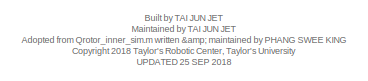
[diagram: root canvas - part 1/4, top center region]
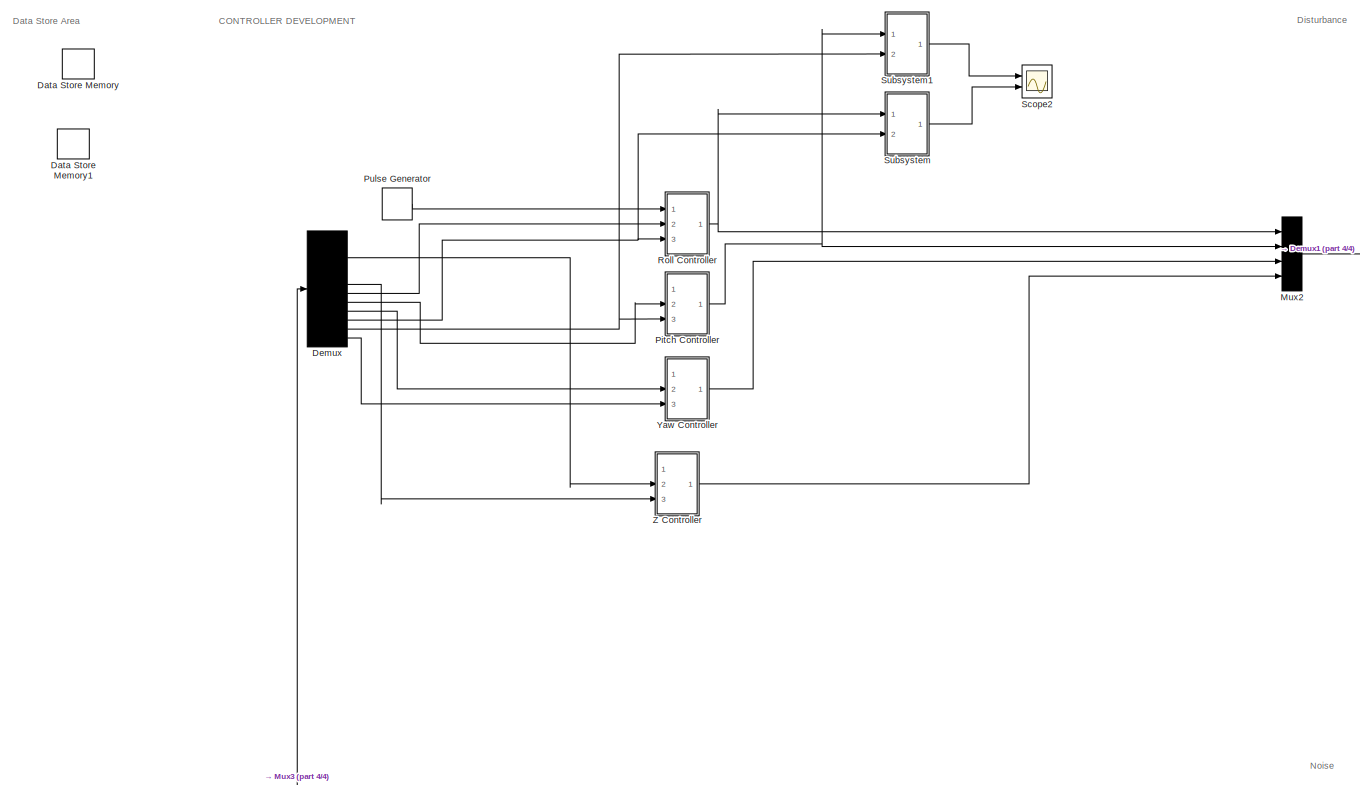
[diagram: root canvas - part 2/4, middle left region]
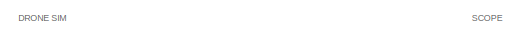
[diagram: root canvas - part 3/4, top right region]
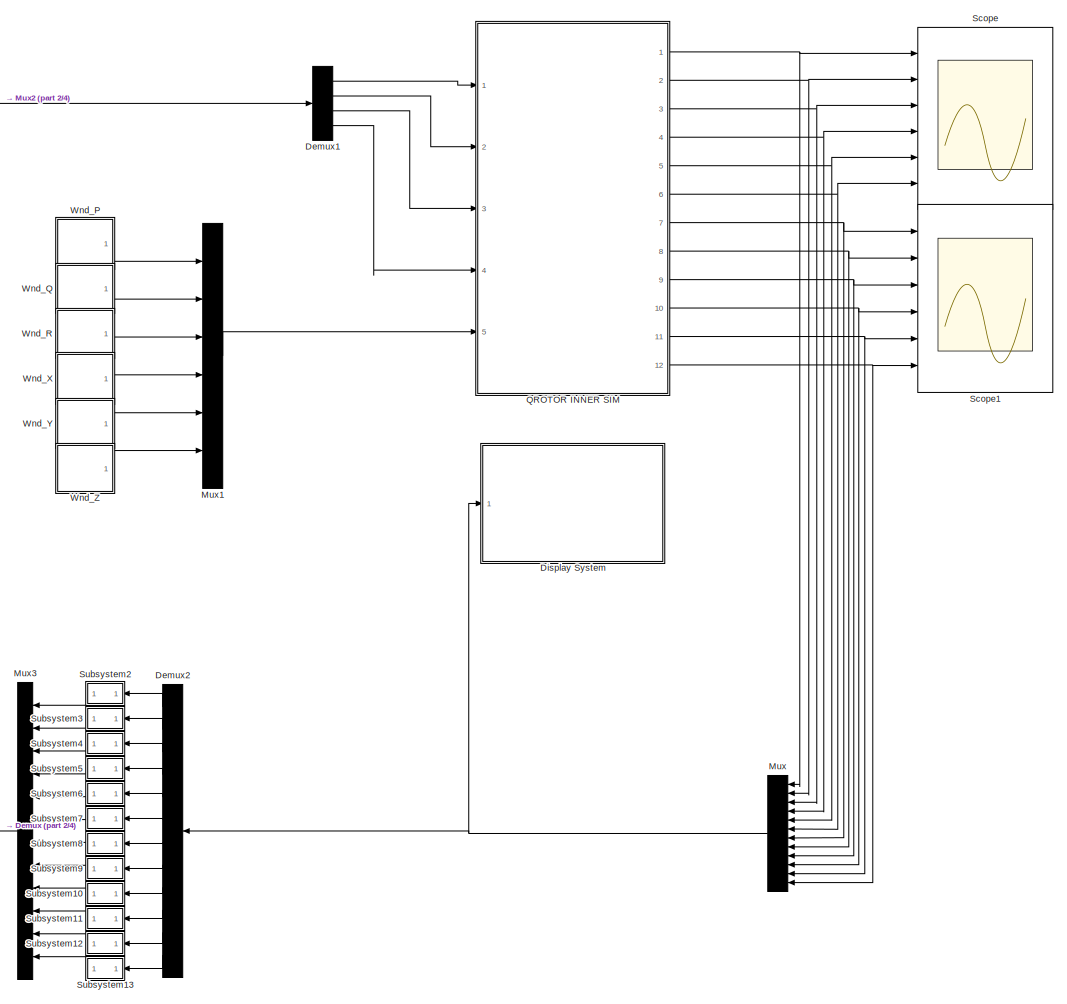
[diagram: root canvas - part 4/4, right side, full height]
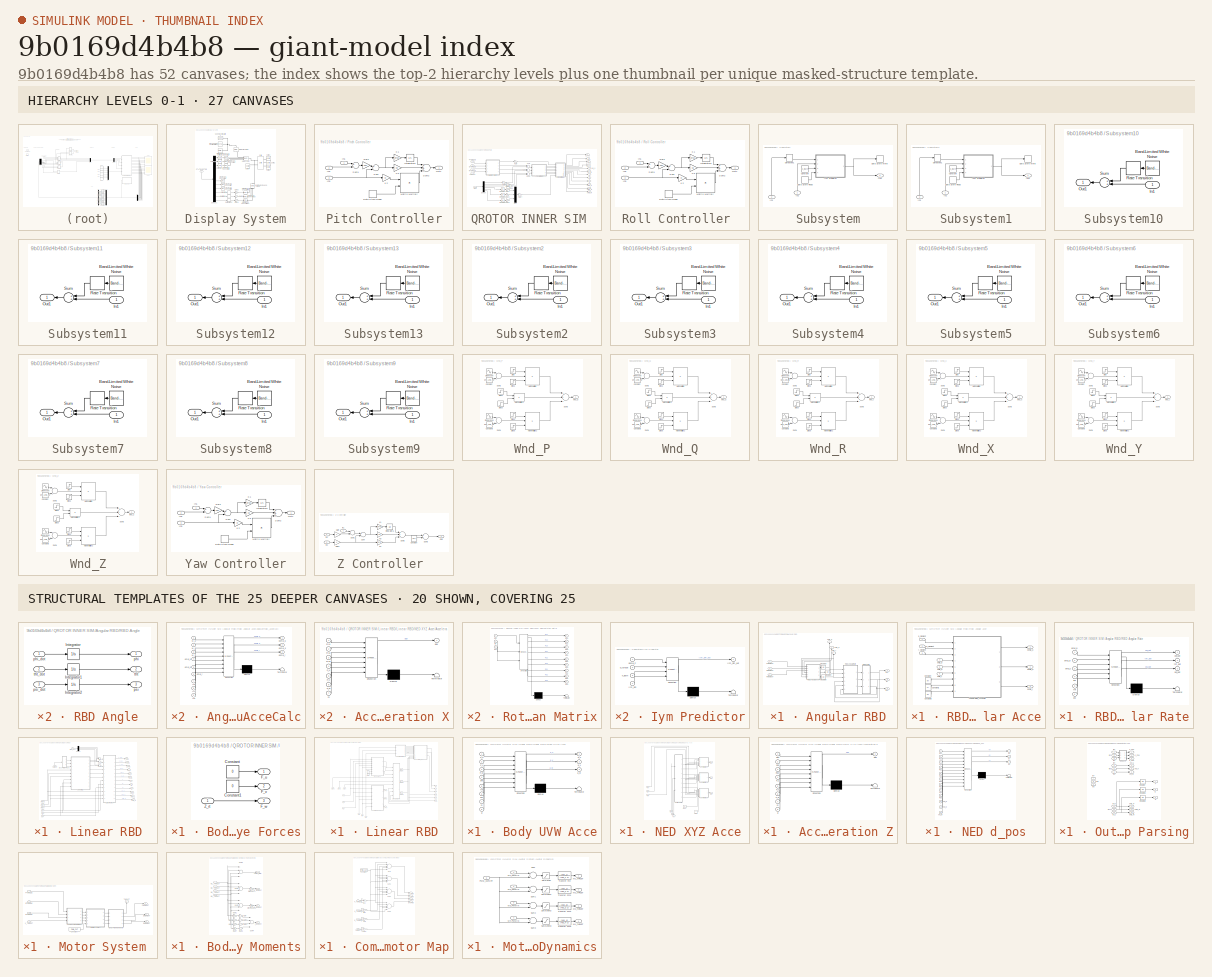
[diagram: thumbnail index - top-2 hierarchy levels (27 canvases) + 20 structural-template representatives of the remaining 25 canvases]
MODEL slx_9b0169d4b4b8
KIND model
CONFIG AbsTol = auto
CONFIG FixedStep = 0.001
CONFIG MaxStep = auto
CONFIG MinStep = auto
CONFIG RelTol = 1e-3
CONFIG SampleTimeConstraint = Unconstrained
CONFIG Solver = ode4
CONFIG SolverMode = Auto
CONFIG SolverName = ode4
CONFIG StartTime = 0.0
CONFIG StopTime = T
BLOCK [DataStoreMemory] Data Store Memory
  DataStoreName = Ixm
  InitialValue = Ixm
  OutDataTypeStr = double
  ReadBeforeWriteMsg = warning
  ShowAdditionalParam = off
  SignalType = real
  WriteAfterReadMsg = warning
  WriteAfterWriteMsg = warning
BLOCK [DataStoreMemory] Data Store Memory1
  DataStoreName = Iym
  InitialValue = Iym
  OutDataTypeStr = double
  ReadBeforeWriteMsg = warning
  ShowAdditionalParam = off
  SignalType = real
  WriteAfterReadMsg = warning
  WriteAfterWriteMsg = warning
BLOCK [Demux] Demux
  Outputs = 12
  Ports = [1, 12]
BLOCK [Demux] Demux1
  DisplayOption = bar
  Ports = [1, 4]
BLOCK [Demux] Demux2
  DisplayOption = bar
  Outputs = 12
  Ports = [1, 12]
BLOCK [SubSystem] Display System
  Ports = [1]
  RequestExecContextInheritance = off
  Variant = off
BLOCK [Reference] Display System/6-DOF Joint  REF=sm_lib/Joints/6-DOF Joint
  Ports = [0, 0, 0, 0, 0, 4, 1]
  SourceBlock = sm_lib/Joints/6-DOF Joint
  SourceType = 6-DOF Joint
BLOCK [Demux] Display System/Demux1
  Outputs = 12
  Ports = [1, 12]
BLOCK [Derivative] Display System/Derivative
BLOCK [Derivative] Display System/Derivative1
BLOCK [Derivative] Display System/Derivative2
BLOCK [Reference] Display System/External Force and Torque  REF=sm_lib/Forces and
Torques/External Force
and Torque
  Ports = [0, 0, 0, 0, 0, 3, 1]
  SourceBlock = sm_lib/Forces and\nTorques/External Force\nand Torque
  SourceType = External Force\nand Torque
BLOCK [Gain] Display System/Gain2
  Gain = Ixx
  OutDataTypeStr = Inherit: Inherit via internal rule
  ParamDataTypeStr = Inherit: Inherit via internal rule
  SaturateOnIntegerOverflow = off
BLOCK [Gain] Display System/Gain3
  Gain = Iyy
  OutDataTypeStr = Inherit: Inherit via internal rule
  ParamDataTypeStr = Inherit: Inherit via internal rule
  SaturateOnIntegerOverflow = off
BLOCK [Gain] Display System/Gain4
  Gain = Izz
  OutDataTypeStr = Inherit: Inherit via internal rule
  ParamDataTypeStr = Inherit: Inherit via internal rule
  SaturateOnIntegerOverflow = off
BLOCK [Reference] Display System/Mechanism Configuration  REF=sm_lib/Utilities/Mechanism
Configuration
  Ports = [0, 0, 0, 0, 0, 0, 1]
  SourceBlock = sm_lib/Utilities/Mechanism\nConfiguration
  SourceType = Mechanism\nConfiguration
BLOCK [Reference] Display System/Rigid Transform1  REF=sm_lib/Frames and
Transforms/Rigid
Transform
  Ports = [0, 0, 0, 0, 0, 1, 1]
  SourceBlock = sm_lib/Frames and\nTransforms/Rigid\nTransform
  SourceType = Rigid\nTransform
BLOCK [Inport] Display System/STATE VECTOR
  IconDisplay = Port number
BLOCK [Reference] Display System/Simulink-PS Converter  REF=nesl_utility/Simulink-PS
Converter
  Commented = on
  Ports = [1, 0, 0, 0, 0, 0, 1]
  SourceBlock = nesl_utility/Simulink-PS\nConverter
  SourceType = Simulink-PS\nConverter
BLOCK [Reference] Display System/Simulink-PS Converter1  REF=nesl_utility/Simulink-PS
Converter
  Commented = on
  Ports = [1, 0, 0, 0, 0, 0, 1]
  SourceBlock = nesl_utility/Simulink-PS\nConverter
  SourceType = Simulink-PS\nConverter
BLOCK [Reference] Display System/Simulink-PS Converter10  REF=nesl_utility/Simulink-PS
Converter
  Ports = [1, 0, 0, 0, 0, 0, 1]
  SourceBlock = nesl_utility/Simulink-PS\nConverter
  SourceType = Simulink-PS\nConverter
BLOCK [Reference] Display System/Simulink-PS Converter11  REF=nesl_utility/Simulink-PS
Converter
  Ports = [1, 0, 0, 0, 0, 0, 1]
  SourceBlock = nesl_utility/Simulink-PS\nConverter
  SourceType = Simulink-PS\nConverter
BLOCK [Reference] Display System/Simulink-PS Converter2  REF=nesl_utility/Simulink-PS
Converter
  Commented = on
  Ports = [1, 0, 0, 0, 0, 0, 1]
  SourceBlock = nesl_utility/Simulink-PS\nConverter
  SourceType = Simulink-PS\nConverter
BLOCK [Reference] Display System/Simulink-PS Converter6  REF=nesl_utility/Simulink-PS
Converter
  Ports = [1, 0, 0, 0, 0, 0, 1]
  SourceBlock = nesl_utility/Simulink-PS\nConverter
  SourceType = Simulink-PS\nConverter
BLOCK [Reference] Display System/Simulink-PS Converter7  REF=nesl_utility/Simulink-PS
Converter
  Ports = [1, 0, 0, 0, 0, 0, 1]
  SourceBlock = nesl_utility/Simulink-PS\nConverter
  SourceType = Simulink-PS\nConverter
BLOCK [Reference] Display System/Simulink-PS Converter8  REF=nesl_utility/Simulink-PS
Converter
  Ports = [1, 0, 0, 0, 0, 0, 1]
  SourceBlock = nesl_utility/Simulink-PS\nConverter
  SourceType = Simulink-PS\nConverter
BLOCK [Reference] Display System/Simulink-PS Converter9  REF=nesl_utility/Simulink-PS
Converter
  Ports = [1, 0, 0, 0, 0, 0, 1]
  SourceBlock = nesl_utility/Simulink-PS\nConverter
  SourceType = Simulink-PS\nConverter
BLOCK [Reference] Display System/Solid  REF=sm_lib/Body Elements/Solid
  Ports = [0, 0, 0, 0, 0, 3, 2]
  SourceBlock = sm_lib/Body Elements/Solid
  SourceType = Solid
BLOCK [Reference] Display System/Solid1  REF=sm_lib/Body Elements/Solid
  Ports = [0, 0, 0, 0, 0, 0, 1]
  SourceBlock = sm_lib/Body Elements/Solid
  SourceType = Solid
BLOCK [Reference] Display System/Solid2  REF=sm_lib/Body Elements/Solid
  Ports = [0, 0, 0, 0, 0, 0, 1]
  SourceBlock = sm_lib/Body Elements/Solid
  SourceType = Solid
BLOCK [Reference] Display System/Solid3  REF=sm_lib/Body Elements/Solid
  Ports = [0, 0, 0, 0, 0, 0, 1]
  SourceBlock = sm_lib/Body Elements/Solid
  SourceType = Solid
BLOCK [Reference] Display System/Solid4  REF=sm_lib/Body Elements/Solid
  Ports = [0, 0, 0, 0, 0, 0, 1]
  SourceBlock = sm_lib/Body Elements/Solid
  SourceType = Solid
BLOCK [Reference] Display System/Solver Configuration  REF=nesl_utility/Solver
Configuration
  Ports = [0, 0, 0, 0, 0, 0, 1]
  SourceBlock = nesl_utility/Solver\nConfiguration
  SourceType = Solver\nConfiguration
BLOCK [UnitDelay] Display System/Unit Delay
  InputProcessing = Elements as channels (sample based)
  SampleTime = -1
BLOCK [UnitDelay] Display System/Unit Delay1
  InputProcessing = Elements as channels (sample based)
  SampleTime = -1
BLOCK [UnitDelay] Display System/Unit Delay2
  InputProcessing = Elements as channels (sample based)
  SampleTime = -1
BLOCK [Reference] Display System/World Frame  REF=sm_lib/Frames and
Transforms/World Frame
  Ports = [0, 0, 0, 0, 0, 0, 1]
  SourceBlock = sm_lib/Frames and\nTransforms/World Frame
  SourceType = World Frame
BLOCK [Mux] Mux
  Inputs = 12
  Ports = [12, 1]
BLOCK [Mux] Mux1
  DisplayOption = bar
  Inputs = 6
  Ports = [6, 1]
BLOCK [Mux] Mux2
  DisplayOption = bar
  Ports = [4, 1]
BLOCK [Mux] Mux3
  DisplayOption = bar
  Inputs = 12
  Ports = [12, 1]
BLOCK [SubSystem] Pitch Controller
  Ports = [3, 1]
  RequestExecContextInheritance = off
  Variant = off
BLOCK [DataStoreRead] Pitch Controller/Data Store Read
  DataStoreName = Ixm
  Ports = [0, 1]
BLOCK [Gain] Pitch Controller/Gain
  Gain = KpP
  OutDataTypeStr = Inherit: Inherit via internal rule
  ParamDataTypeStr = Inherit: Inherit via internal rule
  SaturateOnIntegerOverflow = off
BLOCK [Inport] Pitch Controller/In1
  IconDisplay = Port number
BLOCK [Inport] Pitch Controller/In2
  IconDisplay = Port number
  Port = 2
BLOCK [Inport] Pitch Controller/In3
  IconDisplay = Port number
  Port = 3
BLOCK [Integrator] Pitch Controller/Integrator6
  Ports = [1, 1]
BLOCK [Gain] Pitch Controller/K1
  Gain = Ki*Kp
  OutDataTypeStr = Inherit: Inherit via internal rule
  ParamDataTypeStr = Inherit: Inherit via internal rule
  SaturateOnIntegerOverflow = off
BLOCK [Gain] Pitch Controller/K2
  Gain = Ki
  OutDataTypeStr = Inherit: Inherit via internal rule
  ParamDataTypeStr = Inherit: Inherit via internal rule
  SaturateOnIntegerOverflow = off
BLOCK [Gain] Pitch Controller/Kp
  Gain = Kp
  OutDataTypeStr = Inherit: Inherit via internal rule
  ParamDataTypeStr = Inherit: Inherit via internal rule
  SaturateOnIntegerOverflow = off
BLOCK [Product] Pitch Controller/Matrix Multiply
  InputSameDT = off
  Multiplication = Matrix(*)
  OutDataTypeStr = Inherit: Inherit via internal rule
  Ports = [2, 1]
  RndMeth = Floor
  SaturateOnIntegerOverflow = off
BLOCK [Outport] Pitch Controller/Out1
  IconDisplay = Port number
BLOCK [Sum] Pitch Controller/Sum
  InputSameDT = off
  Inputs = +-
  OutDataTypeStr = Inherit: Inherit via internal rule
  Ports = [2, 1]
  SaturateOnIntegerOverflow = off
BLOCK [Sum] Pitch Controller/Sum1
  InputSameDT = off
  Inputs = +-
  OutDataTypeStr = Inherit: Inherit via internal rule
  Ports = [2, 1]
  SaturateOnIntegerOverflow = off
BLOCK [Sum] Pitch Controller/Sum2
  InputSameDT = off
  Inputs = ++-
  OutDataTypeStr = Inherit: Inherit via internal rule
  Ports = [3, 1]
  SaturateOnIntegerOverflow = off
BLOCK [DiscretePulseGenerator] Pulse Generator
  Period = 11
  Ports = [0, 1]
  PulseType = Time based
  PulseWidth = 50
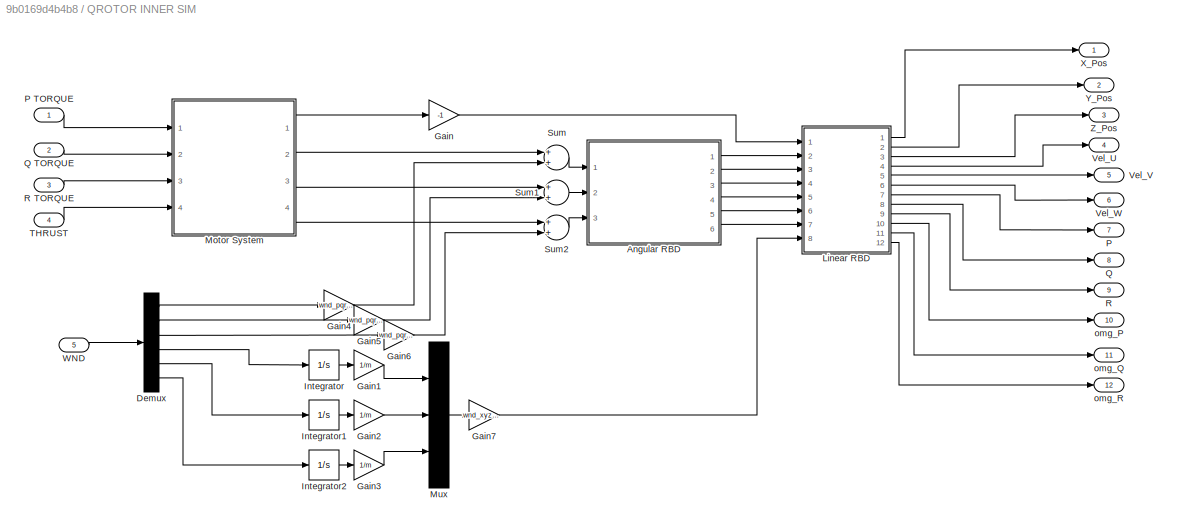
BLOCK [SubSystem] QROTOR INNER SIM 
  Ports = [5, 12]
  RequestExecContextInheritance = off
  Variant = off
BLOCK [SubSystem] QROTOR INNER SIM /Angular RBD
  Ports = [3, 6]
  RequestExecContextInheritance = off
  Variant = off
BLOCK [Integrator] QROTOR INNER SIM /Angular RBD/Integrator3
  Ports = [1, 1]
BLOCK [Integrator] QROTOR INNER SIM /Angular RBD/Integrator4
  Ports = [1, 1]
BLOCK [Integrator] QROTOR INNER SIM /Angular RBD/Integrator5
  Ports = [1, 1]
BLOCK [Inport] QROTOR INNER SIM /Angular RBD/P MOMENT
  IconDisplay = Port number
BLOCK [Inport] QROTOR INNER SIM /Angular RBD/Q MOMENT
  IconDisplay = Port number
  Port = 2
BLOCK [Inport] QROTOR INNER SIM /Angular RBD/R MOMENT
  IconDisplay = Port number
  Port = 3
BLOCK [SubSystem] QROTOR INNER SIM /Angular RBD/RBD Angle
  Ports = [3, 3]
  RequestExecContextInheritance = off
  Variant = off
BLOCK [Integrator] QROTOR INNER SIM /Angular RBD/RBD Angle/Integrator
  Ports = [1, 1]
BLOCK [Integrator] QROTOR INNER SIM /Angular RBD/RBD Angle/Integrator1
  Ports = [1, 1]
BLOCK [Integrator] QROTOR INNER SIM /Angular RBD/RBD Angle/Integrator2
  Ports = [1, 1]
BLOCK [Outport] QROTOR INNER SIM /Angular RBD/RBD Angle/phi
  IconDisplay = Port number
BLOCK [Inport] QROTOR INNER SIM /Angular RBD/RBD Angle/phi_dot
  IconDisplay = Port number
BLOCK [Outport] QROTOR INNER SIM /Angular RBD/RBD Angle/psi
  IconDisplay = Port number
  Port = 3
BLOCK [Inport] QROTOR INNER SIM /Angular RBD/RBD Angle/psi_dot
  IconDisplay = Port number
  Port = 3
BLOCK [Outport] QROTOR INNER SIM /Angular RBD/RBD Angle/tht
  IconDisplay = Port number
  Port = 2
BLOCK [Inport] QROTOR INNER SIM /Angular RBD/RBD Angle/tht_dot
  IconDisplay = Port number
  Port = 2
BLOCK [SubSystem] QROTOR INNER SIM /Angular RBD/RBD Angular Acce
  Ports = [6, 3]
  RequestExecContextInheritance = off
  Variant = off
BLOCK [SubSystem] QROTOR INNER SIM /Angular RBD/RBD Angular Acce/AngularRBD_AcceCalc
  ErrorFcn = Stateflow.Translate.translate
  PermitHierarchicalResolution = ExplicitOnly
  Ports = [9, 3]
  RequestExecContextInheritance = off
  SFBlockType = MATLAB Function
  TreatAsAtomicUnit = on
  Variant = off
BLOCK [Demux] QROTOR INNER SIM /Angular RBD/RBD Angular Acce/AngularRBD_AcceCalc/ Demux 
  Outputs = 1
  Ports = [1, 1]
BLOCK [S-Function] QROTOR INNER SIM /Angular RBD/RBD Angular Acce/AngularRBD_AcceCalc/ SFunction 
  EnableBusSupport = on
  FunctionName = sf_sfun
  PortCounts = [9 4]
  Ports = [9, 4]
  SFunctionDeploymentMode = off
  Tag = Stateflow S-Function Copy_of_Qrotor_sim2 10
BLOCK [Terminator] QROTOR INNER SIM /Angular RBD/RBD Angular Acce/AngularRBD_AcceCalc/ Terminator 
BLOCK [Inport] QROTOR INNER SIM /Angular RBD/RBD Angular Acce/AngularRBD_AcceCalc/Ixx
  IconDisplay = Port number
  Port = 7
BLOCK [Inport] QROTOR INNER SIM /Angular RBD/RBD Angular Acce/AngularRBD_AcceCalc/Iyy
  IconDisplay = Port number
  Port = 8
BLOCK [Inport] QROTOR INNER SIM /Angular RBD/RBD Angular Acce/AngularRBD_AcceCalc/Izz
  IconDisplay = Port number
  Port = 9
BLOCK [Inport] QROTOR INNER SIM /Angular RBD/RBD Angular Acce/AngularRBD_AcceCalc/M_p
  IconDisplay = Port number
BLOCK [Inport] QROTOR INNER SIM /Angular RBD/RBD Angular Acce/AngularRBD_AcceCalc/M_q
  IconDisplay = Port number
  Port = 2
BLOCK [Inport] QROTOR INNER SIM /Angular RBD/RBD Angular Acce/AngularRBD_AcceCalc/M_r
  IconDisplay = Port number
  Port = 3
BLOCK [Outport] QROTOR INNER SIM /Angular RBD/RBD Angular Acce/AngularRBD_AcceCalc/domg_p
  IconDisplay = Port number
BLOCK [Outport] QROTOR INNER SIM /Angular RBD/RBD Angular Acce/AngularRBD_AcceCalc/domg_q
  IconDisplay = Port number
  Port = 2
BLOCK [Outport] QROTOR INNER SIM /Angular RBD/RBD Angular Acce/AngularRBD_AcceCalc/domg_r
  IconDisplay = Port number
  Port = 3
BLOCK [Inport] QROTOR INNER SIM /Angular RBD/RBD Angular Acce/AngularRBD_AcceCalc/omg_p
  IconDisplay = Port number
  Port = 4
BLOCK [Inport] QROTOR INNER SIM /Angular RBD/RBD Angular Acce/AngularRBD_AcceCalc/omg_q
  IconDisplay = Port number
  Port = 5
BLOCK [Inport] QROTOR INNER SIM /Angular RBD/RBD Angular Acce/AngularRBD_AcceCalc/omg_r
  IconDisplay = Port number
  Port = 6
BLOCK [Constant] QROTOR INNER SIM /Angular RBD/RBD Angular Acce/Constant
  Value = Ixx
BLOCK [Constant] QROTOR INNER SIM /Angular RBD/RBD Angular Acce/Constant1
  Value = Iyy
BLOCK [Constant] QROTOR INNER SIM /Angular RBD/RBD Angular Acce/Constant2
  Value = Izz
BLOCK [Outport] QROTOR INNER SIM /Angular RBD/RBD Angular Acce/domg_p
  IconDisplay = Port number
BLOCK [Outport] QROTOR INNER SIM /Angular RBD/RBD Angular Acce/domg_q
  IconDisplay = Port number
  Port = 2
BLOCK [Outport] QROTOR INNER SIM /Angular RBD/RBD Angular Acce/domg_r
  IconDisplay = Port number
  Port = 3
BLOCK [Inport] QROTOR INNER SIM /Angular RBD/RBD Angular Acce/omg_p
  IconDisplay = Port number
  Port = 4
BLOCK [Inport] QROTOR INNER SIM /Angular RBD/RBD Angular Acce/omg_q
  IconDisplay = Port number
  Port = 5
BLOCK [Inport] QROTOR INNER SIM /Angular RBD/RBD Angular Acce/omg_r
  IconDisplay = Port number
  Port = 6
BLOCK [Inport] QROTOR INNER SIM /Angular RBD/RBD Angular Acce/p_moment
  IconDisplay = Port number
BLOCK [Inport] QROTOR INNER SIM /Angular RBD/RBD Angular Acce/q_moment
  IconDisplay = Port number
  Port = 2
BLOCK [Inport] QROTOR INNER SIM /Angular RBD/RBD Angular Acce/r_moment
  IconDisplay = Port number
  Port = 3
BLOCK [SubSystem] QROTOR INNER SIM /Angular RBD/RBD Angular Rate
  ErrorFcn = Stateflow.Translate.translate
  PermitHierarchicalResolution = ExplicitOnly
  Ports = [6, 3]
  RequestExecContextInheritance = off
  SFBlockType = MATLAB Function
  TreatAsAtomicUnit = on
  Variant = off
BLOCK [Demux] QROTOR INNER SIM /Angular RBD/RBD Angular Rate/ Demux 
  Outputs = 1
  Ports = [1, 1]
BLOCK [S-Function] QROTOR INNER SIM /Angular RBD/RBD Angular Rate/ SFunction 
  EnableBusSupport = on
  FunctionName = sf_sfun
  PortCounts = [6 4]
  Ports = [6, 4]
  SFunctionDeploymentMode = off
  Tag = Stateflow S-Function Copy_of_Qrotor_sim2 2
BLOCK [Terminator] QROTOR INNER SIM /Angular RBD/RBD Angular Rate/ Terminator 
BLOCK [Inport] QROTOR INNER SIM /Angular RBD/RBD Angular Rate/omg_p
  IconDisplay = Port number
BLOCK [Inport] QROTOR INNER SIM /Angular RBD/RBD Angular Rate/omg_q
  IconDisplay = Port number
  Port = 2
BLOCK [Inport] QROTOR INNER SIM /Angular RBD/RBD Angular Rate/omg_r
  IconDisplay = Port number
  Port = 3
BLOCK [Inport] QROTOR INNER SIM /Angular RBD/RBD Angular Rate/phi
  IconDisplay = Port number
  Port = 4
BLOCK [Outport] QROTOR INNER SIM /Angular RBD/RBD Angular Rate/phi_dot
  IconDisplay = Port number
BLOCK [Inport] QROTOR INNER SIM /Angular RBD/RBD Angular Rate/psi
  IconDisplay = Port number
  Port = 6
BLOCK [Outport] QROTOR INNER SIM /Angular RBD/RBD Angular Rate/psi_dot
  IconDisplay = Port number
  Port = 3
BLOCK [Inport] QROTOR INNER SIM /Angular RBD/RBD Angular Rate/tht
  IconDisplay = Port number
  Port = 5
BLOCK [Outport] QROTOR INNER SIM /Angular RBD/RBD Angular Rate/tht_dot
  IconDisplay = Port number
  Port = 2
BLOCK [Outport] QROTOR INNER SIM /Angular RBD/omg_p
  IconDisplay = Port number
BLOCK [Outport] QROTOR INNER SIM /Angular RBD/omg_q
  IconDisplay = Port number
  Port = 2
BLOCK [Outport] QROTOR INNER SIM /Angular RBD/omg_r
  IconDisplay = Port number
  Port = 3
BLOCK [Outport] QROTOR INNER SIM /Angular RBD/phi
  IconDisplay = Port number
  Port = 4
BLOCK [Outport] QROTOR INNER SIM /Angular RBD/psi
  IconDisplay = Port number
  Port = 6
BLOCK [Outport] QROTOR INNER SIM /Angular RBD/tht
  IconDisplay = Port number
  Port = 5
BLOCK [Demux] QROTOR INNER SIM /Demux
  DisplayOption = bar
  Outputs = 6
  Ports = [1, 6]
BLOCK [Gain] QROTOR INNER SIM /Gain
  Gain = -1
  OutDataTypeStr = Inherit: Inherit via internal rule
  ParamDataTypeStr = Inherit: Inherit via internal rule
  SaturateOnIntegerOverflow = off
BLOCK [Gain] QROTOR INNER SIM /Gain1
  Gain = 1/m
  OutDataTypeStr = Inherit: Inherit via internal rule
  ParamDataTypeStr = Inherit: Inherit via internal rule
  SaturateOnIntegerOverflow = off
BLOCK [Gain] QROTOR INNER SIM /Gain2
  Gain = 1/m
  OutDataTypeStr = Inherit: Inherit via internal rule
  ParamDataTypeStr = Inherit: Inherit via internal rule
  SaturateOnIntegerOverflow = off
BLOCK [Gain] QROTOR INNER SIM /Gain3
  Gain = 1/m
  OutDataTypeStr = Inherit: Inherit via internal rule
  ParamDataTypeStr = Inherit: Inherit via internal rule
  SaturateOnIntegerOverflow = off
BLOCK [Gain] QROTOR INNER SIM /Gain4
  Gain = wnd_pqr_enable
  OutDataTypeStr = Inherit: Inherit via internal rule
  ParamDataTypeStr = Inherit: Inherit via internal rule
  SaturateOnIntegerOverflow = off
BLOCK [Gain] QROTOR INNER SIM /Gain5
  Gain = wnd_pqr_enable
  OutDataTypeStr = Inherit: Inherit via internal rule
  ParamDataTypeStr = Inherit: Inherit via internal rule
  SaturateOnIntegerOverflow = off
BLOCK [Gain] QROTOR INNER SIM /Gain6
  Gain = wnd_pqr_enable
  OutDataTypeStr = Inherit: Inherit via internal rule
  ParamDataTypeStr = Inherit: Inherit via internal rule
  SaturateOnIntegerOverflow = off
BLOCK [Gain] QROTOR INNER SIM /Gain7
  Gain = wnd_xyz_enable
  OutDataTypeStr = Inherit: Inherit via internal rule
  ParamDataTypeStr = Inherit: Inherit via internal rule
  SaturateOnIntegerOverflow = off
BLOCK [Integrator] QROTOR INNER SIM /Integrator
  Ports = [1, 1]
BLOCK [Integrator] QROTOR INNER SIM /Integrator1
  Ports = [1, 1]
BLOCK [Integrator] QROTOR INNER SIM /Integrator2
  Ports = [1, 1]
BLOCK [SubSystem] QROTOR INNER SIM /Linear RBD
  Ports = [8, 12]
  RequestExecContextInheritance = off
  Variant = off
BLOCK [SubSystem] QROTOR INNER SIM /Linear RBD/Body Frame Forces
  Ports = [1, 3]
  RequestExecContextInheritance = off
  Variant = off
BLOCK [Constant] QROTOR INNER SIM /Linear RBD/Body Frame Forces/Constant
  Value = 0
BLOCK [Constant] QROTOR INNER SIM /Linear RBD/Body Frame Forces/Constant1
  Value = 0
BLOCK [Outport] QROTOR INNER SIM /Linear RBD/Body Frame Forces/F_u
  IconDisplay = Port number
BLOCK [Outport] QROTOR INNER SIM /Linear RBD/Body Frame Forces/F_v
  IconDisplay = Port number
  Port = 2
BLOCK [Outport] QROTOR INNER SIM /Linear RBD/Body Frame Forces/F_w
  IconDisplay = Port number
  Port = 3
BLOCK [Inport] QROTOR INNER SIM /Linear RBD/Body Frame Forces/Z_rt 
  IconDisplay = Port number
BLOCK [Demux] QROTOR INNER SIM /Linear RBD/Demux
  DisplayOption = bar
  Outputs = 3
  Ports = [1, 3]
BLOCK [SubSystem] QROTOR INNER SIM /Linear RBD/Linear RBD
  Ports = [9, 9]
  RequestExecContextInheritance = off
  Variant = off
BLOCK [SubSystem] QROTOR INNER SIM /Linear RBD/Linear RBD/Body UVW Acce
  ErrorFcn = Stateflow.Translate.translate
  PermitHierarchicalResolution = ExplicitOnly
  Ports = [8, 3]
  RequestExecContextInheritance = off
  SFBlockType = MATLAB Function
  TreatAsAtomicUnit = on
  Variant = off
BLOCK [Demux] QROTOR INNER SIM /Linear RBD/Linear RBD/Body UVW Acce/ Demux 
  Outputs = 1
  Ports = [1, 1]
BLOCK [S-Function] QROTOR INNER SIM /Linear RBD/Linear RBD/Body UVW Acce/ SFunction 
  EnableBusSupport = on
  FunctionName = sf_sfun
  PortCounts = [8 4]
  Ports = [8, 4]
  SFunctionDeploymentMode = off
  Tag = Stateflow S-Function Copy_of_Qrotor_sim2 6
BLOCK [Terminator] QROTOR INNER SIM /Linear RBD/Linear RBD/Body UVW Acce/ Terminator 
BLOCK [Inport] QROTOR INNER SIM /Linear RBD/Linear RBD/Body UVW Acce/F_u
  IconDisplay = Port number
BLOCK [Inport] QROTOR INNER SIM /Linear RBD/Linear RBD/Body UVW Acce/F_v
  IconDisplay = Port number
  Port = 2
BLOCK [Inport] QROTOR INNER SIM /Linear RBD/Linear RBD/Body UVW Acce/F_w
  IconDisplay = Port number
  Port = 3
BLOCK [Outport] QROTOR INNER SIM /Linear RBD/Linear RBD/Body UVW Acce/a_u
  IconDisplay = Port number
BLOCK [Outport] QROTOR INNER SIM /Linear RBD/Linear RBD/Body UVW Acce/a_v
  IconDisplay = Port number
  Port = 2
BLOCK [Outport] QROTOR INNER SIM /Linear RBD/Linear RBD/Body UVW Acce/a_w
  IconDisplay = Port number
  Port = 3
BLOCK [Inport] QROTOR INNER SIM /Linear RBD/Linear RBD/Body UVW Acce/g
  IconDisplay = Port number
  Port = 8
BLOCK [Inport] QROTOR INNER SIM /Linear RBD/Linear RBD/Body UVW Acce/m
  IconDisplay = Port number
  Port = 7
BLOCK [Inport] QROTOR INNER SIM /Linear RBD/Linear RBD/Body UVW Acce/phi
  IconDisplay = Port number
  Port = 4
BLOCK [Inport] QROTOR INNER SIM /Linear RBD/Linear RBD/Body UVW Acce/psi
  IconDisplay = Port number
  Port = 6
BLOCK [Inport] QROTOR INNER SIM /Linear RBD/Linear RBD/Body UVW Acce/tht
  IconDisplay = Port number
  Port = 5
BLOCK [SubSystem] QROTOR INNER SIM /Linear RBD/Linear RBD/Body UVW d_vel
  ErrorFcn = Stateflow.Translate.translate
  PermitHierarchicalResolution = ExplicitOnly
  Ports = [9, 3]
  RequestExecContextInheritance = off
  SFBlockType = MATLAB Function
  TreatAsAtomicUnit = on
  Variant = off
BLOCK [Demux] QROTOR INNER SIM /Linear RBD/Linear RBD/Body UVW d_vel/ Demux 
  Outputs = 1
  Ports = [1, 1]
BLOCK [S-Function] QROTOR INNER SIM /Linear RBD/Linear RBD/Body UVW d_vel/ SFunction 
  EnableBusSupport = on
  FunctionName = sf_sfun
  PortCounts = [9 4]
  Ports = [9, 4]
  SFunctionDeploymentMode = off
  Tag = Stateflow S-Function Copy_of_Qrotor_sim2 7
BLOCK [Terminator] QROTOR INNER SIM /Linear RBD/Linear RBD/Body UVW d_vel/ Terminator 
BLOCK [Inport] QROTOR INNER SIM /Linear RBD/Linear RBD/Body UVW d_vel/a_u
  IconDisplay = Port number
BLOCK [Inport] QROTOR INNER SIM /Linear RBD/Linear RBD/Body UVW d_vel/a_v
  IconDisplay = Port number
  Port = 2
BLOCK [Inport] QROTOR INNER SIM /Linear RBD/Linear RBD/Body UVW d_vel/a_w
  IconDisplay = Port number
  Port = 3
BLOCK [Outport] QROTOR INNER SIM /Linear RBD/Linear RBD/Body UVW d_vel/dvel_u
  IconDisplay = Port number
BLOCK [Outport] QROTOR INNER SIM /Linear RBD/Linear RBD/Body UVW d_vel/dvel_v
  IconDisplay = Port number
  Port = 2
BLOCK [Outport] QROTOR INNER SIM /Linear RBD/Linear RBD/Body UVW d_vel/dvel_w
  IconDisplay = Port number
  Port = 3
BLOCK [Inport] QROTOR INNER SIM /Linear RBD/Linear RBD/Body UVW d_vel/omg_p
  IconDisplay = Port number
  Port = 4
BLOCK [Inport] QROTOR INNER SIM /Linear RBD/Linear RBD/Body UVW d_vel/omg_q
  IconDisplay = Port number
  Port = 5
BLOCK [Inport] QROTOR INNER SIM /Linear RBD/Linear RBD/Body UVW d_vel/omg_r
  IconDisplay = Port number
  Port = 6
BLOCK [Inport] QROTOR INNER SIM /Linear RBD/Linear RBD/Body UVW d_vel/vel_u
  IconDisplay = Port number
  Port = 7
BLOCK [Inport] QROTOR INNER SIM /Linear RBD/Linear RBD/Body UVW d_vel/vel_v
  IconDisplay = Port number
  Port = 8
BLOCK [Inport] QROTOR INNER SIM /Linear RBD/Linear RBD/Body UVW d_vel/vel_w
  IconDisplay = Port number
  Port = 9
BLOCK [Inport] QROTOR INNER SIM /Linear RBD/Linear RBD/F_u
  IconDisplay = Port number
BLOCK [Inport] QROTOR INNER SIM /Linear RBD/Linear RBD/F_v
  IconDisplay = Port number
  Port = 2
BLOCK [Inport] QROTOR INNER SIM /Linear RBD/Linear RBD/F_w
  IconDisplay = Port number
  Port = 3
BLOCK [Constant] QROTOR INNER SIM /Linear RBD/Linear RBD/Gravity
  Value = g
BLOCK [Integrator] QROTOR INNER SIM /Linear RBD/Linear RBD/Integrator
  Ports = [1, 1]
BLOCK [Integrator] QROTOR INNER SIM /Linear RBD/Linear RBD/Integrator1
  Ports = [1, 1]
BLOCK [Integrator] QROTOR INNER SIM /Linear RBD/Linear RBD/Integrator2
  Ports = [1, 1]
BLOCK [Constant] QROTOR INNER SIM /Linear RBD/Linear RBD/Mass
  Value = m
BLOCK [SubSystem] QROTOR INNER SIM /Linear RBD/Linear RBD/NED XYZ Acce
  Commented = on
  Ports = [6, 3]
  RequestExecContextInheritance = off
  Variant = off
BLOCK [SubSystem] QROTOR INNER SIM /Linear RBD/Linear RBD/NED XYZ Acce/Acceleration X
  ErrorFcn = Stateflow.Translate.translate
  PermitHierarchicalResolution = ExplicitOnly
  Ports = [7, 1]
  RequestExecContextInheritance = off
  SFBlockType = MATLAB Function
  TreatAsAtomicUnit = on
  Variant = off
BLOCK [Demux] QROTOR INNER SIM /Linear RBD/Linear RBD/NED XYZ Acce/Acceleration X/ Demux 
  Outputs = 1
  Ports = [1, 1]
BLOCK [S-Function] QROTOR INNER SIM /Linear RBD/Linear RBD/NED XYZ Acce/Acceleration X/ SFunction 
  EnableBusSupport = on
  FunctionName = sf_sfun
  PortCounts = [7 2]
  Ports = [7, 2]
  SFunctionDeploymentMode = off
  Tag = Stateflow S-Function Copy_of_Qrotor_sim2 3
BLOCK [Terminator] QROTOR INNER SIM /Linear RBD/Linear RBD/NED XYZ Acce/Acceleration X/ Terminator 
BLOCK [Inport] QROTOR INNER SIM /Linear RBD/Linear RBD/NED XYZ Acce/Acceleration X/F_u
  IconDisplay = Port number
  Port = 4
BLOCK [Inport] QROTOR INNER SIM /Linear RBD/Linear RBD/NED XYZ Acce/Acceleration X/F_v
  IconDisplay = Port number
  Port = 5
BLOCK [Inport] QROTOR INNER SIM /Linear RBD/Linear RBD/NED XYZ Acce/Acceleration X/F_w
  IconDisplay = Port number
  Port = 6
BLOCK [Inport] QROTOR INNER SIM /Linear RBD/Linear RBD/NED XYZ Acce/Acceleration X/R11
  IconDisplay = Port number
BLOCK [Inport] QROTOR INNER SIM /Linear RBD/Linear RBD/NED XYZ Acce/Acceleration X/R12
  IconDisplay = Port number
  Port = 2
BLOCK [Inport] QROTOR INNER SIM /Linear RBD/Linear RBD/NED XYZ Acce/Acceleration X/R13
  IconDisplay = Port number
  Port = 3
BLOCK [Outport] QROTOR INNER SIM /Linear RBD/Linear RBD/NED XYZ Acce/Acceleration X/agx
  IconDisplay = Port number
BLOCK [Inport] QROTOR INNER SIM /Linear RBD/Linear RBD/NED XYZ Acce/Acceleration X/m
  IconDisplay = Port number
  Port = 7
BLOCK [SubSystem] QROTOR INNER SIM /Linear RBD/Linear RBD/NED XYZ Acce/Acceleration Y
  ErrorFcn = Stateflow.Translate.translate
  PermitHierarchicalResolution = ExplicitOnly
  Ports = [7, 1]
  RequestExecContextInheritance = off
  SFBlockType = MATLAB Function
  TreatAsAtomicUnit = on
  Variant = off
BLOCK [Demux] QROTOR INNER SIM /Linear RBD/Linear RBD/NED XYZ Acce/Acceleration Y/ Demux 
  Outputs = 1
  Ports = [1, 1]
BLOCK [S-Function] QROTOR INNER SIM /Linear RBD/Linear RBD/NED XYZ Acce/Acceleration Y/ SFunction 
  EnableBusSupport = on
  FunctionName = sf_sfun
  PortCounts = [7 2]
  Ports = [7, 2]
  SFunctionDeploymentMode = off
  Tag = Stateflow S-Function Copy_of_Qrotor_sim2 4
BLOCK [Terminator] QROTOR INNER SIM /Linear RBD/Linear RBD/NED XYZ Acce/Acceleration Y/ Terminator 
BLOCK [Inport] QROTOR INNER SIM /Linear RBD/Linear RBD/NED XYZ Acce/Acceleration Y/F_u
  IconDisplay = Port number
  Port = 4
BLOCK [Inport] QROTOR INNER SIM /Linear RBD/Linear RBD/NED XYZ Acce/Acceleration Y/F_v
  IconDisplay = Port number
  Port = 5
BLOCK [Inport] QROTOR INNER SIM /Linear RBD/Linear RBD/NED XYZ Acce/Acceleration Y/F_w
  IconDisplay = Port number
  Port = 6
BLOCK [Inport] QROTOR INNER SIM /Linear RBD/Linear RBD/NED XYZ Acce/Acceleration Y/R21
  IconDisplay = Port number
BLOCK [Inport] QROTOR INNER SIM /Linear RBD/Linear RBD/NED XYZ Acce/Acceleration Y/R22
  IconDisplay = Port number
  Port = 2
BLOCK [Inport] QROTOR INNER SIM /Linear RBD/Linear RBD/NED XYZ Acce/Acceleration Y/R23
  IconDisplay = Port number
  Port = 3
BLOCK [Outport] QROTOR INNER SIM /Linear RBD/Linear RBD/NED XYZ Acce/Acceleration Y/agy
  IconDisplay = Port number
BLOCK [Inport] QROTOR INNER SIM /Linear RBD/Linear RBD/NED XYZ Acce/Acceleration Y/m
  IconDisplay = Port number
  Port = 7
BLOCK [SubSystem] QROTOR INNER SIM /Linear RBD/Linear RBD/NED XYZ Acce/Acceleration Z
  ErrorFcn = Stateflow.Translate.translate
  PermitHierarchicalResolution = ExplicitOnly
  Ports = [8, 1]
  RequestExecContextInheritance = off
  SFBlockType = MATLAB Function
  TreatAsAtomicUnit = on
  Variant = off
BLOCK [Demux] QROTOR INNER SIM /Linear RBD/Linear RBD/NED XYZ Acce/Acceleration Z/ Demux 
  Outputs = 1
  Ports = [1, 1]
BLOCK [S-Function] QROTOR INNER SIM /Linear RBD/Linear RBD/NED XYZ Acce/Acceleration Z/ SFunction 
  EnableBusSupport = on
  FunctionName = sf_sfun
  PortCounts = [8 2]
  Ports = [8, 2]
  SFunctionDeploymentMode = off
  Tag = Stateflow S-Function Copy_of_Qrotor_sim2 5
BLOCK [Terminator] QROTOR INNER SIM /Linear RBD/Linear RBD/NED XYZ Acce/Acceleration Z/ Terminator 
BLOCK [Inport] QROTOR INNER SIM /Linear RBD/Linear RBD/NED XYZ Acce/Acceleration Z/F_u
  IconDisplay = Port number
  Port = 4
BLOCK [Inport] QROTOR INNER SIM /Linear RBD/Linear RBD/NED XYZ Acce/Acceleration Z/F_v
  IconDisplay = Port number
  Port = 5
BLOCK [Inport] QROTOR INNER SIM /Linear RBD/Linear RBD/NED XYZ Acce/Acceleration Z/F_w
  IconDisplay = Port number
  Port = 6
BLOCK [Inport] QROTOR INNER SIM /Linear RBD/Linear RBD/NED XYZ Acce/Acceleration Z/R31
  IconDisplay = Port number
BLOCK [Inport] QROTOR INNER SIM /Linear RBD/Linear RBD/NED XYZ Acce/Acceleration Z/R32
  IconDisplay = Port number
  Port = 2
BLOCK [Inport] QROTOR INNER SIM /Linear RBD/Linear RBD/NED XYZ Acce/Acceleration Z/R33
  IconDisplay = Port number
  Port = 3
BLOCK [Outport] QROTOR INNER SIM /Linear RBD/Linear RBD/NED XYZ Acce/Acceleration Z/agz
  IconDisplay = Port number
BLOCK [Inport] QROTOR INNER SIM /Linear RBD/Linear RBD/NED XYZ Acce/Acceleration Z/g
  IconDisplay = Port number
  Port = 8
BLOCK [Inport] QROTOR INNER SIM /Linear RBD/Linear RBD/NED XYZ Acce/Acceleration Z/m
  IconDisplay = Port number
  Port = 7
BLOCK [Inport] QROTOR INNER SIM /Linear RBD/Linear RBD/NED XYZ Acce/Fu
  IconDisplay = Port number
BLOCK [Inport] QROTOR INNER SIM /Linear RBD/Linear RBD/NED XYZ Acce/Fv
  IconDisplay = Port number
  Port = 2
BLOCK [Inport] QROTOR INNER SIM /Linear RBD/Linear RBD/NED XYZ Acce/Fw
  IconDisplay = Port number
  Port = 3
BLOCK [Constant] QROTOR INNER SIM /Linear RBD/Linear RBD/NED XYZ Acce/Gravity
  Value = g
BLOCK [Constant] QROTOR INNER SIM /Linear RBD/Linear RBD/NED XYZ Acce/Mass
  Value = m
BLOCK [Inport] QROTOR INNER SIM /Linear RBD/Linear RBD/NED XYZ Acce/Phi
  IconDisplay = Port number
  Port = 4
BLOCK [Inport] QROTOR INNER SIM /Linear RBD/Linear RBD/NED XYZ Acce/Psi
  IconDisplay = Port number
  Port = 6
BLOCK [SubSystem] QROTOR INNER SIM /Linear RBD/Linear RBD/NED XYZ Acce/Rotation Matrix
  ErrorFcn = Stateflow.Translate.translate
  PermitHierarchicalResolution = ExplicitOnly
  Ports = [3, 9]
  RequestExecContextInheritance = off
  SFBlockType = MATLAB Function
  TreatAsAtomicUnit = on
  Variant = off
BLOCK [Demux] QROTOR INNER SIM /Linear RBD/Linear RBD/NED XYZ Acce/Rotation Matrix/ Demux 
  Outputs = 1
  Ports = [1, 1]
BLOCK [S-Function] QROTOR INNER SIM /Linear RBD/Linear RBD/NED XYZ Acce/Rotation Matrix/ SFunction 
  EnableBusSupport = on
  FunctionName = sf_sfun
  PortCounts = [3 10]
  Ports = [3, 10]
  SFunctionDeploymentMode = off
  Tag = Stateflow S-Function Copy_of_Qrotor_sim2 1
BLOCK [Terminator] QROTOR INNER SIM /Linear RBD/Linear RBD/NED XYZ Acce/Rotation Matrix/ Terminator 
BLOCK [Outport] QROTOR INNER SIM /Linear RBD/Linear RBD/NED XYZ Acce/Rotation Matrix/R11
  IconDisplay = Port number
BLOCK [Outport] QROTOR INNER SIM /Linear RBD/Linear RBD/NED XYZ Acce/Rotation Matrix/R12
  IconDisplay = Port number
  Port = 2
BLOCK [Outport] QROTOR INNER SIM /Linear RBD/Linear RBD/NED XYZ Acce/Rotation Matrix/R13
  IconDisplay = Port number
  Port = 3
BLOCK [Outport] QROTOR INNER SIM /Linear RBD/Linear RBD/NED XYZ Acce/Rotation Matrix/R21
  IconDisplay = Port number
  Port = 4
BLOCK [Outport] QROTOR INNER SIM /Linear RBD/Linear RBD/NED XYZ Acce/Rotation Matrix/R22
  IconDisplay = Port number
  Port = 5
BLOCK [Outport] QROTOR INNER SIM /Linear RBD/Linear RBD/NED XYZ Acce/Rotation Matrix/R23
  IconDisplay = Port number
  Port = 6
BLOCK [Outport] QROTOR INNER SIM /Linear RBD/Linear RBD/NED XYZ Acce/Rotation Matrix/R31
  IconDisplay = Port number
  Port = 7
BLOCK [Outport] QROTOR INNER SIM /Linear RBD/Linear RBD/NED XYZ Acce/Rotation Matrix/R32
  IconDisplay = Port number
  Port = 8
BLOCK [Outport] QROTOR INNER SIM /Linear RBD/Linear RBD/NED XYZ Acce/Rotation Matrix/R33
  IconDisplay = Port number
  Port = 9
BLOCK [Inport] QROTOR INNER SIM /Linear RBD/Linear RBD/NED XYZ Acce/Rotation Matrix/phi
  IconDisplay = Port number
BLOCK [Inport] QROTOR INNER SIM /Linear RBD/Linear RBD/NED XYZ Acce/Rotation Matrix/psi
  IconDisplay = Port number
  Port = 3
BLOCK [Inport] QROTOR INNER SIM /Linear RBD/Linear RBD/NED XYZ Acce/Rotation Matrix/tht
  IconDisplay = Port number
  Port = 2
BLOCK [Inport] QROTOR INNER SIM /Linear RBD/Linear RBD/NED XYZ Acce/Tht
  IconDisplay = Port number
  Port = 5
BLOCK [Outport] QROTOR INNER SIM /Linear RBD/Linear RBD/NED XYZ Acce/agx
  IconDisplay = Port number
BLOCK [Outport] QROTOR INNER SIM /Linear RBD/Linear RBD/NED XYZ Acce/agy
  IconDisplay = Port number
  Port = 2
BLOCK [Outport] QROTOR INNER SIM /Linear RBD/Linear RBD/NED XYZ Acce/agz
  IconDisplay = Port number
  Port = 3
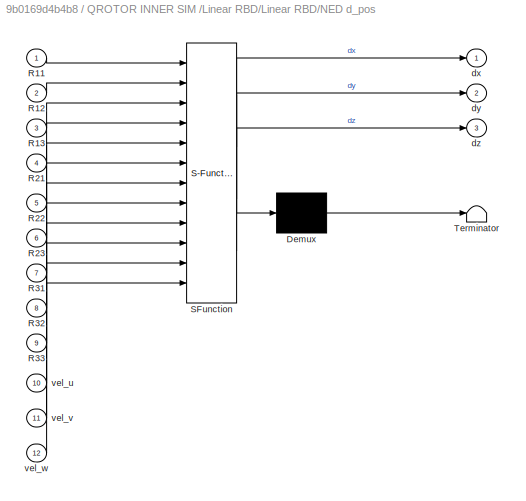
BLOCK [SubSystem] QROTOR INNER SIM /Linear RBD/Linear RBD/NED d_pos
  ErrorFcn = Stateflow.Translate.translate
  PermitHierarchicalResolution = ExplicitOnly
  Ports = [12, 3]
  RequestExecContextInheritance = off
  SFBlockType = MATLAB Function
  TreatAsAtomicUnit = on
  Variant = off
BLOCK [Demux] QROTOR INNER SIM /Linear RBD/Linear RBD/NED d_pos/ Demux 
  Outputs = 1
  Ports = [1, 1]
BLOCK [S-Function] QROTOR INNER SIM /Linear RBD/Linear RBD/NED d_pos/ SFunction 
  EnableBusSupport = on
  FunctionName = sf_sfun
  PortCounts = [12 4]
  Ports = [12, 4]
  SFunctionDeploymentMode = off
  Tag = Stateflow S-Function Copy_of_Qrotor_sim2 9
BLOCK [Terminator] QROTOR INNER SIM /Linear RBD/Linear RBD/NED d_pos/ Terminator 
BLOCK [Inport] QROTOR INNER SIM /Linear RBD/Linear RBD/NED d_pos/R11
  IconDisplay = Port number
BLOCK [Inport] QROTOR INNER SIM /Linear RBD/Linear RBD/NED d_pos/R12
  IconDisplay = Port number
  Port = 2
BLOCK [Inport] QROTOR INNER SIM /Linear RBD/Linear RBD/NED d_pos/R13
  IconDisplay = Port number
  Port = 3
BLOCK [Inport] QROTOR INNER SIM /Linear RBD/Linear RBD/NED d_pos/R21
  IconDisplay = Port number
  Port = 4
BLOCK [Inport] QROTOR INNER SIM /Linear RBD/Linear RBD/NED d_pos/R22
  IconDisplay = Port number
  Port = 5
BLOCK [Inport] QROTOR INNER SIM /Linear RBD/Linear RBD/NED d_pos/R23
  IconDisplay = Port number
  Port = 6
BLOCK [Inport] QROTOR INNER SIM /Linear RBD/Linear RBD/NED d_pos/R31
  IconDisplay = Port number
  Port = 7
BLOCK [Inport] QROTOR INNER SIM /Linear RBD/Linear RBD/NED d_pos/R32
  IconDisplay = Port number
  Port = 8
BLOCK [Inport] QROTOR INNER SIM /Linear RBD/Linear RBD/NED d_pos/R33
  IconDisplay = Port number
  Port = 9
BLOCK [Outport] QROTOR INNER SIM /Linear RBD/Linear RBD/NED d_pos/dx
  IconDisplay = Port number
BLOCK [Outport] QROTOR INNER SIM /Linear RBD/Linear RBD/NED d_pos/dy
  IconDisplay = Port number
  Port = 2
BLOCK [Outport] QROTOR INNER SIM /Linear RBD/Linear RBD/NED d_pos/dz
  IconDisplay = Port number
  Port = 3
BLOCK [Inport] QROTOR INNER SIM /Linear RBD/Linear RBD/NED d_pos/vel_u
  IconDisplay = Port number
  Port = 10
BLOCK [Inport] QROTOR INNER SIM /Linear RBD/Linear RBD/NED d_pos/vel_v
  IconDisplay = Port number
  Port = 11
BLOCK [Inport] QROTOR INNER SIM /Linear RBD/Linear RBD/NED d_pos/vel_w
  IconDisplay = Port number
  Port = 12
BLOCK [SubSystem] QROTOR INNER SIM /Linear RBD/Linear RBD/Rotation Matrix
  ErrorFcn = Stateflow.Translate.translate
  PermitHierarchicalResolution = ExplicitOnly
  Ports = [3, 9]
  RequestExecContextInheritance = off
  SFBlockType = MATLAB Function
  TreatAsAtomicUnit = on
  Variant = off
BLOCK [Demux] QROTOR INNER SIM /Linear RBD/Linear RBD/Rotation Matrix/ Demux 
  Outputs = 1
  Ports = [1, 1]
BLOCK [S-Function] QROTOR INNER SIM /Linear RBD/Linear RBD/Rotation Matrix/ SFunction 
  EnableBusSupport = on
  FunctionName = sf_sfun
  PortCounts = [3 10]
  Ports = [3, 10]
  SFunctionDeploymentMode = off
  Tag = Stateflow S-Function Copy_of_Qrotor_sim2 8
BLOCK [Terminator] QROTOR INNER SIM /Linear RBD/Linear RBD/Rotation Matrix/ Terminator 
BLOCK [Outport] QROTOR INNER SIM /Linear RBD/Linear RBD/Rotation Matrix/R11
  IconDisplay = Port number
BLOCK [Outport] QROTOR INNER SIM /Linear RBD/Linear RBD/Rotation Matrix/R12
  IconDisplay = Port number
  Port = 2
BLOCK [Outport] QROTOR INNER SIM /Linear RBD/Linear RBD/Rotation Matrix/R13
  IconDisplay = Port number
  Port = 3
BLOCK [Outport] QROTOR INNER SIM /Linear RBD/Linear RBD/Rotation Matrix/R21
  IconDisplay = Port number
  Port = 4
BLOCK [Outport] QROTOR INNER SIM /Linear RBD/Linear RBD/Rotation Matrix/R22
  IconDisplay = Port number
  Port = 5
BLOCK [Outport] QROTOR INNER SIM /Linear RBD/Linear RBD/Rotation Matrix/R23
  IconDisplay = Port number
  Port = 6
BLOCK [Outport] QROTOR INNER SIM /Linear RBD/Linear RBD/Rotation Matrix/R31
  IconDisplay = Port number
  Port = 7
BLOCK [Outport] QROTOR INNER SIM /Linear RBD/Linear RBD/Rotation Matrix/R32
  IconDisplay = Port number
  Port = 8
BLOCK [Outport] QROTOR INNER SIM /Linear RBD/Linear RBD/Rotation Matrix/R33
  IconDisplay = Port number
  Port = 9
BLOCK [Inport] QROTOR INNER SIM /Linear RBD/Linear RBD/Rotation Matrix/phi
  IconDisplay = Port number
BLOCK [Inport] QROTOR INNER SIM /Linear RBD/Linear RBD/Rotation Matrix/psi
  IconDisplay = Port number
  Port = 3
BLOCK [Inport] QROTOR INNER SIM /Linear RBD/Linear RBD/Rotation Matrix/tht
  IconDisplay = Port number
  Port = 2
BLOCK [Outport] QROTOR INNER SIM /Linear RBD/Linear RBD/d_vel_x
  IconDisplay = Port number
  Port = 7
BLOCK [Outport] QROTOR INNER SIM /Linear RBD/Linear RBD/d_vel_y
  IconDisplay = Port number
  Port = 8
BLOCK [Outport] QROTOR INNER SIM /Linear RBD/Linear RBD/d_vel_z 
  IconDisplay = Port number
  Port = 9
BLOCK [Outport] QROTOR INNER SIM /Linear RBD/Linear RBD/dx
  IconDisplay = Port number
BLOCK [Outport] QROTOR INNER SIM /Linear RBD/Linear RBD/dy
  IconDisplay = Port number
  Port = 2
BLOCK [Outport] QROTOR INNER SIM /Linear RBD/Linear RBD/dz
  IconDisplay = Port number
  Port = 3
BLOCK [Inport] QROTOR INNER SIM /Linear RBD/Linear RBD/omg_p
  IconDisplay = Port number
  Port = 4
BLOCK [Inport] QROTOR INNER SIM /Linear RBD/Linear RBD/omg_q
  IconDisplay = Port number
  Port = 5
BLOCK [Inport] QROTOR INNER SIM /Linear RBD/Linear RBD/omg_r
  IconDisplay = Port number
  Port = 6
BLOCK [Inport] QROTOR INNER SIM /Linear RBD/Linear RBD/phi
  IconDisplay = Port number
  Port = 7
BLOCK [Inport] QROTOR INNER SIM /Linear RBD/Linear RBD/psi
  IconDisplay = Port number
  Port = 9
BLOCK [Inport] QROTOR INNER SIM /Linear RBD/Linear RBD/tht
  IconDisplay = Port number
  Port = 8
BLOCK [Outport] QROTOR INNER SIM /Linear RBD/Linear RBD/vel_u
  IconDisplay = Port number
  Port = 4
BLOCK [Outport] QROTOR INNER SIM /Linear RBD/Linear RBD/vel_v
  IconDisplay = Port number
  Port = 5
BLOCK [Outport] QROTOR INNER SIM /Linear RBD/Linear RBD/vel_w
  IconDisplay = Port number
  Port = 6
BLOCK [SubSystem] QROTOR INNER SIM /Linear RBD/Output Parsing
  Ports = [12, 12]
  RequestExecContextInheritance = off
  Variant = off
BLOCK [Inport] QROTOR INNER SIM /Linear RBD/Output Parsing/In1
  IconDisplay = Port number
BLOCK [Inport] QROTOR INNER SIM /Linear RBD/Output Parsing/In10
  IconDisplay = Port number
  Port = 10
BLOCK [Inport] QROTOR INNER SIM /Linear RBD/Output Parsing/In11
  IconDisplay = Port number
  Port = 11
BLOCK [Inport] QROTOR INNER SIM /Linear RBD/Output Parsing/In12
  IconDisplay = Port number
  Port = 12
BLOCK [Inport] QROTOR INNER SIM /Linear RBD/Output Parsing/In2
  IconDisplay = Port number
  Port = 2
BLOCK [Inport] QROTOR INNER SIM /Linear RBD/Output Parsing/In3
  IconDisplay = Port number
  Port = 3
BLOCK [Inport] QROTOR INNER SIM /Linear RBD/Output Parsing/In4
  IconDisplay = Port number
  Port = 4
BLOCK [Inport] QROTOR INNER SIM /Linear RBD/Output Parsing/In5
  IconDisplay = Port number
  Port = 5
BLOCK [Inport] QROTOR INNER SIM /Linear RBD/Output Parsing/In6
  IconDisplay = Port number
  Port = 6
BLOCK [Inport] QROTOR INNER SIM /Linear RBD/Output Parsing/In7
  IconDisplay = Port number
  Port = 7
BLOCK [Inport] QROTOR INNER SIM /Linear RBD/Output Parsing/In8
  IconDisplay = Port number
  Port = 8
BLOCK [Inport] QROTOR INNER SIM /Linear RBD/Output Parsing/In9
  IconDisplay = Port number
  Port = 9
BLOCK [Integrator] QROTOR INNER SIM /Linear RBD/Output Parsing/Integrator
  Ports = [1, 1]
BLOCK [Integrator] QROTOR INNER SIM /Linear RBD/Output Parsing/Integrator1
  Ports = [1, 1]
BLOCK [Integrator] QROTOR INNER SIM /Linear RBD/Output Parsing/Integrator2
  Ports = [1, 1]
BLOCK [Outport] QROTOR INNER SIM /Linear RBD/Output Parsing/P
  IconDisplay = Port number
  Port = 7
BLOCK [Outport] QROTOR INNER SIM /Linear RBD/Output Parsing/Q
  IconDisplay = Port number
  Port = 8
BLOCK [Outport] QROTOR INNER SIM /Linear RBD/Output Parsing/R
  IconDisplay = Port number
  Port = 9
BLOCK [Outport] QROTOR INNER SIM /Linear RBD/Output Parsing/Vel_U
  IconDisplay = Port number
  Port = 4
BLOCK [Outport] QROTOR INNER SIM /Linear RBD/Output Parsing/Vel_V
  IconDisplay = Port number
  Port = 5
BLOCK [Outport] QROTOR INNER SIM /Linear RBD/Output Parsing/Vel_W
  IconDisplay = Port number
  Port = 6
BLOCK [Outport] QROTOR INNER SIM /Linear RBD/Output Parsing/X_Pos
  IconDisplay = Port number
BLOCK [Outport] QROTOR INNER SIM /Linear RBD/Output Parsing/Y_Pos
  IconDisplay = Port number
  Port = 2
BLOCK [Outport] QROTOR INNER SIM /Linear RBD/Output Parsing/Z_Pos
  IconDisplay = Port number
  Port = 3
BLOCK [Outport] QROTOR INNER SIM /Linear RBD/Output Parsing/omg_P
  IconDisplay = Port number
  Port = 10
BLOCK [Outport] QROTOR INNER SIM /Linear RBD/Output Parsing/omg_Q
  IconDisplay = Port number
  Port = 11
BLOCK [Outport] QROTOR INNER SIM /Linear RBD/Output Parsing/omg_R
  IconDisplay = Port number
  Port = 12
BLOCK [SubSystem] QROTOR INNER SIM /Linear RBD/Output Parsing/pos xyz
  Ports = [3, 3]
  RequestExecContextInheritance = off
  Variant = off
BLOCK [Inport] QROTOR INNER SIM /Linear RBD/Output Parsing/pos xyz/In1
  IconDisplay = Port number
BLOCK [Inport] QROTOR INNER SIM /Linear RBD/Output Parsing/pos xyz/In2
  IconDisplay = Port number
  Port = 2
BLOCK [Inport] QROTOR INNER SIM /Linear RBD/Output Parsing/pos xyz/In3
  IconDisplay = Port number
  Port = 3
BLOCK [Integrator] QROTOR INNER SIM /Linear RBD/Output Parsing/pos xyz/Integrator6
  Ports = [1, 1]
BLOCK [Integrator] QROTOR INNER SIM /Linear RBD/Output Parsing/pos xyz/Integrator7
  Ports = [1, 1]
BLOCK [Integrator] QROTOR INNER SIM /Linear RBD/Output Parsing/pos xyz/Integrator8
  Ports = [1, 1]
BLOCK [Outport] QROTOR INNER SIM /Linear RBD/Output Parsing/pos xyz/Out1
  IconDisplay = Port number
BLOCK [Outport] QROTOR INNER SIM /Linear RBD/Output Parsing/pos xyz/Out2
  IconDisplay = Port number
  Port = 2
BLOCK [Outport] QROTOR INNER SIM /Linear RBD/Output Parsing/pos xyz/Out3
  IconDisplay = Port number
  Port = 3
BLOCK [Outport] QROTOR INNER SIM /Linear RBD/P
  IconDisplay = Port number
  Port = 7
BLOCK [Outport] QROTOR INNER SIM /Linear RBD/Q
  IconDisplay = Port number
  Port = 8
BLOCK [Outport] QROTOR INNER SIM /Linear RBD/R
  IconDisplay = Port number
  Port = 9
BLOCK [Sum] QROTOR INNER SIM /Linear RBD/Sum
  InputSameDT = off
  OutDataTypeStr = Inherit: Inherit via internal rule
  Ports = [2, 1]
  SaturateOnIntegerOverflow = off
BLOCK [Sum] QROTOR INNER SIM /Linear RBD/Sum1
  InputSameDT = off
  OutDataTypeStr = Inherit: Inherit via internal rule
  Ports = [2, 1]
  SaturateOnIntegerOverflow = off
BLOCK [Sum] QROTOR INNER SIM /Linear RBD/Sum2
  InputSameDT = off
  OutDataTypeStr = Inherit: Inherit via internal rule
  Ports = [2, 1]
  SaturateOnIntegerOverflow = off
BLOCK [Inport] QROTOR INNER SIM /Linear RBD/THRUST
  IconDisplay = Port number
BLOCK [Outport] QROTOR INNER SIM /Linear RBD/Vel_U
  IconDisplay = Port number
  Port = 4
BLOCK [Outport] QROTOR INNER SIM /Linear RBD/Vel_V
  IconDisplay = Port number
  Port = 5
BLOCK [Outport] QROTOR INNER SIM /Linear RBD/Vel_W
  IconDisplay = Port number
  Port = 6
BLOCK [Inport] QROTOR INNER SIM /Linear RBD/WND_XYZ
  IconDisplay = Port number
  Port = 8
BLOCK [Outport] QROTOR INNER SIM /Linear RBD/X_Pos
  IconDisplay = Port number
BLOCK [Outport] QROTOR INNER SIM /Linear RBD/Y_Pos
  IconDisplay = Port number
  Port = 2
BLOCK [Outport] QROTOR INNER SIM /Linear RBD/Z_Pos
  IconDisplay = Port number
  Port = 3
BLOCK [Outport] QROTOR INNER SIM /Linear RBD/omg_P
  IconDisplay = Port number
  Port = 10
BLOCK [Outport] QROTOR INNER SIM /Linear RBD/omg_Q
  IconDisplay = Port number
  Port = 11
BLOCK [Outport] QROTOR INNER SIM /Linear RBD/omg_R
  IconDisplay = Port number
  Port = 12
BLOCK [Inport] QROTOR INNER SIM /Linear RBD/omg_p
  IconDisplay = Port number
  Port = 2
BLOCK [Inport] QROTOR INNER SIM /Linear RBD/omg_q
  IconDisplay = Port number
  Port = 3
BLOCK [Inport] QROTOR INNER SIM /Linear RBD/omg_r
  IconDisplay = Port number
  Port = 4
BLOCK [Inport] QROTOR INNER SIM /Linear RBD/phi
  IconDisplay = Port number
  Port = 5
BLOCK [Inport] QROTOR INNER SIM /Linear RBD/psi
  IconDisplay = Port number
  Port = 7
BLOCK [Inport] QROTOR INNER SIM /Linear RBD/tht
  IconDisplay = Port number
  Port = 6
BLOCK [SubSystem] QROTOR INNER SIM /Motor System 
  Ports = [4, 4]
  RequestExecContextInheritance = off
  Variant = off
BLOCK [SubSystem] QROTOR INNER SIM /Motor System /Body Frame Moments
  Ports = [4, 4]
  RequestExecContextInheritance = off
  Variant = off
BLOCK [Gain] QROTOR INNER SIM /Motor System /Body Frame Moments/Gain
  Gain = KM_T_1
  OutDataTypeStr = Inherit: Inherit via internal rule
  ParamDataTypeStr = Inherit: Inherit via internal rule
  SaturateOnIntegerOverflow = off
BLOCK [Gain] QROTOR INNER SIM /Motor System /Body Frame Moments/Gain1
  Gain = 1/KM_1
  OutDataTypeStr = Inherit: Inherit via internal rule
  ParamDataTypeStr = Inherit: Inherit via internal rule
  SaturateOnIntegerOverflow = off
BLOCK [Gain] QROTOR INNER SIM /Motor System /Body Frame Moments/Gain2
  Gain = KM_T_2
  OutDataTypeStr = Inherit: Inherit via internal rule
  ParamDataTypeStr = Inherit: Inherit via internal rule
  SaturateOnIntegerOverflow = off
BLOCK [Gain] QROTOR INNER SIM /Motor System /Body Frame Moments/Gain3
  Gain = 1/KM_2
  OutDataTypeStr = Inherit: Inherit via internal rule
  ParamDataTypeStr = Inherit: Inherit via internal rule
  SaturateOnIntegerOverflow = off
BLOCK [Gain] QROTOR INNER SIM /Motor System /Body Frame Moments/Gain4
  Gain = KM_T_3
  OutDataTypeStr = Inherit: Inherit via internal rule
  ParamDataTypeStr = Inherit: Inherit via internal rule
  SaturateOnIntegerOverflow = off
BLOCK [Gain] QROTOR INNER SIM /Motor System /Body Frame Moments/Gain5
  Gain = 1/KM_3
  OutDataTypeStr = Inherit: Inherit via internal rule
  ParamDataTypeStr = Inherit: Inherit via internal rule
  SaturateOnIntegerOverflow = off
BLOCK [Gain] QROTOR INNER SIM /Motor System /Body Frame Moments/Gain6
  Gain = KM_T_4
  OutDataTypeStr = Inherit: Inherit via internal rule
  ParamDataTypeStr = Inherit: Inherit via internal rule
  SaturateOnIntegerOverflow = off
BLOCK [Gain] QROTOR INNER SIM /Motor System /Body Frame Moments/Gain7
  Gain = 1/KM_4
  OutDataTypeStr = Inherit: Inherit via internal rule
  ParamDataTypeStr = Inherit: Inherit via internal rule
  SaturateOnIntegerOverflow = off
BLOCK [Inport] QROTOR INNER SIM /Motor System /Body Frame Moments/M1_THRUST
  IconDisplay = Port number
BLOCK [Inport] QROTOR INNER SIM /Motor System /Body Frame Moments/M2_THRUST
  IconDisplay = Port number
  Port = 2
BLOCK [Inport] QROTOR INNER SIM /Motor System /Body Frame Moments/M3_THRUST
  IconDisplay = Port number
  Port = 3
BLOCK [Inport] QROTOR INNER SIM /Motor System /Body Frame Moments/M4_THRUST
  IconDisplay = Port number
  Port = 4
BLOCK [Sum] QROTOR INNER SIM /Motor System /Body Frame Moments/Sum1
  InputSameDT = off
  Inputs = -++-
  OutDataTypeStr = Inherit: Inherit via internal rule
  Ports = [4, 1]
  SaturateOnIntegerOverflow = off
BLOCK [Sum] QROTOR INNER SIM /Motor System /Body Frame Moments/Sum2
  InputSameDT = off
  Inputs = ++++
  OutDataTypeStr = Inherit: Inherit via internal rule
  Ports = [4, 1]
  SaturateOnIntegerOverflow = off
BLOCK [Sum] QROTOR INNER SIM /Motor System /Body Frame Moments/Sum3
  InputSameDT = off
  Inputs = +-+-
  OutDataTypeStr = Inherit: Inherit via internal rule
  Ports = [4, 1]
  SaturateOnIntegerOverflow = off
BLOCK [Sum] QROTOR INNER SIM /Motor System /Body Frame Moments/Sum4
  InputSameDT = off
  Inputs = ++--
  OutDataTypeStr = Inherit: Inherit via internal rule
  Ports = [4, 1]
  SaturateOnIntegerOverflow = off
BLOCK [Outport] QROTOR INNER SIM /Motor System /Body Frame Moments/Thrust_total
  IconDisplay = Port number
BLOCK [Outport] QROTOR INNER SIM /Motor System /Body Frame Moments/p_moment
  IconDisplay = Port number
  Port = 2
BLOCK [Gain] QROTOR INNER SIM /Motor System /Body Frame Moments/pitch moment
  Gain = Y_length
  OutDataTypeStr = Inherit: Inherit via internal rule
  ParamDataTypeStr = Inherit: Inherit via internal rule
  SaturateOnIntegerOverflow = off
BLOCK [Outport] QROTOR INNER SIM /Motor System /Body Frame Moments/q_moment
  IconDisplay = Port number
  Port = 3
BLOCK [Outport] QROTOR INNER SIM /Motor System /Body Frame Moments/r_moment 
  IconDisplay = Port number
  Port = 4
BLOCK [Gain] QROTOR INNER SIM /Motor System /Body Frame Moments/roll moment
  Gain = X_length
  OutDataTypeStr = Inherit: Inherit via internal rule
  ParamDataTypeStr = Inherit: Inherit via internal rule
  SaturateOnIntegerOverflow = off
BLOCK [SubSystem] QROTOR INNER SIM /Motor System /Command to Motor Map
  Ports = [4, 4]
  RequestExecContextInheritance = off
  Variant = off
BLOCK [Constant] QROTOR INNER SIM /Motor System /Command to Motor Map/Constant
  Value = PWM_CUT
BLOCK [Outport] QROTOR INNER SIM /Motor System /Command to Motor Map/M1_PWM
  IconDisplay = Port number
BLOCK [Outport] QROTOR INNER SIM /Motor System /Command to Motor Map/M2_PWM
  IconDisplay = Port number
  Port = 2
BLOCK [Outport] QROTOR INNER SIM /Motor System /Command to Motor Map/M3_PWM
  IconDisplay = Port number
  Port = 3
BLOCK [Outport] QROTOR INNER SIM /Motor System /Command to Motor Map/M4_PWM
  IconDisplay = Port number
  Port = 4
BLOCK [Inport] QROTOR INNER SIM /Motor System /Command to Motor Map/P_TORQUE
  IconDisplay = Port number
BLOCK [Gain] QROTOR INNER SIM /Motor System /Command to Motor Map/Pitch
  Gain = 1/(4 * KM_GENERAL * Y_length)
  OutDataTypeStr = Inherit: Inherit via internal rule
  ParamDataTypeStr = Inherit: Inherit via internal rule
  SaturateOnIntegerOverflow = off
BLOCK [Inport] QROTOR INNER SIM /Motor System /Command to Motor Map/Q_TORQUE
  IconDisplay = Port number
  Port = 2
BLOCK [Inport] QROTOR INNER SIM /Motor System /Command to Motor Map/R_TORQUE
  IconDisplay = Port number
  Port = 3
BLOCK [Gain] QROTOR INNER SIM /Motor System /Command to Motor Map/Roll
  Gain = 1/(4 * KM_GENERAL * X_length)
  OutDataTypeStr = Inherit: Inherit via internal rule
  ParamDataTypeStr = Inherit: Inherit via internal rule
  SaturateOnIntegerOverflow = off
BLOCK [Sum] QROTOR INNER SIM /Motor System /Command to Motor Map/Sum
  InputSameDT = off
  Inputs = -++++
  OutDataTypeStr = Inherit: Inherit via internal rule
  Ports = [5, 1]
  SaturateOnIntegerOverflow = off
BLOCK [Sum] QROTOR INNER SIM /Motor System /Command to Motor Map/Sum1
  InputSameDT = off
  Inputs = +-+++
  OutDataTypeStr = Inherit: Inherit via internal rule
  Ports = [5, 1]
  SaturateOnIntegerOverflow = off
BLOCK [Sum] QROTOR INNER SIM /Motor System /Command to Motor Map/Sum2
  InputSameDT = off
  Inputs = ++-++
  OutDataTypeStr = Inherit: Inherit via internal rule
  Ports = [5, 1]
  SaturateOnIntegerOverflow = off
BLOCK [Sum] QROTOR INNER SIM /Motor System /Command to Motor Map/Sum3
  InputSameDT = off
  Inputs = ---++
  OutDataTypeStr = Inherit: Inherit via internal rule
  Ports = [5, 1]
  SaturateOnIntegerOverflow = off
BLOCK [Inport] QROTOR INNER SIM /Motor System /Command to Motor Map/THRUST
  IconDisplay = Port number
  Port = 4
BLOCK [Gain] QROTOR INNER SIM /Motor System /Command to Motor Map/Thrust
  Gain = 1/(4 * KM_GENERAL)
  OutDataTypeStr = Inherit: Inherit via internal rule
  ParamDataTypeStr = Inherit: Inherit via internal rule
  SaturateOnIntegerOverflow = off
BLOCK [Gain] QROTOR INNER SIM /Motor System /Command to Motor Map/Yaw
  Gain = 1/(4 * KM_T_GENERAL)
  OutDataTypeStr = Inherit: Inherit via internal rule
  ParamDataTypeStr = Inherit: Inherit via internal rule
  SaturateOnIntegerOverflow = off
BLOCK [Constant] QROTOR INNER SIM /Motor System /Constant
  Value = PWM_CUT
BLOCK [SubSystem] QROTOR INNER SIM /Motor System /Motor Dynamics
  Ports = [5, 4]
  RequestExecContextInheritance = off
  Variant = off
BLOCK [Inport] QROTOR INNER SIM /Motor System /Motor Dynamics/M1_PWMIN
  IconDisplay = Port number
BLOCK [Outport] QROTOR INNER SIM /Motor System /Motor Dynamics/M1_THRUST
  IconDisplay = Port number
BLOCK [Inport] QROTOR INNER SIM /Motor System /Motor Dynamics/M2_PWMIN
  IconDisplay = Port number
  Port = 2
BLOCK [Outport] QROTOR INNER SIM /Motor System /Motor Dynamics/M2_THRUST
  IconDisplay = Port number
  Port = 2
BLOCK [Inport] QROTOR INNER SIM /Motor System /Motor Dynamics/M3_PWMIN
  IconDisplay = Port number
  Port = 3
BLOCK [Outport] QROTOR INNER SIM /Motor System /Motor Dynamics/M3_THRUST
  IconDisplay = Port number
  Port = 3
BLOCK [Inport] QROTOR INNER SIM /Motor System /Motor Dynamics/M4_PWMIN
  IconDisplay = Port number
  Port = 4
BLOCK [Outport] QROTOR INNER SIM /Motor System /Motor Dynamics/M4_THRUST
  IconDisplay = Port number
  Port = 4
BLOCK [Inport] QROTOR INNER SIM /Motor System /Motor Dynamics/PWM_CUTOFF 
  IconDisplay = Port number
  Port = 5
BLOCK [Saturate] QROTOR INNER SIM /Motor System /Motor Dynamics/Saturation
  InputPortMap = u0
  LowerLimit = 0
  Ports = [1, 1]
  UpperLimit = 1000
BLOCK [Saturate] QROTOR INNER SIM /Motor System /Motor Dynamics/Saturation1
  InputPortMap = u0
  LowerLimit = 0
  Ports = [1, 1]
  UpperLimit = 1000
BLOCK [Saturate] QROTOR INNER SIM /Motor System /Motor Dynamics/Saturation2
  InputPortMap = u0
  LowerLimit = 0
  Ports = [1, 1]
  UpperLimit = 1000
BLOCK [Saturate] QROTOR INNER SIM /Motor System /Motor Dynamics/Saturation3
  InputPortMap = u0
  LowerLimit = 0
  Ports = [1, 1]
  UpperLimit = 1000
BLOCK [Sum] QROTOR INNER SIM /Motor System /Motor Dynamics/Sum
  InputSameDT = off
  Inputs = +-
  OutDataTypeStr = Inherit: Inherit via internal rule
  Ports = [2, 1]
  SaturateOnIntegerOverflow = off
BLOCK [Sum] QROTOR INNER SIM /Motor System /Motor Dynamics/Sum1
  InputSameDT = off
  Inputs = +-
  OutDataTypeStr = Inherit: Inherit via internal rule
  Ports = [2, 1]
  SaturateOnIntegerOverflow = off
BLOCK [Sum] QROTOR INNER SIM /Motor System /Motor Dynamics/Sum2
  InputSameDT = off
  Inputs = +-
  OutDataTypeStr = Inherit: Inherit via internal rule
  Ports = [2, 1]
  SaturateOnIntegerOverflow = off
BLOCK [Sum] QROTOR INNER SIM /Motor System /Motor Dynamics/Sum3
  InputSameDT = off
  Inputs = +-
  OutDataTypeStr = Inherit: Inherit via internal rule
  Ports = [2, 1]
  SaturateOnIntegerOverflow = off
BLOCK [TransferFcn] QROTOR INNER SIM /Motor System /Motor Dynamics/Transfer Fcn
  Denominator = [Tau_1 1]
  Numerator = [KM_1]
BLOCK [TransferFcn] QROTOR INNER SIM /Motor System /Motor Dynamics/Transfer Fcn1
  Denominator = [Tau_2 1]
  Numerator = [KM_2]
BLOCK [TransferFcn] QROTOR INNER SIM /Motor System /Motor Dynamics/Transfer Fcn2
  Denominator = [Tau_3 1]
  Numerator = [KM_3]
BLOCK [TransferFcn] QROTOR INNER SIM /Motor System /Motor Dynamics/Transfer Fcn3
  Denominator = [Tau_4 1]
  Numerator = [KM_4]
BLOCK [Outport] QROTOR INNER SIM /Motor System /P MOMENT
  IconDisplay = Port number
  Port = 2
BLOCK [Inport] QROTOR INNER SIM /Motor System /P TORQUE
  IconDisplay = Port number
BLOCK [Outport] QROTOR INNER SIM /Motor System /Q MOMENT
  IconDisplay = Port number
  Port = 3
BLOCK [Inport] QROTOR INNER SIM /Motor System /Q TORQUE
  IconDisplay = Port number
  Port = 2
BLOCK [Outport] QROTOR INNER SIM /Motor System /R MOMENT
  IconDisplay = Port number
  Port = 4
BLOCK [Inport] QROTOR INNER SIM /Motor System /R TORQUE
  IconDisplay = Port number
  Port = 3
BLOCK [Outport] QROTOR INNER SIM /Motor System /THRUST
  IconDisplay = Port number
BLOCK [Inport] QROTOR INNER SIM /Motor System /V_THRUST
  IconDisplay = Port number
  Port = 4
BLOCK [Mux] QROTOR INNER SIM /Mux
  DisplayOption = bar
  Inputs = 3
  Ports = [3, 1]
BLOCK [Outport] QROTOR INNER SIM /P
  IconDisplay = Port number
  Port = 7
BLOCK [Inport] QROTOR INNER SIM /P TORQUE
  IconDisplay = Port number
BLOCK [Outport] QROTOR INNER SIM /Q
  IconDisplay = Port number
  Port = 8
BLOCK [Inport] QROTOR INNER SIM /Q TORQUE
  IconDisplay = Port number
  Port = 2
BLOCK [Outport] QROTOR INNER SIM /R
  IconDisplay = Port number
  Port = 9
BLOCK [Inport] QROTOR INNER SIM /R TORQUE
  IconDisplay = Port number
  Port = 3
BLOCK [Sum] QROTOR INNER SIM /Sum
  InputSameDT = off
  OutDataTypeStr = Inherit: Inherit via internal rule
  Ports = [2, 1]
  SaturateOnIntegerOverflow = off
BLOCK [Sum] QROTOR INNER SIM /Sum1
  InputSameDT = off
  OutDataTypeStr = Inherit: Inherit via internal rule
  Ports = [2, 1]
  SaturateOnIntegerOverflow = off
BLOCK [Sum] QROTOR INNER SIM /Sum2
  InputSameDT = off
  OutDataTypeStr = Inherit: Inherit via internal rule
  Ports = [2, 1]
  SaturateOnIntegerOverflow = off
BLOCK [Inport] QROTOR INNER SIM /THRUST
  IconDisplay = Port number
  Port = 4
BLOCK [Outport] QROTOR INNER SIM /Vel_U
  IconDisplay = Port number
  Port = 4
BLOCK [Outport] QROTOR INNER SIM /Vel_V
  IconDisplay = Port number
  Port = 5
BLOCK [Outport] QROTOR INNER SIM /Vel_W
  IconDisplay = Port number
  Port = 6
BLOCK [Inport] QROTOR INNER SIM /WND
  IconDisplay = Port number
  Port = 5
BLOCK [Outport] QROTOR INNER SIM /X_Pos
  IconDisplay = Port number
BLOCK [Outport] QROTOR INNER SIM /Y_Pos
  IconDisplay = Port number
  Port = 2
BLOCK [Outport] QROTOR INNER SIM /Z_Pos
  IconDisplay = Port number
  Port = 3
BLOCK [Outport] QROTOR INNER SIM /omg_P
  IconDisplay = Port number
  Port = 10
BLOCK [Outport] QROTOR INNER SIM /omg_Q
  IconDisplay = Port number
  Port = 11
BLOCK [Outport] QROTOR INNER SIM /omg_R
  IconDisplay = Port number
  Port = 12
BLOCK [SubSystem] Roll Controller 
  Ports = [3, 1]
  RequestExecContextInheritance = off
  Variant = off
BLOCK [DataStoreRead] Roll Controller /Data Store Read
  DataStoreName = Ixm
  Ports = [0, 1]
BLOCK [Gain] Roll Controller /Gain
  Gain = KpP
  OutDataTypeStr = Inherit: Inherit via internal rule
  ParamDataTypeStr = Inherit: Inherit via internal rule
  SaturateOnIntegerOverflow = off
BLOCK [Inport] Roll Controller /In1
  IconDisplay = Port number
BLOCK [Inport] Roll Controller /In2
  IconDisplay = Port number
  Port = 2
BLOCK [Inport] Roll Controller /In3
  IconDisplay = Port number
  Port = 3
BLOCK [Integrator] Roll Controller /Integrator6
  Ports = [1, 1]
BLOCK [Gain] Roll Controller /K1
  Gain = Ki*Kp
  OutDataTypeStr = Inherit: Inherit via internal rule
  ParamDataTypeStr = Inherit: Inherit via internal rule
  SaturateOnIntegerOverflow = off
BLOCK [Gain] Roll Controller /K2
  Gain = Ki
  OutDataTypeStr = Inherit: Inherit via internal rule
  ParamDataTypeStr = Inherit: Inherit via internal rule
  SaturateOnIntegerOverflow = off
BLOCK [Gain] Roll Controller /Kp
  Gain = Kp
  OutDataTypeStr = Inherit: Inherit via internal rule
  ParamDataTypeStr = Inherit: Inherit via internal rule
  SaturateOnIntegerOverflow = off
BLOCK [Product] Roll Controller /Matrix Multiply
  InputSameDT = off
  Multiplication = Matrix(*)
  OutDataTypeStr = Inherit: Inherit via internal rule
  Ports = [2, 1]
  RndMeth = Floor
  SaturateOnIntegerOverflow = off
BLOCK [Outport] Roll Controller /Out1
  IconDisplay = Port number
BLOCK [Sum] Roll Controller /Sum
  InputSameDT = off
  Inputs = +-
  OutDataTypeStr = Inherit: Inherit via internal rule
  Ports = [2, 1]
  SaturateOnIntegerOverflow = off
BLOCK [Sum] Roll Controller /Sum1
  InputSameDT = off
  Inputs = +-
  OutDataTypeStr = Inherit: Inherit via internal rule
  Ports = [2, 1]
  SaturateOnIntegerOverflow = off
BLOCK [Sum] Roll Controller /Sum2
  InputSameDT = off
  Inputs = ++-
  OutDataTypeStr = Inherit: Inherit via internal rule
  Ports = [3, 1]
  SaturateOnIntegerOverflow = off
BLOCK [Scope] Scope
  NumInputPorts = 6
  Ports = [6]
  ScopeSpecificationString = Simulink.scopes.TimeScopeBlockCfg('CurrentConfiguration', extmgr.ConfigurationSet(extmgr.Configuration('Core','General UI',true),extmgr.Configuration('Core','Source UI',true),extmgr.Configuration('Sources','WiredSimulink',true),extmgr.Configuration('Visuals','Time Domain',true,'SerializedDisplays',{struct('MinYLimReal','-411.81242','MaxYLimReal','81.11916','YLabelReal','','MinYLimMag',' 0.00000','...<+1559ch>
BLOCK [Scope] Scope1
  NumInputPorts = 6
  Ports = [6]
  ScopeSpecificationString = Simulink.scopes.TimeScopeBlockCfg('CurrentConfiguration', extmgr.ConfigurationSet(extmgr.Configuration('Core','General UI',true),extmgr.Configuration('Core','Source UI',true),extmgr.Configuration('Sources','WiredSimulink',true,'DataLoggingVariableName','ScopeData1'),extmgr.Configuration('Visuals','Time Domain',true,'SerializedDisplays',{struct('MinYLimReal','-26786200316936520000000000000000000000...<+3229ch>
BLOCK [Scope] Scope2
  Commented = on
  NumInputPorts = 2
  Ports = [2]
  ScopeSpecificationString = Simulink.scopes.TimeScopeBlockCfg('CurrentConfiguration', extmgr.ConfigurationSet(extmgr.Configuration('Core','General UI',true),extmgr.Configuration('Core','Source UI',true),extmgr.Configuration('Sources','WiredSimulink',true,'DataLoggingVariableName','ScopeData1'),extmgr.Configuration('Visuals','Time Domain',true,'SerializedDisplays',{struct('MinYLimReal','-12.61614','MaxYLimReal','114.54526','Y...<+1447ch>
BLOCK [SubSystem] Subsystem
  Commented = on
  Ports = [2, 1]
  RequestExecContextInheritance = off
  Variant = off
BLOCK [Constant] Subsystem/Constant
  Value = k_learn
BLOCK [DataStoreRead] Subsystem/Data Store Read
  DataStoreName = Iym
  Ports = [0, 1]
BLOCK [DataStoreWrite] Subsystem/Data Store Write
  DataStoreName = Iym
  Ports = [1]
BLOCK [Derivative] Subsystem/Derivative1
BLOCK [Inport] Subsystem/In2
  IconDisplay = Port number
BLOCK [Inport] Subsystem/In3
  IconDisplay = Port number
  Port = 2
BLOCK [Outport] Subsystem/Iym
  IconDisplay = Port number
BLOCK [SubSystem] Subsystem/Iym Predictor
  ErrorFcn = Stateflow.Translate.translate
  PermitHierarchicalResolution = ExplicitOnly
  Ports = [4, 1]
  RequestExecContextInheritance = off
  SFBlockType = MATLAB Function
  TreatAsAtomicUnit = on
  Variant = off
BLOCK [Demux] Subsystem/Iym Predictor/ Demux 
  Outputs = 1
  Ports = [1, 1]
BLOCK [S-Function] Subsystem/Iym Predictor/ SFunction 
  EnableBusSupport = on
  FunctionName = sf_sfun
  PortCounts = [4 2]
  Ports = [4, 2]
  SFunctionDeploymentMode = off
  Tag = Stateflow S-Function Copy_of_Qrotor_sim2 11
BLOCK [Terminator] Subsystem/Iym Predictor/ Terminator 
BLOCK [Inport] Subsystem/Iym Predictor/Iym_sim
  IconDisplay = Port number
  Port = 4
BLOCK [Outport] Subsystem/Iym Predictor/Iym_sim_out
  IconDisplay = Port number
BLOCK [Inport] Subsystem/Iym Predictor/domg_P
  IconDisplay = Port number
BLOCK [Inport] Subsystem/Iym Predictor/k_learn
  IconDisplay = Port number
  Port = 3
BLOCK [Inport] Subsystem/Iym Predictor/p_torque
  IconDisplay = Port number
  Port = 2
BLOCK [SubSystem] Subsystem1
  Commented = on
  Ports = [2, 1]
  RequestExecContextInheritance = off
  Variant = off
BLOCK [Constant] Subsystem1/Constant
  Value = k_learn
BLOCK [DataStoreRead] Subsystem1/Data Store Read
  DataStoreName = Ixm
  Ports = [0, 1]
BLOCK [DataStoreWrite] Subsystem1/Data Store Write
  DataStoreName = Ixm
  Ports = [1]
BLOCK [Derivative] Subsystem1/Derivative1
BLOCK [Inport] Subsystem1/In2
  IconDisplay = Port number
BLOCK [Inport] Subsystem1/In3
  IconDisplay = Port number
  Port = 2
BLOCK [Outport] Subsystem1/Ixm
  IconDisplay = Port number
BLOCK [SubSystem] Subsystem1/Ixm Predictor
  ErrorFcn = Stateflow.Translate.translate
  PermitHierarchicalResolution = ExplicitOnly
  Ports = [4, 1]
  RequestExecContextInheritance = off
  SFBlockType = MATLAB Function
  TreatAsAtomicUnit = on
  Variant = off
BLOCK [Demux] Subsystem1/Ixm Predictor/ Demux 
  Outputs = 1
  Ports = [1, 1]
BLOCK [S-Function] Subsystem1/Ixm Predictor/ SFunction 
  EnableBusSupport = on
  FunctionName = sf_sfun
  PortCounts = [4 2]
  Ports = [4, 2]
  SFunctionDeploymentMode = off
  Tag = Stateflow S-Function Copy_of_Qrotor_sim2 12
BLOCK [Terminator] Subsystem1/Ixm Predictor/ Terminator 
BLOCK [Inport] Subsystem1/Ixm Predictor/Ixm_sim
  IconDisplay = Port number
  Port = 4
BLOCK [Outport] Subsystem1/Ixm Predictor/Ixm_sim_out
  IconDisplay = Port number
BLOCK [Inport] Subsystem1/Ixm Predictor/domg_P
  IconDisplay = Port number
BLOCK [Inport] Subsystem1/Ixm Predictor/k_learn
  IconDisplay = Port number
  Port = 3
BLOCK [Inport] Subsystem1/Ixm Predictor/p_torque
  IconDisplay = Port number
  Port = 2
BLOCK [SubSystem] Subsystem10
  Ports = [1, 1]
  RequestExecContextInheritance = off
  Variant = off
BLOCK [Reference] Subsystem10/Band-Limited White Noise  REF=simulink/Sources/Band-Limited
White Noise
  Ports = [0, 1]
  SourceBlock = simulink/Sources/Band-Limited\nWhite Noise
  SourceType = Band-Limited White Noise.
BLOCK [Inport] Subsystem10/In1
  IconDisplay = Port number
BLOCK [Outport] Subsystem10/Out1
  IconDisplay = Port number
BLOCK [RateTransition] Subsystem10/Rate Transition
BLOCK [Sum] Subsystem10/Sum
  InputSameDT = off
  OutDataTypeStr = Inherit: Inherit via internal rule
  Ports = [2, 1]
  SaturateOnIntegerOverflow = off
BLOCK [SubSystem] Subsystem11
  Ports = [1, 1]
  RequestExecContextInheritance = off
  Variant = off
BLOCK [Reference] Subsystem11/Band-Limited White Noise  REF=simulink/Sources/Band-Limited
White Noise
  Ports = [0, 1]
  SourceBlock = simulink/Sources/Band-Limited\nWhite Noise
  SourceType = Band-Limited White Noise.
BLOCK [Inport] Subsystem11/In1
  IconDisplay = Port number
BLOCK [Outport] Subsystem11/Out1
  IconDisplay = Port number
BLOCK [RateTransition] Subsystem11/Rate Transition
BLOCK [Sum] Subsystem11/Sum
  InputSameDT = off
  OutDataTypeStr = Inherit: Inherit via internal rule
  Ports = [2, 1]
  SaturateOnIntegerOverflow = off
BLOCK [SubSystem] Subsystem12
  Ports = [1, 1]
  RequestExecContextInheritance = off
  Variant = off
BLOCK [Reference] Subsystem12/Band-Limited White Noise  REF=simulink/Sources/Band-Limited
White Noise
  Ports = [0, 1]
  SourceBlock = simulink/Sources/Band-Limited\nWhite Noise
  SourceType = Band-Limited White Noise.
BLOCK [Inport] Subsystem12/In1
  IconDisplay = Port number
BLOCK [Outport] Subsystem12/Out1
  IconDisplay = Port number
BLOCK [RateTransition] Subsystem12/Rate Transition
BLOCK [Sum] Subsystem12/Sum
  InputSameDT = off
  OutDataTypeStr = Inherit: Inherit via internal rule
  Ports = [2, 1]
  SaturateOnIntegerOverflow = off
BLOCK [SubSystem] Subsystem13
  Ports = [1, 1]
  RequestExecContextInheritance = off
  Variant = off
BLOCK [Reference] Subsystem13/Band-Limited White Noise  REF=simulink/Sources/Band-Limited
White Noise
  Ports = [0, 1]
  SourceBlock = simulink/Sources/Band-Limited\nWhite Noise
  SourceType = Band-Limited White Noise.
BLOCK [Inport] Subsystem13/In1
  IconDisplay = Port number
BLOCK [Outport] Subsystem13/Out1
  IconDisplay = Port number
BLOCK [RateTransition] Subsystem13/Rate Transition
BLOCK [Sum] Subsystem13/Sum
  InputSameDT = off
  OutDataTypeStr = Inherit: Inherit via internal rule
  Ports = [2, 1]
  SaturateOnIntegerOverflow = off
BLOCK [SubSystem] Subsystem2
  Ports = [1, 1]
  RequestExecContextInheritance = off
  Variant = off
BLOCK [Reference] Subsystem2/Band-Limited White Noise  REF=simulink/Sources/Band-Limited
White Noise
  Ports = [0, 1]
  SourceBlock = simulink/Sources/Band-Limited\nWhite Noise
  SourceType = Band-Limited White Noise.
BLOCK [Inport] Subsystem2/In1
  IconDisplay = Port number
BLOCK [Outport] Subsystem2/Out1
  IconDisplay = Port number
BLOCK [RateTransition] Subsystem2/Rate Transition
BLOCK [Sum] Subsystem2/Sum
  InputSameDT = off
  OutDataTypeStr = Inherit: Inherit via internal rule
  Ports = [2, 1]
  SaturateOnIntegerOverflow = off
BLOCK [SubSystem] Subsystem3
  Ports = [1, 1]
  RequestExecContextInheritance = off
  Variant = off
BLOCK [Reference] Subsystem3/Band-Limited White Noise  REF=simulink/Sources/Band-Limited
White Noise
  Ports = [0, 1]
  SourceBlock = simulink/Sources/Band-Limited\nWhite Noise
  SourceType = Band-Limited White Noise.
BLOCK [Inport] Subsystem3/In1
  IconDisplay = Port number
BLOCK [Outport] Subsystem3/Out1
  IconDisplay = Port number
BLOCK [RateTransition] Subsystem3/Rate Transition
BLOCK [Sum] Subsystem3/Sum
  InputSameDT = off
  OutDataTypeStr = Inherit: Inherit via internal rule
  Ports = [2, 1]
  SaturateOnIntegerOverflow = off
BLOCK [SubSystem] Subsystem4
  Ports = [1, 1]
  RequestExecContextInheritance = off
  Variant = off
BLOCK [Reference] Subsystem4/Band-Limited White Noise  REF=simulink/Sources/Band-Limited
White Noise
  Ports = [0, 1]
  SourceBlock = simulink/Sources/Band-Limited\nWhite Noise
  SourceType = Band-Limited White Noise.
BLOCK [Inport] Subsystem4/In1
  IconDisplay = Port number
BLOCK [Outport] Subsystem4/Out1
  IconDisplay = Port number
BLOCK [RateTransition] Subsystem4/Rate Transition
BLOCK [Sum] Subsystem4/Sum
  InputSameDT = off
  OutDataTypeStr = Inherit: Inherit via internal rule
  Ports = [2, 1]
  SaturateOnIntegerOverflow = off
BLOCK [SubSystem] Subsystem5
  Ports = [1, 1]
  RequestExecContextInheritance = off
  Variant = off
BLOCK [Reference] Subsystem5/Band-Limited White Noise  REF=simulink/Sources/Band-Limited
White Noise
  Ports = [0, 1]
  SourceBlock = simulink/Sources/Band-Limited\nWhite Noise
  SourceType = Band-Limited White Noise.
BLOCK [Inport] Subsystem5/In1
  IconDisplay = Port number
BLOCK [Outport] Subsystem5/Out1
  IconDisplay = Port number
BLOCK [RateTransition] Subsystem5/Rate Transition
BLOCK [Sum] Subsystem5/Sum
  InputSameDT = off
  OutDataTypeStr = Inherit: Inherit via internal rule
  Ports = [2, 1]
  SaturateOnIntegerOverflow = off
BLOCK [SubSystem] Subsystem6
  Ports = [1, 1]
  RequestExecContextInheritance = off
  Variant = off
BLOCK [Reference] Subsystem6/Band-Limited White Noise  REF=simulink/Sources/Band-Limited
White Noise
  Ports = [0, 1]
  SourceBlock = simulink/Sources/Band-Limited\nWhite Noise
  SourceType = Band-Limited White Noise.
BLOCK [Inport] Subsystem6/In1
  IconDisplay = Port number
BLOCK [Outport] Subsystem6/Out1
  IconDisplay = Port number
BLOCK [RateTransition] Subsystem6/Rate Transition
BLOCK [Sum] Subsystem6/Sum
  InputSameDT = off
  OutDataTypeStr = Inherit: Inherit via internal rule
  Ports = [2, 1]
  SaturateOnIntegerOverflow = off
BLOCK [SubSystem] Subsystem7
  Ports = [1, 1]
  RequestExecContextInheritance = off
  Variant = off
BLOCK [Reference] Subsystem7/Band-Limited White Noise  REF=simulink/Sources/Band-Limited
White Noise
  Ports = [0, 1]
  SourceBlock = simulink/Sources/Band-Limited\nWhite Noise
  SourceType = Band-Limited White Noise.
BLOCK [Inport] Subsystem7/In1
  IconDisplay = Port number
BLOCK [Outport] Subsystem7/Out1
  IconDisplay = Port number
BLOCK [RateTransition] Subsystem7/Rate Transition
BLOCK [Sum] Subsystem7/Sum
  InputSameDT = off
  OutDataTypeStr = Inherit: Inherit via internal rule
  Ports = [2, 1]
  SaturateOnIntegerOverflow = off
BLOCK [SubSystem] Subsystem8
  Ports = [1, 1]
  RequestExecContextInheritance = off
  Variant = off
BLOCK [Reference] Subsystem8/Band-Limited White Noise  REF=simulink/Sources/Band-Limited
White Noise
  Ports = [0, 1]
  SourceBlock = simulink/Sources/Band-Limited\nWhite Noise
  SourceType = Band-Limited White Noise.
BLOCK [Inport] Subsystem8/In1
  IconDisplay = Port number
BLOCK [Outport] Subsystem8/Out1
  IconDisplay = Port number
BLOCK [RateTransition] Subsystem8/Rate Transition
BLOCK [Sum] Subsystem8/Sum
  InputSameDT = off
  OutDataTypeStr = Inherit: Inherit via internal rule
  Ports = [2, 1]
  SaturateOnIntegerOverflow = off
BLOCK [SubSystem] Subsystem9
  Ports = [1, 1]
  RequestExecContextInheritance = off
  Variant = off
BLOCK [Reference] Subsystem9/Band-Limited White Noise  REF=simulink/Sources/Band-Limited
White Noise
  Ports = [0, 1]
  SourceBlock = simulink/Sources/Band-Limited\nWhite Noise
  SourceType = Band-Limited White Noise.
BLOCK [Inport] Subsystem9/In1
  IconDisplay = Port number
BLOCK [Outport] Subsystem9/Out1
  IconDisplay = Port number
BLOCK [RateTransition] Subsystem9/Rate Transition
BLOCK [Sum] Subsystem9/Sum
  InputSameDT = off
  OutDataTypeStr = Inherit: Inherit via internal rule
  Ports = [2, 1]
  SaturateOnIntegerOverflow = off
BLOCK [SubSystem] Wnd_P
  Ports = [0, 1]
  RequestExecContextInheritance = off
  Variant = off
BLOCK [Constant] Wnd_P/Constant
  Value = wnd_amp_p/2
BLOCK [Constant] Wnd_P/Constant3
  Value = wnd_amp_p/2
BLOCK [Product] Wnd_P/Matrix Multiply
  InputSameDT = off
  Inputs = 3
  Multiplication = Matrix(*)
  OutDataTypeStr = Inherit: Inherit via internal rule
  Ports = [3, 1]
  RndMeth = Floor
  SaturateOnIntegerOverflow = off
BLOCK [Product] Wnd_P/Matrix Multiply1
  InputSameDT = off
  Multiplication = Matrix(*)
  OutDataTypeStr = Inherit: Inherit via internal rule
  Ports = [2, 1]
  RndMeth = Floor
  SaturateOnIntegerOverflow = off
BLOCK [Product] Wnd_P/Matrix Multiply2
  InputSameDT = off
  Inputs = 3
  Multiplication = Matrix(*)
  OutDataTypeStr = Inherit: Inherit via internal rule
  Ports = [3, 1]
  RndMeth = Floor
  SaturateOnIntegerOverflow = off
BLOCK [Sin] Wnd_P/Sine Wave
  Amplitude = -wnd_amp_p/2
  Frequency = wnd_ramp_p
  Phase = (pi/2) - (wnd_start_p*wnd_ramp_p)
  Ports = [0, 1]
  SampleTime = 0
BLOCK [Sin] Wnd_P/Sine Wave1
  Amplitude = wnd_amp_p/2
  Frequency = wnd_ramp_p
  Phase = -(wnd_end_p*wnd_ramp_p) - pi/2
  Ports = [0, 1]
  SampleTime = 0
BLOCK [Step] Wnd_P/Step
  SampleTime = 0
  Time = wnd_start_p
BLOCK [Step] Wnd_P/Step1
  After = 0
  Before = 1
  SampleTime = 0
  Time = wnd_start_p + pi/wnd_ramp_p
BLOCK [Step] Wnd_P/Step2
  After = wnd_amp_p
  SampleTime = 0
  Time = wnd_start_p + pi/wnd_ramp_p
BLOCK [Step] Wnd_P/Step3
  After = 0
  Before = 1
  SampleTime = 0
  Time = (wnd_end_p) - (pi/wnd_ramp_p)
BLOCK [Step] Wnd_P/Step4
  SampleTime = 0
  Time = wnd_end_p - pi/wnd_ramp_p
BLOCK [Step] Wnd_P/Step5
  After = 0
  Before = 1
  SampleTime = 0
  Time = wnd_end_p
BLOCK [Sum] Wnd_P/Sum2
  InputSameDT = off
  OutDataTypeStr = Inherit: Inherit via internal rule
  Ports = [2, 1]
  SaturateOnIntegerOverflow = off
BLOCK [Sum] Wnd_P/Sum3
  InputSameDT = off
  Inputs = +++
  OutDataTypeStr = Inherit: Inherit via internal rule
  Ports = [3, 1]
  SaturateOnIntegerOverflow = off
BLOCK [Sum] Wnd_P/Sum4
  InputSameDT = off
  OutDataTypeStr = Inherit: Inherit via internal rule
  Ports = [2, 1]
  SaturateOnIntegerOverflow = off
BLOCK [Outport] Wnd_P/wnd_p
  IconDisplay = Port number
BLOCK [SubSystem] Wnd_Q
  Ports = [0, 1]
  RequestExecContextInheritance = off
  Variant = off
BLOCK [Constant] Wnd_Q/Constant
  Value = wnd_amp_q/2
BLOCK [Constant] Wnd_Q/Constant3
  Value = wnd_amp_q/2
BLOCK [Product] Wnd_Q/Matrix Multiply
  InputSameDT = off
  Inputs = 3
  Multiplication = Matrix(*)
  OutDataTypeStr = Inherit: Inherit via internal rule
  Ports = [3, 1]
  RndMeth = Floor
  SaturateOnIntegerOverflow = off
BLOCK [Product] Wnd_Q/Matrix Multiply1
  InputSameDT = off
  Multiplication = Matrix(*)
  OutDataTypeStr = Inherit: Inherit via internal rule
  Ports = [2, 1]
  RndMeth = Floor
  SaturateOnIntegerOverflow = off
BLOCK [Product] Wnd_Q/Matrix Multiply2
  InputSameDT = off
  Inputs = 3
  Multiplication = Matrix(*)
  OutDataTypeStr = Inherit: Inherit via internal rule
  Ports = [3, 1]
  RndMeth = Floor
  SaturateOnIntegerOverflow = off
BLOCK [Sin] Wnd_Q/Sine Wave
  Amplitude = -wnd_amp_q/2
  Frequency = wnd_ramp_q
  Phase = (pi/2) - (wnd_start_q*wnd_ramp_q)
  Ports = [0, 1]
  SampleTime = 0
BLOCK [Sin] Wnd_Q/Sine Wave1
  Amplitude = wnd_amp_q/2
  Frequency = wnd_ramp_q
  Phase = -(wnd_end_q*wnd_ramp_q) - (pi/2)
  Ports = [0, 1]
  SampleTime = 0
BLOCK [Step] Wnd_Q/Step
  SampleTime = 0
  Time = wnd_start_q
BLOCK [Step] Wnd_Q/Step1
  After = 0
  Before = 1
  SampleTime = 0
  Time = wnd_start_q + pi/wnd_ramp_q
BLOCK [Step] Wnd_Q/Step2
  After = wnd_amp_q
  SampleTime = 0
  Time = wnd_start_q + pi/wnd_ramp_q
BLOCK [Step] Wnd_Q/Step3
  After = 0
  Before = 1
  SampleTime = 0
  Time = (wnd_end_q) - (pi/wnd_ramp_q)
BLOCK [Step] Wnd_Q/Step4
  SampleTime = 0
  Time = wnd_end_q - pi/wnd_ramp_q
BLOCK [Step] Wnd_Q/Step5
  After = 0
  Before = 1
  SampleTime = 0
  Time = wnd_end_q
BLOCK [Sum] Wnd_Q/Sum2
  InputSameDT = off
  OutDataTypeStr = Inherit: Inherit via internal rule
  Ports = [2, 1]
  SaturateOnIntegerOverflow = off
BLOCK [Sum] Wnd_Q/Sum3
  InputSameDT = off
  Inputs = +++
  OutDataTypeStr = Inherit: Inherit via internal rule
  Ports = [3, 1]
  SaturateOnIntegerOverflow = off
BLOCK [Sum] Wnd_Q/Sum4
  InputSameDT = off
  OutDataTypeStr = Inherit: Inherit via internal rule
  Ports = [2, 1]
  SaturateOnIntegerOverflow = off
BLOCK [Outport] Wnd_Q/wnd_q
  IconDisplay = Port number
BLOCK [SubSystem] Wnd_R
  Ports = [0, 1]
  RequestExecContextInheritance = off
  Variant = off
BLOCK [Constant] Wnd_R/Constant
  Value = wnd_amp_r/2
BLOCK [Constant] Wnd_R/Constant3
  Value = wnd_amp_r/2
BLOCK [Product] Wnd_R/Matrix Multiply
  InputSameDT = off
  Inputs = 3
  Multiplication = Matrix(*)
  OutDataTypeStr = Inherit: Inherit via internal rule
  Ports = [3, 1]
  RndMeth = Floor
  SaturateOnIntegerOverflow = off
BLOCK [Product] Wnd_R/Matrix Multiply1
  InputSameDT = off
  Multiplication = Matrix(*)
  OutDataTypeStr = Inherit: Inherit via internal rule
  Ports = [2, 1]
  RndMeth = Floor
  SaturateOnIntegerOverflow = off
BLOCK [Product] Wnd_R/Matrix Multiply2
  InputSameDT = off
  Inputs = 3
  Multiplication = Matrix(*)
  OutDataTypeStr = Inherit: Inherit via internal rule
  Ports = [3, 1]
  RndMeth = Floor
  SaturateOnIntegerOverflow = off
BLOCK [Sin] Wnd_R/Sine Wave
  Amplitude = -wnd_amp_r/2
  Frequency = wnd_ramp_r
  Phase = (pi/2) - (wnd_start_r*wnd_ramp_r)
  Ports = [0, 1]
  SampleTime = 0
BLOCK [Sin] Wnd_R/Sine Wave1
  Amplitude = wnd_amp_r/2
  Frequency = wnd_ramp_r
  Phase = -(wnd_end_r*wnd_ramp_r) - (pi/2)
  Ports = [0, 1]
  SampleTime = 0
BLOCK [Step] Wnd_R/Step
  SampleTime = 0
  Time = wnd_start_r
BLOCK [Step] Wnd_R/Step1
  After = 0
  Before = 1
  SampleTime = 0
  Time = wnd_start_r + pi/wnd_ramp_r
BLOCK [Step] Wnd_R/Step2
  After = wnd_amp_r
  SampleTime = 0
  Time = wnd_start_r + pi/wnd_ramp_r
BLOCK [Step] Wnd_R/Step3
  After = 0
  Before = 1
  SampleTime = 0
  Time = (wnd_end_r) - (pi/wnd_ramp_r)
BLOCK [Step] Wnd_R/Step4
  SampleTime = 0
  Time = wnd_end_r - pi/wnd_ramp_r
BLOCK [Step] Wnd_R/Step5
  After = 0
  Before = 1
  SampleTime = 0
  Time = wnd_end_r
BLOCK [Sum] Wnd_R/Sum2
  InputSameDT = off
  OutDataTypeStr = Inherit: Inherit via internal rule
  Ports = [2, 1]
  SaturateOnIntegerOverflow = off
BLOCK [Sum] Wnd_R/Sum3
  InputSameDT = off
  Inputs = +++
  OutDataTypeStr = Inherit: Inherit via internal rule
  Ports = [3, 1]
  SaturateOnIntegerOverflow = off
BLOCK [Sum] Wnd_R/Sum4
  InputSameDT = off
  OutDataTypeStr = Inherit: Inherit via internal rule
  Ports = [2, 1]
  SaturateOnIntegerOverflow = off
BLOCK [Outport] Wnd_R/wnd_r 
  IconDisplay = Port number
BLOCK [SubSystem] Wnd_X
  Ports = [0, 1]
  RequestExecContextInheritance = off
  Variant = off
BLOCK [Constant] Wnd_X/Constant
  Value = wnd_amp_x/2
BLOCK [Constant] Wnd_X/Constant3
  Value = wnd_amp_x/2
BLOCK [Product] Wnd_X/Matrix Multiply
  InputSameDT = off
  Inputs = 3
  Multiplication = Matrix(*)
  OutDataTypeStr = Inherit: Inherit via internal rule
  Ports = [3, 1]
  RndMeth = Floor
  SaturateOnIntegerOverflow = off
BLOCK [Product] Wnd_X/Matrix Multiply1
  InputSameDT = off
  Multiplication = Matrix(*)
  OutDataTypeStr = Inherit: Inherit via internal rule
  Ports = [2, 1]
  RndMeth = Floor
  SaturateOnIntegerOverflow = off
BLOCK [Product] Wnd_X/Matrix Multiply2
  InputSameDT = off
  Inputs = 3
  Multiplication = Matrix(*)
  OutDataTypeStr = Inherit: Inherit via internal rule
  Ports = [3, 1]
  RndMeth = Floor
  SaturateOnIntegerOverflow = off
BLOCK [Sin] Wnd_X/Sine Wave
  Amplitude = -wnd_amp_x/2
  Frequency = wnd_ramp_x
  Phase = (pi/2) - (wnd_start_x*wnd_ramp_x)
  Ports = [0, 1]
  SampleTime = 0
BLOCK [Sin] Wnd_X/Sine Wave1
  Amplitude = wnd_amp_x/2
  Frequency = wnd_ramp_x
  Phase = -(wnd_end_x*wnd_ramp_x) - pi/2
  Ports = [0, 1]
  SampleTime = 0
BLOCK [Step] Wnd_X/Step
  SampleTime = 0
  Time = wnd_start_x
BLOCK [Step] Wnd_X/Step1
  After = 0
  Before = 1
  SampleTime = 0
  Time = wnd_start_x + pi/wnd_ramp_x
BLOCK [Step] Wnd_X/Step2
  After = wnd_amp_x
  SampleTime = 0
  Time = wnd_start_x + pi/wnd_ramp_x
BLOCK [Step] Wnd_X/Step3
  After = 0
  Before = 1
  SampleTime = 0
  Time = (wnd_end_x) - (pi/wnd_ramp_x)
BLOCK [Step] Wnd_X/Step4
  SampleTime = 0
  Time = wnd_end_x - pi/wnd_ramp_x
BLOCK [Step] Wnd_X/Step5
  After = 0
  Before = 1
  SampleTime = 0
  Time = wnd_end_x
BLOCK [Sum] Wnd_X/Sum2
  InputSameDT = off
  OutDataTypeStr = Inherit: Inherit via internal rule
  Ports = [2, 1]
  SaturateOnIntegerOverflow = off
BLOCK [Sum] Wnd_X/Sum3
  InputSameDT = off
  Inputs = +++
  OutDataTypeStr = Inherit: Inherit via internal rule
  Ports = [3, 1]
  SaturateOnIntegerOverflow = off
BLOCK [Sum] Wnd_X/Sum4
  InputSameDT = off
  OutDataTypeStr = Inherit: Inherit via internal rule
  Ports = [2, 1]
  SaturateOnIntegerOverflow = off
BLOCK [Outport] Wnd_X/wnd_x
  IconDisplay = Port number
BLOCK [SubSystem] Wnd_Y
  Ports = [0, 1]
  RequestExecContextInheritance = off
  Variant = off
BLOCK [Constant] Wnd_Y/Constant
  Value = wnd_amp_y/2
BLOCK [Constant] Wnd_Y/Constant3
  Value = wnd_amp_y/2
BLOCK [Product] Wnd_Y/Matrix Multiply
  InputSameDT = off
  Inputs = 3
  Multiplication = Matrix(*)
  OutDataTypeStr = Inherit: Inherit via internal rule
  Ports = [3, 1]
  RndMeth = Floor
  SaturateOnIntegerOverflow = off
BLOCK [Product] Wnd_Y/Matrix Multiply1
  InputSameDT = off
  Multiplication = Matrix(*)
  OutDataTypeStr = Inherit: Inherit via internal rule
  Ports = [2, 1]
  RndMeth = Floor
  SaturateOnIntegerOverflow = off
BLOCK [Product] Wnd_Y/Matrix Multiply2
  InputSameDT = off
  Inputs = 3
  Multiplication = Matrix(*)
  OutDataTypeStr = Inherit: Inherit via internal rule
  Ports = [3, 1]
  RndMeth = Floor
  SaturateOnIntegerOverflow = off
BLOCK [Sin] Wnd_Y/Sine Wave
  Amplitude = -wnd_amp_y/2
  Frequency = wnd_ramp_y
  Phase = (pi/2) - (wnd_start_y*wnd_ramp_y)
  Ports = [0, 1]
  SampleTime = 0
BLOCK [Sin] Wnd_Y/Sine Wave1
  Amplitude = wnd_amp_y/2
  Frequency = wnd_ramp_y
  Phase = -(wnd_end_y*wnd_ramp_y) - (pi/2)
  Ports = [0, 1]
  SampleTime = 0
BLOCK [Step] Wnd_Y/Step
  SampleTime = 0
  Time = wnd_start_y
BLOCK [Step] Wnd_Y/Step1
  After = 0
  Before = 1
  SampleTime = 0
  Time = wnd_start_y + pi/wnd_ramp_y
BLOCK [Step] Wnd_Y/Step2
  After = wnd_amp_y
  SampleTime = 0
  Time = wnd_start_y + pi/wnd_ramp_y
BLOCK [Step] Wnd_Y/Step3
  After = 0
  Before = 1
  SampleTime = 0
  Time = (wnd_end_y) - (pi/wnd_ramp_y)
BLOCK [Step] Wnd_Y/Step4
  SampleTime = 0
  Time = wnd_end_y - pi/wnd_ramp_y
BLOCK [Step] Wnd_Y/Step5
  After = 0
  Before = 1
  SampleTime = 0
  Time = wnd_end_y
BLOCK [Sum] Wnd_Y/Sum2
  InputSameDT = off
  OutDataTypeStr = Inherit: Inherit via internal rule
  Ports = [2, 1]
  SaturateOnIntegerOverflow = off
BLOCK [Sum] Wnd_Y/Sum3
  InputSameDT = off
  Inputs = +++
  OutDataTypeStr = Inherit: Inherit via internal rule
  Ports = [3, 1]
  SaturateOnIntegerOverflow = off
BLOCK [Sum] Wnd_Y/Sum4
  InputSameDT = off
  OutDataTypeStr = Inherit: Inherit via internal rule
  Ports = [2, 1]
  SaturateOnIntegerOverflow = off
BLOCK [Outport] Wnd_Y/wnd_y
  IconDisplay = Port number
BLOCK [SubSystem] Wnd_Z
  Ports = [0, 1]
  RequestExecContextInheritance = off
  Variant = off
BLOCK [Constant] Wnd_Z/Constant
  Value = wnd_amp_z/2
BLOCK [Constant] Wnd_Z/Constant3
  Value = wnd_amp_z/2
BLOCK [Product] Wnd_Z/Matrix Multiply
  InputSameDT = off
  Inputs = 3
  Multiplication = Matrix(*)
  OutDataTypeStr = Inherit: Inherit via internal rule
  Ports = [3, 1]
  RndMeth = Floor
  SaturateOnIntegerOverflow = off
BLOCK [Product] Wnd_Z/Matrix Multiply1
  InputSameDT = off
  Multiplication = Matrix(*)
  OutDataTypeStr = Inherit: Inherit via internal rule
  Ports = [2, 1]
  RndMeth = Floor
  SaturateOnIntegerOverflow = off
BLOCK [Product] Wnd_Z/Matrix Multiply2
  InputSameDT = off
  Inputs = 3
  Multiplication = Matrix(*)
  OutDataTypeStr = Inherit: Inherit via internal rule
  Ports = [3, 1]
  RndMeth = Floor
  SaturateOnIntegerOverflow = off
BLOCK [Sin] Wnd_Z/Sine Wave
  Amplitude = -wnd_amp_z/2
  Frequency = wnd_ramp_z
  Phase = (pi/2) - (wnd_start_z*wnd_ramp_z)
  Ports = [0, 1]
  SampleTime = 0
BLOCK [Sin] Wnd_Z/Sine Wave1
  Amplitude = wnd_amp_z/2
  Frequency = wnd_ramp_z
  Phase = -(wnd_end_z*wnd_ramp_z) - (pi/2)
  Ports = [0, 1]
  SampleTime = 0
BLOCK [Step] Wnd_Z/Step
  SampleTime = 0
  Time = wnd_start_z
BLOCK [Step] Wnd_Z/Step1
  After = 0
  Before = 1
  SampleTime = 0
  Time = wnd_start_z + pi/wnd_ramp_z
BLOCK [Step] Wnd_Z/Step2
  After = wnd_amp_z
  SampleTime = 0
  Time = wnd_start_z + pi/wnd_ramp_z
BLOCK [Step] Wnd_Z/Step3
  After = 0
  Before = 1
  SampleTime = 0
  Time = (wnd_end_z) - (pi/wnd_ramp_z)
BLOCK [Step] Wnd_Z/Step4
  SampleTime = 0
  Time = wnd_end_z - pi/wnd_ramp_z
BLOCK [Step] Wnd_Z/Step5
  After = 0
  Before = 1
  SampleTime = 0
  Time = wnd_end_z
BLOCK [Sum] Wnd_Z/Sum2
  InputSameDT = off
  OutDataTypeStr = Inherit: Inherit via internal rule
  Ports = [2, 1]
  SaturateOnIntegerOverflow = off
BLOCK [Sum] Wnd_Z/Sum3
  InputSameDT = off
  Inputs = +++
  OutDataTypeStr = Inherit: Inherit via internal rule
  Ports = [3, 1]
  SaturateOnIntegerOverflow = off
BLOCK [Sum] Wnd_Z/Sum4
  InputSameDT = off
  OutDataTypeStr = Inherit: Inherit via internal rule
  Ports = [2, 1]
  SaturateOnIntegerOverflow = off
BLOCK [Outport] Wnd_Z/wnd_z
  IconDisplay = Port number
BLOCK [SubSystem] Yaw Controller
  Ports = [3, 1]
  RequestExecContextInheritance = off
  Variant = off
BLOCK [DataStoreRead] Yaw Controller/Data Store Read
  DataStoreName = Ixm
  Ports = [0, 1]
BLOCK [Gain] Yaw Controller/Gain
  Gain = KpP
  OutDataTypeStr = Inherit: Inherit via internal rule
  ParamDataTypeStr = Inherit: Inherit via internal rule
  SaturateOnIntegerOverflow = off
BLOCK [Inport] Yaw Controller/In1
  IconDisplay = Port number
BLOCK [Inport] Yaw Controller/In2
  IconDisplay = Port number
  Port = 2
BLOCK [Inport] Yaw Controller/In3
  IconDisplay = Port number
  Port = 3
BLOCK [Integrator] Yaw Controller/Integrator6
  Ports = [1, 1]
BLOCK [Gain] Yaw Controller/K1
  Gain = Ki*Kp
  OutDataTypeStr = Inherit: Inherit via internal rule
  ParamDataTypeStr = Inherit: Inherit via internal rule
  SaturateOnIntegerOverflow = off
BLOCK [Gain] Yaw Controller/K2
  Gain = Ki
  OutDataTypeStr = Inherit: Inherit via internal rule
  ParamDataTypeStr = Inherit: Inherit via internal rule
  SaturateOnIntegerOverflow = off
BLOCK [Gain] Yaw Controller/Kp
  Gain = Kp
  OutDataTypeStr = Inherit: Inherit via internal rule
  ParamDataTypeStr = Inherit: Inherit via internal rule
  SaturateOnIntegerOverflow = off
BLOCK [Product] Yaw Controller/Matrix Multiply
  InputSameDT = off
  Multiplication = Matrix(*)
  OutDataTypeStr = Inherit: Inherit via internal rule
  Ports = [2, 1]
  RndMeth = Floor
  SaturateOnIntegerOverflow = off
BLOCK [Outport] Yaw Controller/Out1
  IconDisplay = Port number
BLOCK [Sum] Yaw Controller/Sum
  InputSameDT = off
  Inputs = +-
  OutDataTypeStr = Inherit: Inherit via internal rule
  Ports = [2, 1]
  SaturateOnIntegerOverflow = off
BLOCK [Sum] Yaw Controller/Sum1
  InputSameDT = off
  Inputs = +-
  OutDataTypeStr = Inherit: Inherit via internal rule
  Ports = [2, 1]
  SaturateOnIntegerOverflow = off
BLOCK [Sum] Yaw Controller/Sum2
  InputSameDT = off
  Inputs = ++-
  OutDataTypeStr = Inherit: Inherit via internal rule
  Ports = [3, 1]
  SaturateOnIntegerOverflow = off
BLOCK [SubSystem] Z Controller 
  Ports = [3, 1]
  RequestExecContextInheritance = off
  Variant = off
BLOCK [Constant] Z Controller /Constant
  Value = m*g
BLOCK [Gain] Z Controller /Gain
  Gain = -1
  OutDataTypeStr = Inherit: Inherit via internal rule
  ParamDataTypeStr = Inherit: Inherit via internal rule
  SaturateOnIntegerOverflow = off
BLOCK [Gain] Z Controller /Gain1
  Gain = -1
  OutDataTypeStr = Inherit: Inherit via internal rule
  ParamDataTypeStr = Inherit: Inherit via internal rule
  SaturateOnIntegerOverflow = off
BLOCK [Inport] Z Controller /In1
  IconDisplay = Port number
BLOCK [Inport] Z Controller /In2
  IconDisplay = Port number
  Port = 2
BLOCK [Inport] Z Controller /In3
  IconDisplay = Port number
  Port = 3
BLOCK [Integrator] Z Controller /Integrator6
  Ports = [1, 1]
BLOCK [Gain] Z Controller /K1
  Gain = Ki*Kp
  OutDataTypeStr = Inherit: Inherit via internal rule
  ParamDataTypeStr = Inherit: Inherit via internal rule
  SaturateOnIntegerOverflow = off
BLOCK [Gain] Z Controller /K2
  Gain = Ki*m
  OutDataTypeStr = Inherit: Inherit via internal rule
  ParamDataTypeStr = Inherit: Inherit via internal rule
  SaturateOnIntegerOverflow = off
BLOCK [Gain] Z Controller /Kp
  Gain = Kp
  OutDataTypeStr = Inherit: Inherit via internal rule
  ParamDataTypeStr = Inherit: Inherit via internal rule
  SaturateOnIntegerOverflow = off
BLOCK [Outport] Z Controller /Out1
  IconDisplay = Port number
BLOCK [Sum] Z Controller /Sum
  InputSameDT = off
  Inputs = +-
  OutDataTypeStr = Inherit: Inherit via internal rule
  Ports = [2, 1]
  SaturateOnIntegerOverflow = off
BLOCK [Sum] Z Controller /Sum1
  InputSameDT = off
  Inputs = +-
  OutDataTypeStr = Inherit: Inherit via internal rule
  Ports = [2, 1]
  SaturateOnIntegerOverflow = off
BLOCK [Sum] Z Controller /Sum2
  InputSameDT = off
  Inputs = ++-
  OutDataTypeStr = Inherit: Inherit via internal rule
  Ports = [3, 1]
  SaturateOnIntegerOverflow = off
BLOCK [Sum] Z Controller /Sum3
  InputSameDT = off
  OutDataTypeStr = Inherit: Inherit via internal rule
  Ports = [2, 1]
  SaturateOnIntegerOverflow = off
ANNOTATION (root): Built by TAI JUN JET Maintained by TAI JUN JET Adopted from Qrotor_inner_sim.m written & maintained by PHANG SWEE KING <copyright redacted>
ANNOTATION (root): CONTROLLER DEVELOPMENT
ANNOTATION (root): DRONE SIM
ANNOTATION (root): Data Store Area
ANNOTATION (root): Disturbance
ANNOTATION (root): Noise
ANNOTATION (root): SCOPE
LINE Demux1:1 -> QROTOR INNER SIM :1
LINE Demux1:2 -> QROTOR INNER SIM :2
LINE Demux1:3 -> QROTOR INNER SIM :3
LINE Demux1:4 -> QROTOR INNER SIM :4
LINE Demux2:1 -> Subsystem2:1
LINE Demux2:10 -> Subsystem11:1
LINE Demux2:11 -> Subsystem12:1
LINE Demux2:12 -> Subsystem13:1
LINE Demux2:2 -> Subsystem3:1
LINE Demux2:3 -> Subsystem4:1
LINE Demux2:4 -> Subsystem5:1
LINE Demux2:5 -> Subsystem6:1
LINE Demux2:6 -> Subsystem7:1
LINE Demux2:7 -> Subsystem8:1
LINE Demux2:8 -> Subsystem9:1
LINE Demux2:9 -> Subsystem10:1
NET Demux:10 -> Roll Controller :3, Subsystem:2
NET Demux:11 -> Pitch Controller:3, Subsystem1:2
LINE Demux:12 -> Yaw Controller:3
LINE Demux:3 -> Z Controller :2
LINE Demux:6 -> Z Controller :3
LINE Demux:7 -> Roll Controller :2
LINE Demux:8 -> Pitch Controller:2
LINE Demux:9 -> Yaw Controller:2
LINE Display System/Demux1:1 -> Display System/Unit Delay:1
LINE Display System/Demux1:10 -> Display System/Derivative:1
LINE Display System/Demux1:11 -> Display System/Derivative1:1
LINE Display System/Demux1:12 -> Display System/Derivative2:1
LINE Display System/Demux1:2 -> Display System/Unit Delay1:1
LINE Display System/Demux1:3 -> Display System/Unit Delay2:1
LINE Display System/Demux1:7 -> Display System/Simulink-PS Converter6:1
LINE Display System/Demux1:8 -> Display System/Simulink-PS Converter7:1
LINE Display System/Demux1:9 -> Display System/Simulink-PS Converter8:1
LINE Display System/Derivative1:1 -> Display System/Gain3:1
LINE Display System/Derivative2:1 -> Display System/Gain4:1
LINE Display System/Derivative:1 -> Display System/Gain2:1
LINE Display System/Gain2:1 -> Display System/Simulink-PS Converter9:1
LINE Display System/Gain3:1 -> Display System/Simulink-PS Converter10:1
LINE Display System/Gain4:1 -> Display System/Simulink-PS Converter11:1
LINE Display System/STATE VECTOR:1 -> Display System/Demux1:1
LINE Display System/Unit Delay1:1 -> Display System/Simulink-PS Converter1:1
LINE Display System/Unit Delay2:1 -> Display System/Simulink-PS Converter2:1
LINE Display System/Unit Delay:1 -> Display System/Simulink-PS Converter:1
LINE Mux1:1 -> QROTOR INNER SIM :5
LINE Mux2:1 -> Demux1:1
LINE Mux3:1 -> Demux:1
NET Mux:1 -> Demux2:1, Display System:1
LINE Pitch Controller/Data Store Read:1 -> Pitch Controller/Matrix Multiply:2
LINE Pitch Controller/Gain:1 -> Pitch Controller/Sum:1
LINE Pitch Controller/In1:1 -> Pitch Controller/Sum1:1
LINE Pitch Controller/In2:1 -> Pitch Controller/Sum1:2
NET Pitch Controller/In3:1 -> Pitch Controller/K2:1, Pitch Controller/Sum:2
LINE Pitch Controller/Integrator6:1 -> Pitch Controller/Sum2:1
LINE Pitch Controller/K1:1 -> Pitch Controller/Integrator6:1
LINE Pitch Controller/K2:1 -> Pitch Controller/Matrix Multiply:1
LINE Pitch Controller/Kp:1 -> Pitch Controller/Sum2:2
LINE Pitch Controller/Matrix Multiply:1 -> Pitch Controller/Sum2:3
LINE Pitch Controller/Sum1:1 -> Pitch Controller/Gain:1
LINE Pitch Controller/Sum2:1 -> Pitch Controller/Out1:1
NET Pitch Controller/Sum:1 -> Pitch Controller/K1:1, Pitch Controller/Kp:1
NET Pitch Controller:1 -> Mux2:2, Subsystem1:1
LINE Pulse Generator:1 -> Roll Controller :1
NET QROTOR INNER SIM /Angular RBD/Integrator3:1 -> QROTOR INNER SIM /Angular RBD/RBD Angular Acce:4, QROTOR INNER SIM /Angular RBD/RBD Angular Rate:1, QROTOR INNER SIM /Angular RBD/omg_p:1
NET QROTOR INNER SIM /Angular RBD/Integrator4:1 -> QROTOR INNER SIM /Angular RBD/RBD Angular Acce:5, QROTOR INNER SIM /Angular RBD/RBD Angular Rate:2, QROTOR INNER SIM /Angular RBD/omg_q:1
NET QROTOR INNER SIM /Angular RBD/Integrator5:1 -> QROTOR INNER SIM /Angular RBD/RBD Angular Acce:6, QROTOR INNER SIM /Angular RBD/RBD Angular Rate:3, QROTOR INNER SIM /Angular RBD/omg_r:1
LINE QROTOR INNER SIM /Angular RBD/P MOMENT:1 -> QROTOR INNER SIM /Angular RBD/RBD Angular Acce:1
LINE QROTOR INNER SIM /Angular RBD/Q MOMENT:1 -> QROTOR INNER SIM /Angular RBD/RBD Angular Acce:2
LINE QROTOR INNER SIM /Angular RBD/R MOMENT:1 -> QROTOR INNER SIM /Angular RBD/RBD Angular Acce:3
LINE QROTOR INNER SIM /Angular RBD/RBD Angle/Integrator1:1 -> QROTOR INNER SIM /Angular RBD/RBD Angle/tht:1
LINE QROTOR INNER SIM /Angular RBD/RBD Angle/Integrator2:1 -> QROTOR INNER SIM /Angular RBD/RBD Angle/psi:1
LINE QROTOR INNER SIM /Angular RBD/RBD Angle/Integrator:1 -> QROTOR INNER SIM /Angular RBD/RBD Angle/phi:1
LINE QROTOR INNER SIM /Angular RBD/RBD Angle/phi_dot:1 -> QROTOR INNER SIM /Angular RBD/RBD Angle/Integrator:1
LINE QROTOR INNER SIM /Angular RBD/RBD Angle/psi_dot:1 -> QROTOR INNER SIM /Angular RBD/RBD Angle/Integrator2:1
LINE QROTOR INNER SIM /Angular RBD/RBD Angle/tht_dot:1 -> QROTOR INNER SIM /Angular RBD/RBD Angle/Integrator1:1
NET QROTOR INNER SIM /Angular RBD/RBD Angle:1 -> QROTOR INNER SIM /Angular RBD/RBD Angular Rate:4, QROTOR INNER SIM /Angular RBD/phi:1
NET QROTOR INNER SIM /Angular RBD/RBD Angle:2 -> QROTOR INNER SIM /Angular RBD/RBD Angular Rate:5, QROTOR INNER SIM /Angular RBD/tht:1
NET QROTOR INNER SIM /Angular RBD/RBD Angle:3 -> QROTOR INNER SIM /Angular RBD/RBD Angular Rate:6, QROTOR INNER SIM /Angular RBD/psi:1
LINE QROTOR INNER SIM /Angular RBD/RBD Angular Acce/AngularRBD_AcceCalc:1 -> QROTOR INNER SIM /Angular RBD/RBD Angular Acce/domg_p:1
LINE QROTOR INNER SIM /Angular RBD/RBD Angular Acce/AngularRBD_AcceCalc:2 -> QROTOR INNER SIM /Angular RBD/RBD Angular Acce/domg_q:1
LINE QROTOR INNER SIM /Angular RBD/RBD Angular Acce/AngularRBD_AcceCalc:3 -> QROTOR INNER SIM /Angular RBD/RBD Angular Acce/domg_r:1
LINE QROTOR INNER SIM /Angular RBD/RBD Angular Acce/Constant1:1 -> QROTOR INNER SIM /Angular RBD/RBD Angular Acce/AngularRBD_AcceCalc:8
LINE QROTOR INNER SIM /Angular RBD/RBD Angular Acce/Constant2:1 -> QROTOR INNER SIM /Angular RBD/RBD Angular Acce/AngularRBD_AcceCalc:9
LINE QROTOR INNER SIM /Angular RBD/RBD Angular Acce/Constant:1 -> QROTOR INNER SIM /Angular RBD/RBD Angular Acce/AngularRBD_AcceCalc:7
LINE QROTOR INNER SIM /Angular RBD/RBD Angular Acce/omg_p:1 -> QROTOR INNER SIM /Angular RBD/RBD Angular Acce/AngularRBD_AcceCalc:4
LINE QROTOR INNER SIM /Angular RBD/RBD Angular Acce/omg_q:1 -> QROTOR INNER SIM /Angular RBD/RBD Angular Acce/AngularRBD_AcceCalc:5
LINE QROTOR INNER SIM /Angular RBD/RBD Angular Acce/omg_r:1 -> QROTOR INNER SIM /Angular RBD/RBD Angular Acce/AngularRBD_AcceCalc:6
LINE QROTOR INNER SIM /Angular RBD/RBD Angular Acce/p_moment:1 -> QROTOR INNER SIM /Angular RBD/RBD Angular Acce/AngularRBD_AcceCalc:1
LINE QROTOR INNER SIM /Angular RBD/RBD Angular Acce/q_moment:1 -> QROTOR INNER SIM /Angular RBD/RBD Angular Acce/AngularRBD_AcceCalc:2
LINE QROTOR INNER SIM /Angular RBD/RBD Angular Acce/r_moment:1 -> QROTOR INNER SIM /Angular RBD/RBD Angular Acce/AngularRBD_AcceCalc:3
LINE QROTOR INNER SIM /Angular RBD/RBD Angular Acce:1 -> QROTOR INNER SIM /Angular RBD/Integrator3:1
LINE QROTOR INNER SIM /Angular RBD/RBD Angular Acce:2 -> QROTOR INNER SIM /Angular RBD/Integrator4:1
LINE QROTOR INNER SIM /Angular RBD/RBD Angular Acce:3 -> QROTOR INNER SIM /Angular RBD/Integrator5:1
LINE QROTOR INNER SIM /Angular RBD/RBD Angular Rate:1 -> QROTOR INNER SIM /Angular RBD/RBD Angle:1
LINE QROTOR INNER SIM /Angular RBD/RBD Angular Rate:2 -> QROTOR INNER SIM /Angular RBD/RBD Angle:2
LINE QROTOR INNER SIM /Angular RBD/RBD Angular Rate:3 -> QROTOR INNER SIM /Angular RBD/RBD Angle:3
LINE QROTOR INNER SIM /Angular RBD:1 -> QROTOR INNER SIM /Linear RBD:2
LINE QROTOR INNER SIM /Angular RBD:2 -> QROTOR INNER SIM /Linear RBD:3
LINE QROTOR INNER SIM /Angular RBD:3 -> QROTOR INNER SIM /Linear RBD:4
LINE QROTOR INNER SIM /Angular RBD:4 -> QROTOR INNER SIM /Linear RBD:5
LINE QROTOR INNER SIM /Angular RBD:5 -> QROTOR INNER SIM /Linear RBD:6
LINE QROTOR INNER SIM /Angular RBD:6 -> QROTOR INNER SIM /Linear RBD:7
LINE QROTOR INNER SIM /Demux:1 -> QROTOR INNER SIM /Gain4:1
LINE QROTOR INNER SIM /Demux:2 -> QROTOR INNER SIM /Gain5:1
LINE QROTOR INNER SIM /Demux:3 -> QROTOR INNER SIM /Gain6:1
LINE QROTOR INNER SIM /Demux:4 -> QROTOR INNER SIM /Integrator:1
LINE QROTOR INNER SIM /Demux:5 -> QROTOR INNER SIM /Integrator1:1
LINE QROTOR INNER SIM /Demux:6 -> QROTOR INNER SIM /Integrator2:1
LINE QROTOR INNER SIM /Gain1:1 -> QROTOR INNER SIM /Mux:1
LINE QROTOR INNER SIM /Gain2:1 -> QROTOR INNER SIM /Mux:2
LINE QROTOR INNER SIM /Gain3:1 -> QROTOR INNER SIM /Mux:3
LINE QROTOR INNER SIM /Gain4:1 -> QROTOR INNER SIM /Sum:2
LINE QROTOR INNER SIM /Gain5:1 -> QROTOR INNER SIM /Sum1:2
LINE QROTOR INNER SIM /Gain6:1 -> QROTOR INNER SIM /Sum2:2
LINE QROTOR INNER SIM /Gain7:1 -> QROTOR INNER SIM /Linear RBD:8
LINE QROTOR INNER SIM /Gain:1 -> QROTOR INNER SIM /Linear RBD:1
LINE QROTOR INNER SIM /Integrator1:1 -> QROTOR INNER SIM /Gain2:1
LINE QROTOR INNER SIM /Integrator2:1 -> QROTOR INNER SIM /Gain3:1
LINE QROTOR INNER SIM /Integrator:1 -> QROTOR INNER SIM /Gain1:1
LINE QROTOR INNER SIM /Linear RBD/Body Frame Forces/Constant1:1 -> QROTOR INNER SIM /Linear RBD/Body Frame Forces/F_v:1
LINE QROTOR INNER SIM /Linear RBD/Body Frame Forces/Constant:1 -> QROTOR INNER SIM /Linear RBD/Body Frame Forces/F_u:1
LINE QROTOR INNER SIM /Linear RBD/Body Frame Forces/Z_rt :1 -> QROTOR INNER SIM /Linear RBD/Body Frame Forces/F_w:1
LINE QROTOR INNER SIM /Linear RBD/Body Frame Forces:1 -> QROTOR INNER SIM /Linear RBD/Linear RBD:1
LINE QROTOR INNER SIM /Linear RBD/Body Frame Forces:2 -> QROTOR INNER SIM /Linear RBD/Linear RBD:2
LINE QROTOR INNER SIM /Linear RBD/Body Frame Forces:3 -> QROTOR INNER SIM /Linear RBD/Linear RBD:3
LINE QROTOR INNER SIM /Linear RBD/Demux:1 -> QROTOR INNER SIM /Linear RBD/Sum:1
LINE QROTOR INNER SIM /Linear RBD/Demux:2 -> QROTOR INNER SIM /Linear RBD/Sum1:1
LINE QROTOR INNER SIM /Linear RBD/Demux:3 -> QROTOR INNER SIM /Linear RBD/Sum2:1
LINE QROTOR INNER SIM /Linear RBD/Linear RBD/Body UVW Acce:1 -> QROTOR INNER SIM /Linear RBD/Linear RBD/Body UVW d_vel:1
LINE QROTOR INNER SIM /Linear RBD/Linear RBD/Body UVW Acce:2 -> QROTOR INNER SIM /Linear RBD/Linear RBD/Body UVW d_vel:2
LINE QROTOR INNER SIM /Linear RBD/Linear RBD/Body UVW Acce:3 -> QROTOR INNER SIM /Linear RBD/Linear RBD/Body UVW d_vel:3
LINE QROTOR INNER SIM /Linear RBD/Linear RBD/Body UVW d_vel:1 -> QROTOR INNER SIM /Linear RBD/Linear RBD/Integrator:1
LINE QROTOR INNER SIM /Linear RBD/Linear RBD/Body UVW d_vel:2 -> QROTOR INNER SIM /Linear RBD/Linear RBD/Integrator1:1
LINE QROTOR INNER SIM /Linear RBD/Linear RBD/Body UVW d_vel:3 -> QROTOR INNER SIM /Linear RBD/Linear RBD/Integrator2:1
NET QROTOR INNER SIM /Linear RBD/Linear RBD/F_u:1 -> QROTOR INNER SIM /Linear RBD/Linear RBD/Body UVW Acce:1, QROTOR INNER SIM /Linear RBD/Linear RBD/NED XYZ Acce:1
NET QROTOR INNER SIM /Linear RBD/Linear RBD/F_v:1 -> QROTOR INNER SIM /Linear RBD/Linear RBD/Body UVW Acce:2, QROTOR INNER SIM /Linear RBD/Linear RBD/NED XYZ Acce:2
NET QROTOR INNER SIM /Linear RBD/Linear RBD/F_w:1 -> QROTOR INNER SIM /Linear RBD/Linear RBD/Body UVW Acce:3, QROTOR INNER SIM /Linear RBD/Linear RBD/NED XYZ Acce:3
LINE QROTOR INNER SIM /Linear RBD/Linear RBD/Gravity:1 -> QROTOR INNER SIM /Linear RBD/Linear RBD/Body UVW Acce:8
NET QROTOR INNER SIM /Linear RBD/Linear RBD/Integrator1:1 -> QROTOR INNER SIM /Linear RBD/Linear RBD/Body UVW d_vel:8, QROTOR INNER SIM /Linear RBD/Linear RBD/NED d_pos:11, QROTOR INNER SIM /Linear RBD/Linear RBD/vel_v:1
NET QROTOR INNER SIM /Linear RBD/Linear RBD/Integrator2:1 -> QROTOR INNER SIM /Linear RBD/Linear RBD/Body UVW d_vel:9, QROTOR INNER SIM /Linear RBD/Linear RBD/NED d_pos:12, QROTOR INNER SIM /Linear RBD/Linear RBD/vel_w:1
NET QROTOR INNER SIM /Linear RBD/Linear RBD/Integrator:1 -> QROTOR INNER SIM /Linear RBD/Linear RBD/Body UVW d_vel:7, QROTOR INNER SIM /Linear RBD/Linear RBD/NED d_pos:10, QROTOR INNER SIM /Linear RBD/Linear RBD/vel_u:1
LINE QROTOR INNER SIM /Linear RBD/Linear RBD/Mass:1 -> QROTOR INNER SIM /Linear RBD/Linear RBD/Body UVW Acce:7
LINE QROTOR INNER SIM /Linear RBD/Linear RBD/NED XYZ Acce/Acceleration X:1 -> QROTOR INNER SIM /Linear RBD/Linear RBD/NED XYZ Acce/agx:1
LINE QROTOR INNER SIM /Linear RBD/Linear RBD/NED XYZ Acce/Acceleration Y:1 -> QROTOR INNER SIM /Linear RBD/Linear RBD/NED XYZ Acce/agy:1
LINE QROTOR INNER SIM /Linear RBD/Linear RBD/NED XYZ Acce/Acceleration Z:1 -> QROTOR INNER SIM /Linear RBD/Linear RBD/NED XYZ Acce/agz:1
NET QROTOR INNER SIM /Linear RBD/Linear RBD/NED XYZ Acce/Fu:1 -> QROTOR INNER SIM /Linear RBD/Linear RBD/NED XYZ Acce/Acceleration X:4, QROTOR INNER SIM /Linear RBD/Linear RBD/NED XYZ Acce/Acceleration Y:4, QROTOR INNER SIM /Linear RBD/Linear RBD/NED XYZ Acce/Acceleration Z:4
NET QROTOR INNER SIM /Linear RBD/Linear RBD/NED XYZ Acce/Fv:1 -> QROTOR INNER SIM /Linear RBD/Linear RBD/NED XYZ Acce/Acceleration X:5, QROTOR INNER SIM /Linear RBD/Linear RBD/NED XYZ Acce/Acceleration Y:5, QROTOR INNER SIM /Linear RBD/Linear RBD/NED XYZ Acce/Acceleration Z:5
NET QROTOR INNER SIM /Linear RBD/Linear RBD/NED XYZ Acce/Fw:1 -> QROTOR INNER SIM /Linear RBD/Linear RBD/NED XYZ Acce/Acceleration X:6, QROTOR INNER SIM /Linear RBD/Linear RBD/NED XYZ Acce/Acceleration Y:6, QROTOR INNER SIM /Linear RBD/Linear RBD/NED XYZ Acce/Acceleration Z:6
LINE QROTOR INNER SIM /Linear RBD/Linear RBD/NED XYZ Acce/Gravity:1 -> QROTOR INNER SIM /Linear RBD/Linear RBD/NED XYZ Acce/Acceleration Z:8
NET QROTOR INNER SIM /Linear RBD/Linear RBD/NED XYZ Acce/Mass:1 -> QROTOR INNER SIM /Linear RBD/Linear RBD/NED XYZ Acce/Acceleration X:7, QROTOR INNER SIM /Linear RBD/Linear RBD/NED XYZ Acce/Acceleration Y:7, QROTOR INNER SIM /Linear RBD/Linear RBD/NED XYZ Acce/Acceleration Z:7
LINE QROTOR INNER SIM /Linear RBD/Linear RBD/NED XYZ Acce/Phi:1 -> QROTOR INNER SIM /Linear RBD/Linear RBD/NED XYZ Acce/Rotation Matrix:1
LINE QROTOR INNER SIM /Linear RBD/Linear RBD/NED XYZ Acce/Psi:1 -> QROTOR INNER SIM /Linear RBD/Linear RBD/NED XYZ Acce/Rotation Matrix:3
LINE QROTOR INNER SIM /Linear RBD/Linear RBD/NED XYZ Acce/Rotation Matrix:1 -> QROTOR INNER SIM /Linear RBD/Linear RBD/NED XYZ Acce/Acceleration X:1
LINE QROTOR INNER SIM /Linear RBD/Linear RBD/NED XYZ Acce/Rotation Matrix:2 -> QROTOR INNER SIM /Linear RBD/Linear RBD/NED XYZ Acce/Acceleration X:2
LINE QROTOR INNER SIM /Linear RBD/Linear RBD/NED XYZ Acce/Rotation Matrix:3 -> QROTOR INNER SIM /Linear RBD/Linear RBD/NED XYZ Acce/Acceleration X:3
LINE QROTOR INNER SIM /Linear RBD/Linear RBD/NED XYZ Acce/Rotation Matrix:4 -> QROTOR INNER SIM /Linear RBD/Linear RBD/NED XYZ Acce/Acceleration Y:1
LINE QROTOR INNER SIM /Linear RBD/Linear RBD/NED XYZ Acce/Rotation Matrix:5 -> QROTOR INNER SIM /Linear RBD/Linear RBD/NED XYZ Acce/Acceleration Y:2
LINE QROTOR INNER SIM /Linear RBD/Linear RBD/NED XYZ Acce/Rotation Matrix:6 -> QROTOR INNER SIM /Linear RBD/Linear RBD/NED XYZ Acce/Acceleration Y:3
LINE QROTOR INNER SIM /Linear RBD/Linear RBD/NED XYZ Acce/Rotation Matrix:7 -> QROTOR INNER SIM /Linear RBD/Linear RBD/NED XYZ Acce/Acceleration Z:1
LINE QROTOR INNER SIM /Linear RBD/Linear RBD/NED XYZ Acce/Rotation Matrix:8 -> QROTOR INNER SIM /Linear RBD/Linear RBD/NED XYZ Acce/Acceleration Z:2
LINE QROTOR INNER SIM /Linear RBD/Linear RBD/NED XYZ Acce/Rotation Matrix:9 -> QROTOR INNER SIM /Linear RBD/Linear RBD/NED XYZ Acce/Acceleration Z:3
LINE QROTOR INNER SIM /Linear RBD/Linear RBD/NED XYZ Acce/Tht:1 -> QROTOR INNER SIM /Linear RBD/Linear RBD/NED XYZ Acce/Rotation Matrix:2
LINE QROTOR INNER SIM /Linear RBD/Linear RBD/NED XYZ Acce:1 -> QROTOR INNER SIM /Linear RBD/Linear RBD/d_vel_x:1
LINE QROTOR INNER SIM /Linear RBD/Linear RBD/NED XYZ Acce:2 -> QROTOR INNER SIM /Linear RBD/Linear RBD/d_vel_y:1
LINE QROTOR INNER SIM /Linear RBD/Linear RBD/NED XYZ Acce:3 -> QROTOR INNER SIM /Linear RBD/Linear RBD/d_vel_z :1
LINE QROTOR INNER SIM /Linear RBD/Linear RBD/NED d_pos:1 -> QROTOR INNER SIM /Linear RBD/Linear RBD/dx:1
LINE QROTOR INNER SIM /Linear RBD/Linear RBD/NED d_pos:2 -> QROTOR INNER SIM /Linear RBD/Linear RBD/dy:1
LINE QROTOR INNER SIM /Linear RBD/Linear RBD/NED d_pos:3 -> QROTOR INNER SIM /Linear RBD/Linear RBD/dz:1
LINE QROTOR INNER SIM /Linear RBD/Linear RBD/Rotation Matrix:1 -> QROTOR INNER SIM /Linear RBD/Linear RBD/NED d_pos:1
LINE QROTOR INNER SIM /Linear RBD/Linear RBD/Rotation Matrix:2 -> QROTOR INNER SIM /Linear RBD/Linear RBD/NED d_pos:2
LINE QROTOR INNER SIM /Linear RBD/Linear RBD/Rotation Matrix:3 -> QROTOR INNER SIM /Linear RBD/Linear RBD/NED d_pos:3
LINE QROTOR INNER SIM /Linear RBD/Linear RBD/Rotation Matrix:4 -> QROTOR INNER SIM /Linear RBD/Linear RBD/NED d_pos:4
LINE QROTOR INNER SIM /Linear RBD/Linear RBD/Rotation Matrix:5 -> QROTOR INNER SIM /Linear RBD/Linear RBD/NED d_pos:5
LINE QROTOR INNER SIM /Linear RBD/Linear RBD/Rotation Matrix:6 -> QROTOR INNER SIM /Linear RBD/Linear RBD/NED d_pos:6
LINE QROTOR INNER SIM /Linear RBD/Linear RBD/Rotation Matrix:7 -> QROTOR INNER SIM /Linear RBD/Linear RBD/NED d_pos:7
LINE QROTOR INNER SIM /Linear RBD/Linear RBD/Rotation Matrix:8 -> QROTOR INNER SIM /Linear RBD/Linear RBD/NED d_pos:8
LINE QROTOR INNER SIM /Linear RBD/Linear RBD/Rotation Matrix:9 -> QROTOR INNER SIM /Linear RBD/Linear RBD/NED d_pos:9
LINE QROTOR INNER SIM /Linear RBD/Linear RBD/omg_p:1 -> QROTOR INNER SIM /Linear RBD/Linear RBD/Body UVW d_vel:4
LINE QROTOR INNER SIM /Linear RBD/Linear RBD/omg_q:1 -> QROTOR INNER SIM /Linear RBD/Linear RBD/Body UVW d_vel:5
LINE QROTOR INNER SIM /Linear RBD/Linear RBD/omg_r:1 -> QROTOR INNER SIM /Linear RBD/Linear RBD/Body UVW d_vel:6
NET QROTOR INNER SIM /Linear RBD/Linear RBD/phi:1 -> QROTOR INNER SIM /Linear RBD/Linear RBD/Body UVW Acce:4, QROTOR INNER SIM /Linear RBD/Linear RBD/NED XYZ Acce:4, QROTOR INNER SIM /Linear RBD/Linear RBD/Rotation Matrix:1
NET QROTOR INNER SIM /Linear RBD/Linear RBD/psi:1 -> QROTOR INNER SIM /Linear RBD/Linear RBD/Body UVW Acce:6, QROTOR INNER SIM /Linear RBD/Linear RBD/NED XYZ Acce:6, QROTOR INNER SIM /Linear RBD/Linear RBD/Rotation Matrix:3
NET QROTOR INNER SIM /Linear RBD/Linear RBD/tht:1 -> QROTOR INNER SIM /Linear RBD/Linear RBD/Body UVW Acce:5, QROTOR INNER SIM /Linear RBD/Linear RBD/NED XYZ Acce:5, QROTOR INNER SIM /Linear RBD/Linear RBD/Rotation Matrix:2
LINE QROTOR INNER SIM /Linear RBD/Linear RBD:1 -> QROTOR INNER SIM /Linear RBD/Sum:2
LINE QROTOR INNER SIM /Linear RBD/Linear RBD:2 -> QROTOR INNER SIM /Linear RBD/Sum1:2
LINE QROTOR INNER SIM /Linear RBD/Linear RBD:3 -> QROTOR INNER SIM /Linear RBD/Sum2:2
LINE QROTOR INNER SIM /Linear RBD/Linear RBD:4 -> QROTOR INNER SIM /Linear RBD/Output Parsing:4
LINE QROTOR INNER SIM /Linear RBD/Linear RBD:5 -> QROTOR INNER SIM /Linear RBD/Output Parsing:5
LINE QROTOR INNER SIM /Linear RBD/Linear RBD:6 -> QROTOR INNER SIM /Linear RBD/Output Parsing:6
NET QROTOR INNER SIM /Linear RBD/Output Parsing/In10:1 -> QROTOR INNER SIM /Linear RBD/Output Parsing/Integrator:1, QROTOR INNER SIM /Linear RBD/Output Parsing/omg_P:1
NET QROTOR INNER SIM /Linear RBD/Output Parsing/In11:1 -> QROTOR INNER SIM /Linear RBD/Output Parsing/Integrator1:1, QROTOR INNER SIM /Linear RBD/Output Parsing/omg_Q:1
NET QROTOR INNER SIM /Linear RBD/Output Parsing/In12:1 -> QROTOR INNER SIM /Linear RBD/Output Parsing/Integrator2:1, QROTOR INNER SIM /Linear RBD/Output Parsing/omg_R:1
LINE QROTOR INNER SIM /Linear RBD/Output Parsing/In1:1 -> QROTOR INNER SIM /Linear RBD/Output Parsing/pos xyz:1
LINE QROTOR INNER SIM /Linear RBD/Output Parsing/In2:1 -> QROTOR INNER SIM /Linear RBD/Output Parsing/pos xyz:2
LINE QROTOR INNER SIM /Linear RBD/Output Parsing/In3:1 -> QROTOR INNER SIM /Linear RBD/Output Parsing/pos xyz:3
LINE QROTOR INNER SIM /Linear RBD/Output Parsing/In4:1 -> QROTOR INNER SIM /Linear RBD/Output Parsing/Vel_U:1
LINE QROTOR INNER SIM /Linear RBD/Output Parsing/In5:1 -> QROTOR INNER SIM /Linear RBD/Output Parsing/Vel_V:1
LINE QROTOR INNER SIM /Linear RBD/Output Parsing/In6:1 -> QROTOR INNER SIM /Linear RBD/Output Parsing/Vel_W:1
LINE QROTOR INNER SIM /Linear RBD/Output Parsing/Integrator1:1 -> QROTOR INNER SIM /Linear RBD/Output Parsing/Q:1
LINE QROTOR INNER SIM /Linear RBD/Output Parsing/Integrator2:1 -> QROTOR INNER SIM /Linear RBD/Output Parsing/R:1
LINE QROTOR INNER SIM /Linear RBD/Output Parsing/Integrator:1 -> QROTOR INNER SIM /Linear RBD/Output Parsing/P:1
LINE QROTOR INNER SIM /Linear RBD/Output Parsing/pos xyz/In1:1 -> QROTOR INNER SIM /Linear RBD/Output Parsing/pos xyz/Integrator6:1
LINE QROTOR INNER SIM /Linear RBD/Output Parsing/pos xyz/In2:1 -> QROTOR INNER SIM /Linear RBD/Output Parsing/pos xyz/Integrator7:1
LINE QROTOR INNER SIM /Linear RBD/Output Parsing/pos xyz/In3:1 -> QROTOR INNER SIM /Linear RBD/Output Parsing/pos xyz/Integrator8:1
LINE QROTOR INNER SIM /Linear RBD/Output Parsing/pos xyz/Integrator6:1 -> QROTOR INNER SIM /Linear RBD/Output Parsing/pos xyz/Out1:1
LINE QROTOR INNER SIM /Linear RBD/Output Parsing/pos xyz/Integrator7:1 -> QROTOR INNER SIM /Linear RBD/Output Parsing/pos xyz/Out2:1
LINE QROTOR INNER SIM /Linear RBD/Output Parsing/pos xyz/Integrator8:1 -> QROTOR INNER SIM /Linear RBD/Output Parsing/pos xyz/Out3:1
LINE QROTOR INNER SIM /Linear RBD/Output Parsing/pos xyz:1 -> QROTOR INNER SIM /Linear RBD/Output Parsing/X_Pos:1
LINE QROTOR INNER SIM /Linear RBD/Output Parsing/pos xyz:2 -> QROTOR INNER SIM /Linear RBD/Output Parsing/Y_Pos:1
LINE QROTOR INNER SIM /Linear RBD/Output Parsing/pos xyz:3 -> QROTOR INNER SIM /Linear RBD/Output Parsing/Z_Pos:1
LINE QROTOR INNER SIM /Linear RBD/Output Parsing:1 -> QROTOR INNER SIM /Linear RBD/X_Pos:1
LINE QROTOR INNER SIM /Linear RBD/Output Parsing:10 -> QROTOR INNER SIM /Linear RBD/omg_P:1
LINE QROTOR INNER SIM /Linear RBD/Output Parsing:11 -> QROTOR INNER SIM /Linear RBD/omg_Q:1
LINE QROTOR INNER SIM /Linear RBD/Output Parsing:12 -> QROTOR INNER SIM /Linear RBD/omg_R:1
LINE QROTOR INNER SIM /Linear RBD/Output Parsing:2 -> QROTOR INNER SIM /Linear RBD/Y_Pos:1
LINE QROTOR INNER SIM /Linear RBD/Output Parsing:3 -> QROTOR INNER SIM /Linear RBD/Z_Pos:1
LINE QROTOR INNER SIM /Linear RBD/Output Parsing:4 -> QROTOR INNER SIM /Linear RBD/Vel_U:1
LINE QROTOR INNER SIM /Linear RBD/Output Parsing:5 -> QROTOR INNER SIM /Linear RBD/Vel_V:1
LINE QROTOR INNER SIM /Linear RBD/Output Parsing:6 -> QROTOR INNER SIM /Linear RBD/Vel_W:1
LINE QROTOR INNER SIM /Linear RBD/Output Parsing:7 -> QROTOR INNER SIM /Linear RBD/P:1
LINE QROTOR INNER SIM /Linear RBD/Output Parsing:8 -> QROTOR INNER SIM /Linear RBD/Q:1
LINE QROTOR INNER SIM /Linear RBD/Output Parsing:9 -> QROTOR INNER SIM /Linear RBD/R:1
LINE QROTOR INNER SIM /Linear RBD/Sum1:1 -> QROTOR INNER SIM /Linear RBD/Output Parsing:2
LINE QROTOR INNER SIM /Linear RBD/Sum2:1 -> QROTOR INNER SIM /Linear RBD/Output Parsing:3
LINE QROTOR INNER SIM /Linear RBD/Sum:1 -> QROTOR INNER SIM /Linear RBD/Output Parsing:1
LINE QROTOR INNER SIM /Linear RBD/THRUST:1 -> QROTOR INNER SIM /Linear RBD/Body Frame Forces:1
LINE QROTOR INNER SIM /Linear RBD/WND_XYZ:1 -> QROTOR INNER SIM /Linear RBD/Demux:1
NET QROTOR INNER SIM /Linear RBD/omg_p:1 -> QROTOR INNER SIM /Linear RBD/Linear RBD:4, QROTOR INNER SIM /Linear RBD/Output Parsing:10
NET QROTOR INNER SIM /Linear RBD/omg_q:1 -> QROTOR INNER SIM /Linear RBD/Linear RBD:5, QROTOR INNER SIM /Linear RBD/Output Parsing:11
NET QROTOR INNER SIM /Linear RBD/omg_r:1 -> QROTOR INNER SIM /Linear RBD/Linear RBD:6, QROTOR INNER SIM /Linear RBD/Output Parsing:12
NET QROTOR INNER SIM /Linear RBD/phi:1 -> QROTOR INNER SIM /Linear RBD/Linear RBD:7, QROTOR INNER SIM /Linear RBD/Output Parsing:7
NET QROTOR INNER SIM /Linear RBD/psi:1 -> QROTOR INNER SIM /Linear RBD/Linear RBD:9, QROTOR INNER SIM /Linear RBD/Output Parsing:9
NET QROTOR INNER SIM /Linear RBD/tht:1 -> QROTOR INNER SIM /Linear RBD/Linear RBD:8, QROTOR INNER SIM /Linear RBD/Output Parsing:8
LINE QROTOR INNER SIM /Linear RBD:1 -> QROTOR INNER SIM /X_Pos:1
LINE QROTOR INNER SIM /Linear RBD:10 -> QROTOR INNER SIM /omg_P:1
LINE QROTOR INNER SIM /Linear RBD:11 -> QROTOR INNER SIM /omg_Q:1
LINE QROTOR INNER SIM /Linear RBD:12 -> QROTOR INNER SIM /omg_R:1
LINE QROTOR INNER SIM /Linear RBD:2 -> QROTOR INNER SIM /Y_Pos:1
LINE QROTOR INNER SIM /Linear RBD:3 -> QROTOR INNER SIM /Z_Pos:1
LINE QROTOR INNER SIM /Linear RBD:4 -> QROTOR INNER SIM /Vel_U:1
LINE QROTOR INNER SIM /Linear RBD:5 -> QROTOR INNER SIM /Vel_V:1
LINE QROTOR INNER SIM /Linear RBD:6 -> QROTOR INNER SIM /Vel_W:1
LINE QROTOR INNER SIM /Linear RBD:7 -> QROTOR INNER SIM /P:1
LINE QROTOR INNER SIM /Linear RBD:8 -> QROTOR INNER SIM /Q:1
LINE QROTOR INNER SIM /Linear RBD:9 -> QROTOR INNER SIM /R:1
LINE QROTOR INNER SIM /Motor System /Body Frame Moments/Gain1:1 -> QROTOR INNER SIM /Motor System /Body Frame Moments/Gain:1
LINE QROTOR INNER SIM /Motor System /Body Frame Moments/Gain2:1 -> QROTOR INNER SIM /Motor System /Body Frame Moments/Sum4:2
LINE QROTOR INNER SIM /Motor System /Body Frame Moments/Gain3:1 -> QROTOR INNER SIM /Motor System /Body Frame Moments/Gain2:1
LINE QROTOR INNER SIM /Motor System /Body Frame Moments/Gain4:1 -> QROTOR INNER SIM /Motor System /Body Frame Moments/Sum4:3
LINE QROTOR INNER SIM /Motor System /Body Frame Moments/Gain5:1 -> QROTOR INNER SIM /Motor System /Body Frame Moments/Gain4:1
LINE QROTOR INNER SIM /Motor System /Body Frame Moments/Gain6:1 -> QROTOR INNER SIM /Motor System /Body Frame Moments/Sum4:4
LINE QROTOR INNER SIM /Motor System /Body Frame Moments/Gain7:1 -> QROTOR INNER SIM /Motor System /Body Frame Moments/Gain6:1
LINE QROTOR INNER SIM /Motor System /Body Frame Moments/Gain:1 -> QROTOR INNER SIM /Motor System /Body Frame Moments/Sum4:1
NET QROTOR INNER SIM /Motor System /Body Frame Moments/M1_THRUST:1 -> QROTOR INNER SIM /Motor System /Body Frame Moments/Gain1:1, QROTOR INNER SIM /Motor System /Body Frame Moments/Sum1:1, QROTOR INNER SIM /Motor System /Body Frame Moments/Sum2:1, QROTOR INNER SIM /Motor System /Body Frame Moments/Sum3:1
NET QROTOR INNER SIM /Motor System /Body Frame Moments/M2_THRUST:1 -> QROTOR INNER SIM /Motor System /Body Frame Moments/Gain3:1, QROTOR INNER SIM /Motor System /Body Frame Moments/Sum1:2, QROTOR INNER SIM /Motor System /Body Frame Moments/Sum2:2, QROTOR INNER SIM /Motor System /Body Frame Moments/Sum3:2
NET QROTOR INNER SIM /Motor System /Body Frame Moments/M3_THRUST:1 -> QROTOR INNER SIM /Motor System /Body Frame Moments/Gain5:1, QROTOR INNER SIM /Motor System /Body Frame Moments/Sum1:3, QROTOR INNER SIM /Motor System /Body Frame Moments/Sum2:3, QROTOR INNER SIM /Motor System /Body Frame Moments/Sum3:3
NET QROTOR INNER SIM /Motor System /Body Frame Moments/M4_THRUST:1 -> QROTOR INNER SIM /Motor System /Body Frame Moments/Gain7:1, QROTOR INNER SIM /Motor System /Body Frame Moments/Sum1:4, QROTOR INNER SIM /Motor System /Body Frame Moments/Sum2:4, QROTOR INNER SIM /Motor System /Body Frame Moments/Sum3:4
LINE QROTOR INNER SIM /Motor System /Body Frame Moments/Sum1:1 -> QROTOR INNER SIM /Motor System /Body Frame Moments/roll moment:1
LINE QROTOR INNER SIM /Motor System /Body Frame Moments/Sum2:1 -> QROTOR INNER SIM /Motor System /Body Frame Moments/Thrust_total:1
LINE QROTOR INNER SIM /Motor System /Body Frame Moments/Sum3:1 -> QROTOR INNER SIM /Motor System /Body Frame Moments/pitch moment:1
LINE QROTOR INNER SIM /Motor System /Body Frame Moments/Sum4:1 -> QROTOR INNER SIM /Motor System /Body Frame Moments/r_moment :1
LINE QROTOR INNER SIM /Motor System /Body Frame Moments/pitch moment:1 -> QROTOR INNER SIM /Motor System /Body Frame Moments/q_moment:1
LINE QROTOR INNER SIM /Motor System /Body Frame Moments/roll moment:1 -> QROTOR INNER SIM /Motor System /Body Frame Moments/p_moment:1
LINE QROTOR INNER SIM /Motor System /Body Frame Moments:1 -> QROTOR INNER SIM /Motor System /THRUST:1
LINE QROTOR INNER SIM /Motor System /Body Frame Moments:2 -> QROTOR INNER SIM /Motor System /P MOMENT:1
LINE QROTOR INNER SIM /Motor System /Body Frame Moments:3 -> QROTOR INNER SIM /Motor System /Q MOMENT:1
LINE QROTOR INNER SIM /Motor System /Body Frame Moments:4 -> QROTOR INNER SIM /Motor System /R MOMENT:1
NET QROTOR INNER SIM /Motor System /Command to Motor Map/Constant:1 -> QROTOR INNER SIM /Motor System /Command to Motor Map/Sum1:5, QROTOR INNER SIM /Motor System /Command to Motor Map/Sum2:5, QROTOR INNER SIM /Motor System /Command to Motor Map/Sum3:5, QROTOR INNER SIM /Motor System /Command to Motor Map/Sum:5
LINE QROTOR INNER SIM /Motor System /Command to Motor Map/P_TORQUE:1 -> QROTOR INNER SIM /Motor System /Command to Motor Map/Roll:1
NET QROTOR INNER SIM /Motor System /Command to Motor Map/Pitch:1 -> QROTOR INNER SIM /Motor System /Command to Motor Map/Sum1:2, QROTOR INNER SIM /Motor System /Command to Motor Map/Sum2:2, QROTOR INNER SIM /Motor System /Command to Motor Map/Sum3:2, QROTOR INNER SIM /Motor System /Command to Motor Map/Sum:2
LINE QROTOR INNER SIM /Motor System /Command to Motor Map/Q_TORQUE:1 -> QROTOR INNER SIM /Motor System /Command to Motor Map/Pitch:1
LINE QROTOR INNER SIM /Motor System /Command to Motor Map/R_TORQUE:1 -> QROTOR INNER SIM /Motor System /Command to Motor Map/Yaw:1
NET QROTOR INNER SIM /Motor System /Command to Motor Map/Roll:1 -> QROTOR INNER SIM /Motor System /Command to Motor Map/Sum1:1, QROTOR INNER SIM /Motor System /Command to Motor Map/Sum2:1, QROTOR INNER SIM /Motor System /Command to Motor Map/Sum3:1, QROTOR INNER SIM /Motor System /Command to Motor Map/Sum:1
LINE QROTOR INNER SIM /Motor System /Command to Motor Map/Sum1:1 -> QROTOR INNER SIM /Motor System /Command to Motor Map/M2_PWM:1
LINE QROTOR INNER SIM /Motor System /Command to Motor Map/Sum2:1 -> QROTOR INNER SIM /Motor System /Command to Motor Map/M3_PWM:1
LINE QROTOR INNER SIM /Motor System /Command to Motor Map/Sum3:1 -> QROTOR INNER SIM /Motor System /Command to Motor Map/M4_PWM:1
LINE QROTOR INNER SIM /Motor System /Command to Motor Map/Sum:1 -> QROTOR INNER SIM /Motor System /Command to Motor Map/M1_PWM:1
LINE QROTOR INNER SIM /Motor System /Command to Motor Map/THRUST:1 -> QROTOR INNER SIM /Motor System /Command to Motor Map/Thrust:1
NET QROTOR INNER SIM /Motor System /Command to Motor Map/Thrust:1 -> QROTOR INNER SIM /Motor System /Command to Motor Map/Sum1:4, QROTOR INNER SIM /Motor System /Command to Motor Map/Sum2:4, QROTOR INNER SIM /Motor System /Command to Motor Map/Sum3:4, QROTOR INNER SIM /Motor System /Command to Motor Map/Sum:4
NET QROTOR INNER SIM /Motor System /Command to Motor Map/Yaw:1 -> QROTOR INNER SIM /Motor System /Command to Motor Map/Sum1:3, QROTOR INNER SIM /Motor System /Command to Motor Map/Sum2:3, QROTOR INNER SIM /Motor System /Command to Motor Map/Sum3:3, QROTOR INNER SIM /Motor System /Command to Motor Map/Sum:3
LINE QROTOR INNER SIM /Motor System /Command to Motor Map:1 -> QROTOR INNER SIM /Motor System /Motor Dynamics:1
LINE QROTOR INNER SIM /Motor System /Command to Motor Map:2 -> QROTOR INNER SIM /Motor System /Motor Dynamics:2
LINE QROTOR INNER SIM /Motor System /Command to Motor Map:3 -> QROTOR INNER SIM /Motor System /Motor Dynamics:3
LINE QROTOR INNER SIM /Motor System /Command to Motor Map:4 -> QROTOR INNER SIM /Motor System /Motor Dynamics:4
LINE QROTOR INNER SIM /Motor System /Constant:1 -> QROTOR INNER SIM /Motor System /Motor Dynamics:5
LINE QROTOR INNER SIM /Motor System /Motor Dynamics/M1_PWMIN:1 -> QROTOR INNER SIM /Motor System /Motor Dynamics/Sum:1
LINE QROTOR INNER SIM /Motor System /Motor Dynamics/M2_PWMIN:1 -> QROTOR INNER SIM /Motor System /Motor Dynamics/Sum1:1
LINE QROTOR INNER SIM /Motor System /Motor Dynamics/M3_PWMIN:1 -> QROTOR INNER SIM /Motor System /Motor Dynamics/Sum2:1
LINE QROTOR INNER SIM /Motor System /Motor Dynamics/M4_PWMIN:1 -> QROTOR INNER SIM /Motor System /Motor Dynamics/Sum3:1
NET QROTOR INNER SIM /Motor System /Motor Dynamics/PWM_CUTOFF :1 -> QROTOR INNER SIM /Motor System /Motor Dynamics/Sum1:2, QROTOR INNER SIM /Motor System /Motor Dynamics/Sum2:2, QROTOR INNER SIM /Motor System /Motor Dynamics/Sum3:2, QROTOR INNER SIM /Motor System /Motor Dynamics/Sum:2
LINE QROTOR INNER SIM /Motor System /Motor Dynamics/Saturation1:1 -> QROTOR INNER SIM /Motor System /Motor Dynamics/Transfer Fcn1:1
LINE QROTOR INNER SIM /Motor System /Motor Dynamics/Saturation2:1 -> QROTOR INNER SIM /Motor System /Motor Dynamics/Transfer Fcn2:1
LINE QROTOR INNER SIM /Motor System /Motor Dynamics/Saturation3:1 -> QROTOR INNER SIM /Motor System /Motor Dynamics/Transfer Fcn3:1
LINE QROTOR INNER SIM /Motor System /Motor Dynamics/Saturation:1 -> QROTOR INNER SIM /Motor System /Motor Dynamics/Transfer Fcn:1
LINE QROTOR INNER SIM /Motor System /Motor Dynamics/Sum1:1 -> QROTOR INNER SIM /Motor System /Motor Dynamics/Saturation1:1
LINE QROTOR INNER SIM /Motor System /Motor Dynamics/Sum2:1 -> QROTOR INNER SIM /Motor System /Motor Dynamics/Saturation2:1
LINE QROTOR INNER SIM /Motor System /Motor Dynamics/Sum3:1 -> QROTOR INNER SIM /Motor System /Motor Dynamics/Saturation3:1
LINE QROTOR INNER SIM /Motor System /Motor Dynamics/Sum:1 -> QROTOR INNER SIM /Motor System /Motor Dynamics/Saturation:1
LINE QROTOR INNER SIM /Motor System /Motor Dynamics/Transfer Fcn1:1 -> QROTOR INNER SIM /Motor System /Motor Dynamics/M2_THRUST:1
LINE QROTOR INNER SIM /Motor System /Motor Dynamics/Transfer Fcn2:1 -> QROTOR INNER SIM /Motor System /Motor Dynamics/M3_THRUST:1
LINE QROTOR INNER SIM /Motor System /Motor Dynamics/Transfer Fcn3:1 -> QROTOR INNER SIM /Motor System /Motor Dynamics/M4_THRUST:1
LINE QROTOR INNER SIM /Motor System /Motor Dynamics/Transfer Fcn:1 -> QROTOR INNER SIM /Motor System /Motor Dynamics/M1_THRUST:1
LINE QROTOR INNER SIM /Motor System /Motor Dynamics:1 -> QROTOR INNER SIM /Motor System /Body Frame Moments:1
LINE QROTOR INNER SIM /Motor System /Motor Dynamics:2 -> QROTOR INNER SIM /Motor System /Body Frame Moments:2
LINE QROTOR INNER SIM /Motor System /Motor Dynamics:3 -> QROTOR INNER SIM /Motor System /Body Frame Moments:3
LINE QROTOR INNER SIM /Motor System /Motor Dynamics:4 -> QROTOR INNER SIM /Motor System /Body Frame Moments:4
LINE QROTOR INNER SIM /Motor System /P TORQUE:1 -> QROTOR INNER SIM /Motor System /Command to Motor Map:1
LINE QROTOR INNER SIM /Motor System /Q TORQUE:1 -> QROTOR INNER SIM /Motor System /Command to Motor Map:2
LINE QROTOR INNER SIM /Motor System /R TORQUE:1 -> QROTOR INNER SIM /Motor System /Command to Motor Map:3
LINE QROTOR INNER SIM /Motor System /V_THRUST:1 -> QROTOR INNER SIM /Motor System /Command to Motor Map:4
LINE QROTOR INNER SIM /Motor System :1 -> QROTOR INNER SIM /Gain:1
LINE QROTOR INNER SIM /Motor System :2 -> QROTOR INNER SIM /Sum:1
LINE QROTOR INNER SIM /Motor System :3 -> QROTOR INNER SIM /Sum1:1
LINE QROTOR INNER SIM /Motor System :4 -> QROTOR INNER SIM /Sum2:1
LINE QROTOR INNER SIM /Mux:1 -> QROTOR INNER SIM /Gain7:1
LINE QROTOR INNER SIM /P TORQUE:1 -> QROTOR INNER SIM /Motor System :1
LINE QROTOR INNER SIM /Q TORQUE:1 -> QROTOR INNER SIM /Motor System :2
LINE QROTOR INNER SIM /R TORQUE:1 -> QROTOR INNER SIM /Motor System :3
LINE QROTOR INNER SIM /Sum1:1 -> QROTOR INNER SIM /Angular RBD:2
LINE QROTOR INNER SIM /Sum2:1 -> QROTOR INNER SIM /Angular RBD:3
LINE QROTOR INNER SIM /Sum:1 -> QROTOR INNER SIM /Angular RBD:1
LINE QROTOR INNER SIM /THRUST:1 -> QROTOR INNER SIM /Motor System :4
LINE QROTOR INNER SIM /WND:1 -> QROTOR INNER SIM /Demux:1
NET QROTOR INNER SIM :1 -> Mux:1, Scope:1
NET QROTOR INNER SIM :10 -> Mux:10, Scope1:4
NET QROTOR INNER SIM :11 -> Mux:11, Scope1:5
NET QROTOR INNER SIM :12 -> Mux:12, Scope1:6
NET QROTOR INNER SIM :2 -> Mux:2, Scope:2
NET QROTOR INNER SIM :3 -> Mux:3, Scope:3
NET QROTOR INNER SIM :4 -> Mux:4, Scope:4
NET QROTOR INNER SIM :5 -> Mux:5, Scope:5
NET QROTOR INNER SIM :6 -> Mux:6, Scope:6
NET QROTOR INNER SIM :7 -> Mux:7, Scope1:1
NET QROTOR INNER SIM :8 -> Mux:8, Scope1:2
NET QROTOR INNER SIM :9 -> Mux:9, Scope1:3
LINE Roll Controller /Data Store Read:1 -> Roll Controller /Matrix Multiply:2
LINE Roll Controller /Gain:1 -> Roll Controller /Sum:1
LINE Roll Controller /In1:1 -> Roll Controller /Sum1:1
LINE Roll Controller /In2:1 -> Roll Controller /Sum1:2
NET Roll Controller /In3:1 -> Roll Controller /K2:1, Roll Controller /Sum:2
LINE Roll Controller /Integrator6:1 -> Roll Controller /Sum2:1
LINE Roll Controller /K1:1 -> Roll Controller /Integrator6:1
LINE Roll Controller /K2:1 -> Roll Controller /Matrix Multiply:1
LINE Roll Controller /Kp:1 -> Roll Controller /Sum2:2
LINE Roll Controller /Matrix Multiply:1 -> Roll Controller /Sum2:3
LINE Roll Controller /Sum1:1 -> Roll Controller /Gain:1
LINE Roll Controller /Sum2:1 -> Roll Controller /Out1:1
NET Roll Controller /Sum:1 -> Roll Controller /K1:1, Roll Controller /Kp:1
NET Roll Controller :1 -> Mux2:1, Subsystem:1
LINE Subsystem/Constant:1 -> Subsystem/Iym Predictor:3
LINE Subsystem/Data Store Read:1 -> Subsystem/Iym Predictor:4
LINE Subsystem/Derivative1:1 -> Subsystem/Iym Predictor:1
LINE Subsystem/In2:1 -> Subsystem/Iym Predictor:2
LINE Subsystem/In3:1 -> Subsystem/Derivative1:1
NET Subsystem/Iym Predictor:1 -> Subsystem/Data Store Write:1, Subsystem/Iym:1
LINE Subsystem1/Constant:1 -> Subsystem1/Ixm Predictor:3
LINE Subsystem1/Data Store Read:1 -> Subsystem1/Ixm Predictor:4
LINE Subsystem1/Derivative1:1 -> Subsystem1/Ixm Predictor:1
LINE Subsystem1/In2:1 -> Subsystem1/Ixm Predictor:2
LINE Subsystem1/In3:1 -> Subsystem1/Derivative1:1
NET Subsystem1/Ixm Predictor:1 -> Subsystem1/Data Store Write:1, Subsystem1/Ixm:1
LINE Subsystem10/Band-Limited White Noise:1 -> Subsystem10/Rate Transition:1
LINE Subsystem10/In1:1 -> Subsystem10/Sum:2
LINE Subsystem10/Rate Transition:1 -> Subsystem10/Sum:1
LINE Subsystem10/Sum:1 -> Subsystem10/Out1:1
LINE Subsystem10:1 -> Mux3:9
LINE Subsystem11/Band-Limited White Noise:1 -> Subsystem11/Rate Transition:1
LINE Subsystem11/In1:1 -> Subsystem11/Sum:2
LINE Subsystem11/Rate Transition:1 -> Subsystem11/Sum:1
LINE Subsystem11/Sum:1 -> Subsystem11/Out1:1
LINE Subsystem11:1 -> Mux3:10
LINE Subsystem12/Band-Limited White Noise:1 -> Subsystem12/Rate Transition:1
LINE Subsystem12/In1:1 -> Subsystem12/Sum:2
LINE Subsystem12/Rate Transition:1 -> Subsystem12/Sum:1
LINE Subsystem12/Sum:1 -> Subsystem12/Out1:1
LINE Subsystem12:1 -> Mux3:11
LINE Subsystem13/Band-Limited White Noise:1 -> Subsystem13/Rate Transition:1
LINE Subsystem13/In1:1 -> Subsystem13/Sum:2
LINE Subsystem13/Rate Transition:1 -> Subsystem13/Sum:1
LINE Subsystem13/Sum:1 -> Subsystem13/Out1:1
LINE Subsystem13:1 -> Mux3:12
LINE Subsystem1:1 -> Scope2:1
LINE Subsystem2/Band-Limited White Noise:1 -> Subsystem2/Rate Transition:1
LINE Subsystem2/In1:1 -> Subsystem2/Sum:2
LINE Subsystem2/Rate Transition:1 -> Subsystem2/Sum:1
LINE Subsystem2/Sum:1 -> Subsystem2/Out1:1
LINE Subsystem2:1 -> Mux3:1
LINE Subsystem3/Band-Limited White Noise:1 -> Subsystem3/Rate Transition:1
LINE Subsystem3/In1:1 -> Subsystem3/Sum:2
LINE Subsystem3/Rate Transition:1 -> Subsystem3/Sum:1
LINE Subsystem3/Sum:1 -> Subsystem3/Out1:1
LINE Subsystem3:1 -> Mux3:2
LINE Subsystem4/Band-Limited White Noise:1 -> Subsystem4/Rate Transition:1
LINE Subsystem4/In1:1 -> Subsystem4/Sum:2
LINE Subsystem4/Rate Transition:1 -> Subsystem4/Sum:1
LINE Subsystem4/Sum:1 -> Subsystem4/Out1:1
LINE Subsystem4:1 -> Mux3:3
LINE Subsystem5/Band-Limited White Noise:1 -> Subsystem5/Rate Transition:1
LINE Subsystem5/In1:1 -> Subsystem5/Sum:2
LINE Subsystem5/Rate Transition:1 -> Subsystem5/Sum:1
LINE Subsystem5/Sum:1 -> Subsystem5/Out1:1
LINE Subsystem5:1 -> Mux3:4
LINE Subsystem6/Band-Limited White Noise:1 -> Subsystem6/Rate Transition:1
LINE Subsystem6/In1:1 -> Subsystem6/Sum:2
LINE Subsystem6/Rate Transition:1 -> Subsystem6/Sum:1
LINE Subsystem6/Sum:1 -> Subsystem6/Out1:1
LINE Subsystem6:1 -> Mux3:5
LINE Subsystem7/Band-Limited White Noise:1 -> Subsystem7/Rate Transition:1
LINE Subsystem7/In1:1 -> Subsystem7/Sum:2
LINE Subsystem7/Rate Transition:1 -> Subsystem7/Sum:1
LINE Subsystem7/Sum:1 -> Subsystem7/Out1:1
LINE Subsystem7:1 -> Mux3:6
LINE Subsystem8/Band-Limited White Noise:1 -> Subsystem8/Rate Transition:1
LINE Subsystem8/In1:1 -> Subsystem8/Sum:2
LINE Subsystem8/Rate Transition:1 -> Subsystem8/Sum:1
LINE Subsystem8/Sum:1 -> Subsystem8/Out1:1
LINE Subsystem8:1 -> Mux3:7
LINE Subsystem9/Band-Limited White Noise:1 -> Subsystem9/Rate Transition:1
LINE Subsystem9/In1:1 -> Subsystem9/Sum:2
LINE Subsystem9/Rate Transition:1 -> Subsystem9/Sum:1
LINE Subsystem9/Sum:1 -> Subsystem9/Out1:1
LINE Subsystem9:1 -> Mux3:8
LINE Subsystem:1 -> Scope2:2
LINE Wnd_P/Constant3:1 -> Wnd_P/Sum4:2
LINE Wnd_P/Constant:1 -> Wnd_P/Sum2:2
LINE Wnd_P/Matrix Multiply1:1 -> Wnd_P/Sum3:2
LINE Wnd_P/Matrix Multiply2:1 -> Wnd_P/Sum3:3
LINE Wnd_P/Matrix Multiply:1 -> Wnd_P/Sum3:1
LINE Wnd_P/Sine Wave1:1 -> Wnd_P/Sum4:1
LINE Wnd_P/Sine Wave:1 -> Wnd_P/Sum2:1
LINE Wnd_P/Step1:1 -> Wnd_P/Matrix Multiply:3
LINE Wnd_P/Step2:1 -> Wnd_P/Matrix Multiply1:1
LINE Wnd_P/Step3:1 -> Wnd_P/Matrix Multiply1:2
LINE Wnd_P/Step4:1 -> Wnd_P/Matrix Multiply2:1
LINE Wnd_P/Step5:1 -> Wnd_P/Matrix Multiply2:3
LINE Wnd_P/Step:1 -> Wnd_P/Matrix Multiply:1
LINE Wnd_P/Sum2:1 -> Wnd_P/Matrix Multiply:2
LINE Wnd_P/Sum3:1 -> Wnd_P/wnd_p:1
LINE Wnd_P/Sum4:1 -> Wnd_P/Matrix Multiply2:2
LINE Wnd_P:1 -> Mux1:1
LINE Wnd_Q/Constant3:1 -> Wnd_Q/Sum4:2
LINE Wnd_Q/Constant:1 -> Wnd_Q/Sum2:2
LINE Wnd_Q/Matrix Multiply1:1 -> Wnd_Q/Sum3:2
LINE Wnd_Q/Matrix Multiply2:1 -> Wnd_Q/Sum3:3
LINE Wnd_Q/Matrix Multiply:1 -> Wnd_Q/Sum3:1
LINE Wnd_Q/Sine Wave1:1 -> Wnd_Q/Sum4:1
LINE Wnd_Q/Sine Wave:1 -> Wnd_Q/Sum2:1
LINE Wnd_Q/Step1:1 -> Wnd_Q/Matrix Multiply:3
LINE Wnd_Q/Step2:1 -> Wnd_Q/Matrix Multiply1:1
LINE Wnd_Q/Step3:1 -> Wnd_Q/Matrix Multiply1:2
LINE Wnd_Q/Step4:1 -> Wnd_Q/Matrix Multiply2:1
LINE Wnd_Q/Step5:1 -> Wnd_Q/Matrix Multiply2:3
LINE Wnd_Q/Step:1 -> Wnd_Q/Matrix Multiply:1
LINE Wnd_Q/Sum2:1 -> Wnd_Q/Matrix Multiply:2
LINE Wnd_Q/Sum3:1 -> Wnd_Q/wnd_q:1
LINE Wnd_Q/Sum4:1 -> Wnd_Q/Matrix Multiply2:2
LINE Wnd_Q:1 -> Mux1:2
LINE Wnd_R/Constant3:1 -> Wnd_R/Sum4:2
LINE Wnd_R/Constant:1 -> Wnd_R/Sum2:2
LINE Wnd_R/Matrix Multiply1:1 -> Wnd_R/Sum3:2
LINE Wnd_R/Matrix Multiply2:1 -> Wnd_R/Sum3:3
LINE Wnd_R/Matrix Multiply:1 -> Wnd_R/Sum3:1
LINE Wnd_R/Sine Wave1:1 -> Wnd_R/Sum4:1
LINE Wnd_R/Sine Wave:1 -> Wnd_R/Sum2:1
LINE Wnd_R/Step1:1 -> Wnd_R/Matrix Multiply:3
LINE Wnd_R/Step2:1 -> Wnd_R/Matrix Multiply1:1
LINE Wnd_R/Step3:1 -> Wnd_R/Matrix Multiply1:2
LINE Wnd_R/Step4:1 -> Wnd_R/Matrix Multiply2:1
LINE Wnd_R/Step5:1 -> Wnd_R/Matrix Multiply2:3
LINE Wnd_R/Step:1 -> Wnd_R/Matrix Multiply:1
LINE Wnd_R/Sum2:1 -> Wnd_R/Matrix Multiply:2
LINE Wnd_R/Sum3:1 -> Wnd_R/wnd_r :1
LINE Wnd_R/Sum4:1 -> Wnd_R/Matrix Multiply2:2
LINE Wnd_R:1 -> Mux1:3
LINE Wnd_X/Constant3:1 -> Wnd_X/Sum4:2
LINE Wnd_X/Constant:1 -> Wnd_X/Sum2:2
LINE Wnd_X/Matrix Multiply1:1 -> Wnd_X/Sum3:2
LINE Wnd_X/Matrix Multiply2:1 -> Wnd_X/Sum3:3
LINE Wnd_X/Matrix Multiply:1 -> Wnd_X/Sum3:1
LINE Wnd_X/Sine Wave1:1 -> Wnd_X/Sum4:1
LINE Wnd_X/Sine Wave:1 -> Wnd_X/Sum2:1
LINE Wnd_X/Step1:1 -> Wnd_X/Matrix Multiply:3
LINE Wnd_X/Step2:1 -> Wnd_X/Matrix Multiply1:1
LINE Wnd_X/Step3:1 -> Wnd_X/Matrix Multiply1:2
LINE Wnd_X/Step4:1 -> Wnd_X/Matrix Multiply2:1
LINE Wnd_X/Step5:1 -> Wnd_X/Matrix Multiply2:3
LINE Wnd_X/Step:1 -> Wnd_X/Matrix Multiply:1
LINE Wnd_X/Sum2:1 -> Wnd_X/Matrix Multiply:2
LINE Wnd_X/Sum3:1 -> Wnd_X/wnd_x:1
LINE Wnd_X/Sum4:1 -> Wnd_X/Matrix Multiply2:2
LINE Wnd_X:1 -> Mux1:4
LINE Wnd_Y/Constant3:1 -> Wnd_Y/Sum4:2
LINE Wnd_Y/Constant:1 -> Wnd_Y/Sum2:2
LINE Wnd_Y/Matrix Multiply1:1 -> Wnd_Y/Sum3:2
LINE Wnd_Y/Matrix Multiply2:1 -> Wnd_Y/Sum3:3
LINE Wnd_Y/Matrix Multiply:1 -> Wnd_Y/Sum3:1
LINE Wnd_Y/Sine Wave1:1 -> Wnd_Y/Sum4:1
LINE Wnd_Y/Sine Wave:1 -> Wnd_Y/Sum2:1
LINE Wnd_Y/Step1:1 -> Wnd_Y/Matrix Multiply:3
LINE Wnd_Y/Step2:1 -> Wnd_Y/Matrix Multiply1:1
LINE Wnd_Y/Step3:1 -> Wnd_Y/Matrix Multiply1:2
LINE Wnd_Y/Step4:1 -> Wnd_Y/Matrix Multiply2:1
LINE Wnd_Y/Step5:1 -> Wnd_Y/Matrix Multiply2:3
LINE Wnd_Y/Step:1 -> Wnd_Y/Matrix Multiply:1
LINE Wnd_Y/Sum2:1 -> Wnd_Y/Matrix Multiply:2
LINE Wnd_Y/Sum3:1 -> Wnd_Y/wnd_y:1
LINE Wnd_Y/Sum4:1 -> Wnd_Y/Matrix Multiply2:2
LINE Wnd_Y:1 -> Mux1:5
LINE Wnd_Z/Constant3:1 -> Wnd_Z/Sum4:2
LINE Wnd_Z/Constant:1 -> Wnd_Z/Sum2:2
LINE Wnd_Z/Matrix Multiply1:1 -> Wnd_Z/Sum3:2
LINE Wnd_Z/Matrix Multiply2:1 -> Wnd_Z/Sum3:3
LINE Wnd_Z/Matrix Multiply:1 -> Wnd_Z/Sum3:1
LINE Wnd_Z/Sine Wave1:1 -> Wnd_Z/Sum4:1
LINE Wnd_Z/Sine Wave:1 -> Wnd_Z/Sum2:1
LINE Wnd_Z/Step1:1 -> Wnd_Z/Matrix Multiply:3
LINE Wnd_Z/Step2:1 -> Wnd_Z/Matrix Multiply1:1
LINE Wnd_Z/Step3:1 -> Wnd_Z/Matrix Multiply1:2
LINE Wnd_Z/Step4:1 -> Wnd_Z/Matrix Multiply2:1
LINE Wnd_Z/Step5:1 -> Wnd_Z/Matrix Multiply2:3
LINE Wnd_Z/Step:1 -> Wnd_Z/Matrix Multiply:1
LINE Wnd_Z/Sum2:1 -> Wnd_Z/Matrix Multiply:2
LINE Wnd_Z/Sum3:1 -> Wnd_Z/wnd_z:1
LINE Wnd_Z/Sum4:1 -> Wnd_Z/Matrix Multiply2:2
LINE Wnd_Z:1 -> Mux1:6
LINE Yaw Controller/Data Store Read:1 -> Yaw Controller/Matrix Multiply:2
LINE Yaw Controller/Gain:1 -> Yaw Controller/Sum:1
LINE Yaw Controller/In1:1 -> Yaw Controller/Sum1:1
LINE Yaw Controller/In2:1 -> Yaw Controller/Sum1:2
NET Yaw Controller/In3:1 -> Yaw Controller/K2:1, Yaw Controller/Sum:2
LINE Yaw Controller/Integrator6:1 -> Yaw Controller/Sum2:1
LINE Yaw Controller/K1:1 -> Yaw Controller/Integrator6:1
LINE Yaw Controller/K2:1 -> Yaw Controller/Matrix Multiply:1
LINE Yaw Controller/Kp:1 -> Yaw Controller/Sum2:2
LINE Yaw Controller/Matrix Multiply:1 -> Yaw Controller/Sum2:3
LINE Yaw Controller/Sum1:1 -> Yaw Controller/Gain:1
LINE Yaw Controller/Sum2:1 -> Yaw Controller/Out1:1
NET Yaw Controller/Sum:1 -> Yaw Controller/K1:1, Yaw Controller/Kp:1
LINE Yaw Controller:1 -> Mux2:3
LINE Z Controller /Constant:1 -> Z Controller /Sum3:2
NET Z Controller /Gain1:1 -> Z Controller /K2:1, Z Controller /Sum:2
LINE Z Controller /Gain:1 -> Z Controller /Sum1:2
LINE Z Controller /In1:1 -> Z Controller /Sum1:1
LINE Z Controller /In2:1 -> Z Controller /Gain:1
LINE Z Controller /In3:1 -> Z Controller /Gain1:1
LINE Z Controller /Integrator6:1 -> Z Controller /Sum2:1
LINE Z Controller /K1:1 -> Z Controller /Integrator6:1
LINE Z Controller /K2:1 -> Z Controller /Sum2:3
LINE Z Controller /Kp:1 -> Z Controller /Sum2:2
LINE Z Controller /Sum1:1 -> Z Controller /Sum:1
LINE Z Controller /Sum2:1 -> Z Controller /Sum3:1
LINE Z Controller /Sum3:1 -> Z Controller /Out1:1
NET Z Controller /Sum:1 -> Z Controller /K1:1, Z Controller /Kp:1
LINE Z Controller :1 -> Mux2:4
PLINE Display System/6-DOF Joint:LConn1 -- Display System/Rigid Transform1:RConn1
PLINE Display System/6-DOF Joint:LConn2 -- Display System/Simulink-PS Converter:RConn1
PLINE Display System/6-DOF Joint:LConn3 -- Display System/Simulink-PS Converter1:RConn1
PLINE Display System/6-DOF Joint:LConn4 -- Display System/Simulink-PS Converter2:RConn1
PNET net1: Display System/6-DOF Joint:RConn1 -- Display System/External Force and Torque:RConn1 -- Display System/Solid:RConn1
PLINE Display System/External Force and Torque:LConn1 -- Display System/Simulink-PS Converter9:RConn1
PLINE Display System/External Force and Torque:LConn2 -- Display System/Simulink-PS Converter10:RConn1
PLINE Display System/External Force and Torque:LConn3 -- Display System/Simulink-PS Converter11:RConn1
PNET net2: Display System/Mechanism Configuration:RConn1 -- Display System/Rigid Transform1:LConn1 -- Display System/Solver Configuration:RConn1 -- Display System/World Frame:RConn1
PLINE Display System/Solid1:RConn1 -- Display System/Solid:LConn2
PLINE Display System/Solid2:RConn1 -- Display System/Solid:LConn1
PLINE Display System/Solid3:RConn1 -- Display System/Solid:LConn3
PLINE Display System/Solid4:RConn1 -- Display System/Solid:RConn2
note: NET lines group one-source signal fan-out (src -> all destinations, sorted); 1:1 wires keep LINE; PNET lines group multi-terminal physical nets as a canonical sorted terminal list (undirected conserving connections); 2-terminal nets keep the pairwise PLINE form
CHART QROTOR INNER SIM
/Linear RBD/Linear RBD/NED XYZ Acce/Rotation Matrix states=1 transitions=1
  STATE_LABEL 'eML_blk_kernel()'
  STATE_LABEL 'SCRIPT:\nfunction [R11, R12, R13, R21, R22, R23, R31, R32, R33] = fcn(phi, tht, psi)\n\nR11 = cos(psi)*cos(tht);\nR12 = cos(psi)*sin(tht)*sin(phi) - sin(psi)*cos(phi);\nR13 = cos(psi)*sin(tht)*cos(phi) + sin(psi)*sin(phi);\nR21 = sin(psi)*cos(tht);\nR22 = sin(psi)*sin(tht)*sin(phi) + cos(psi)*cos(phi);\nR23 = sin(psi)*sin(tht)*cos(phi) - cos(psi)*sin(phi);\nR31 = -sin(tht);\nR32 = cos(tht)*sin(phi);\nR33 = c...<+22ch>'
CHART QROTOR INNER SIM
/Angular RBD/RBD Angular Rate states=1 transitions=1
  STATE_LABEL 'eML_blk_kernel()'
  STATE_LABEL 'SCRIPT:\nfunction [phi_dot, tht_dot, psi_dot] = fcn(omg_p, omg_q, omg_r, phi, tht, psi)\n\nphi_dot = [1  sin(phi)*tan(tht)  cos(phi)*tan(tht)] * [omg_p; omg_q; omg_r];\ntht_dot = [0       cos(phi)          -sin(phi)    ] * [omg_p; omg_q; omg_r];\npsi_dot = [0  sin(phi)*sec(tht)  cos(phi)*sec(tht)] * [omg_p; omg_q; omg_r];\n\nend'
CHART QROTOR INNER SIM
/Linear RBD/Linear RBD/NED XYZ Acce/Acceleration X states=1 transitions=1
  STATE_LABEL 'eML_blk_kernel()'
  STATE_LABEL 'SCRIPT:\nfunction agx = fcn(R11, R12, R13, F_u, F_v, F_w, m)\n\nagx = [R11 R12 R13] * [ F_u; F_v; F_w; ] / m;\n\nend'
CHART QROTOR INNER SIM
/Linear RBD/Linear RBD/NED XYZ Acce/Acceleration Y states=1 transitions=1
  STATE_LABEL 'eML_blk_kernel()'
  STATE_LABEL 'SCRIPT:\nfunction agy = fcn(R21, R22, R23, F_u, F_v, F_w, m)\n\nagy = [R21 R22 R23] * [ F_u; F_v; F_w; ] / m;\n\nend'
CHART QROTOR INNER SIM
/Linear RBD/Linear RBD/NED XYZ Acce/Acceleration Z states=1 transitions=1
  STATE_LABEL 'eML_blk_kernel()'
  STATE_LABEL 'SCRIPT:\nfunction agz = fcn(R31, R32, R33, F_u, F_v, F_w, m, g)\n\nagz = [R31 R32 R33] * [ F_u; F_v; F_w; ] / m + g;\n\nend'
CHART QROTOR INNER SIM
/Linear RBD/Linear RBD/Body UVW Acce states=1 transitions=1
  STATE_LABEL 'eML_blk_kernel()'
  STATE_LABEL 'SCRIPT:\nfunction [a_u, a_v, a_w] = fcn(F_u, F_v, F_w, phi, tht, psi, m, g)\n\na_u = F_u / m - g * sin(tht);\na_v = F_v / m + g * sin(phi)*cos(tht);\na_w = F_w / m + g * cos(phi)*cos(tht);\n\nend'
CHART QROTOR INNER SIM
/Linear RBD/Linear RBD/Body UVW d_vel states=1 transitions=1
  STATE_LABEL 'eML_blk_kernel()'
  STATE_LABEL 'SCRIPT:\nfunction [dvel_u, dvel_v, dvel_w] = fcn(a_u, a_v, a_w, omg_p, omg_q, omg_r, vel_u, vel_v, vel_w)\n\ndvel_u = a_u - omg_q*vel_w + omg_r*vel_v;\ndvel_v = a_v - omg_r*vel_u + omg_p*vel_w;\ndvel_w = a_w - omg_p*vel_v + omg_q*vel_u;\n\nend'
CHART QROTOR INNER SIM
/Linear RBD/Linear RBD/Rotation Matrix states=1 transitions=1
  STATE_LABEL 'eML_blk_kernel()'
  STATE_LABEL 'SCRIPT:\nfunction [R11, R12, R13, R21, R22, R23, R31, R32, R33] = fcn(phi, tht, psi)\n\nR11 = cos(psi)*cos(tht);\nR12 = cos(psi)*sin(tht)*sin(phi) - sin(psi)*cos(phi);\nR13 = cos(psi)*sin(tht)*cos(phi) + sin(psi)*sin(phi);\nR21 = sin(psi)*cos(tht);\nR22 = sin(psi)*sin(tht)*sin(phi) + cos(psi)*cos(phi);\nR23 = sin(psi)*sin(tht)*cos(phi) - cos(psi)*sin(phi);\nR31 = -sin(tht);\nR32 = cos(tht)*sin(phi);\nR33 = c...<+22ch>'
CHART QROTOR INNER SIM
/Linear RBD/Linear RBD/NED d_pos states=1 transitions=1
  STATE_LABEL 'eML_blk_kernel()'
  STATE_LABEL 'SCRIPT:\nfunction [dx,dy,dz] = fcn(R11, R12, R13, R21, R22, R23, R31, R32, R33, vel_u, vel_v, vel_w)\n\nR = [ R11 R12 R13;\n      R21 R22 R23;\n      R31 R32 R33 ];\n\ndpos = R * [vel_u; vel_v; vel_w];\n\ndx = dpos(1);\ndy = dpos(2);\ndz = dpos(3);\n\nend'
CHART QROTOR INNER SIM
/Angular RBD/RBD Angular Acce/AngularRBD_AcceCalc states=1 transitions=1
  STATE_LABEL 'eML_blk_kernel()'
  STATE_LABEL 'SCRIPT:\nfunction [domg_p, domg_q, domg_r] = fcn(M_p, M_q, M_r, omg_p, omg_q, omg_r, Ixx, Iyy, Izz)\n\ndomg_p = ( ( Iyy - Izz ) * omg_q * omg_r + M_p ) / Ixx; \ndomg_q = ( ( Ixx - Izz ) * omg_p * omg_r + M_q ) / Iyy;\ndomg_r = ( ( Ixx - Iyy ) * omg_p * omg_q + M_r ) / Izz;\n\nend'
CHART Subsystem/Iym Predictor states=1 transitions=1
  STATE_LABEL 'eML_blk_kernel()'
  STATE_LABEL 'SCRIPT:\nfunction Iym_sim_out = fcn(domg_P, p_torque, k_learn, Iym_sim)\n\ne = abs(domg_P - p_torque) / Iym_sim;\nIym_sim_out = Iym_sim - k_learn * e;\n\nend'
CHART Subsystem1/Ixm Predictor states=1 transitions=1
  STATE_LABEL 'eML_blk_kernel()'
  STATE_LABEL 'SCRIPT:\nfunction Ixm_sim_out = fcn(domg_P, p_torque, k_learn, Ixm_sim)\n\ne = abs(domg_P - p_torque) / Ixm_sim;\nIxm_sim_out = Ixm_sim - k_learn * e;\n\nend'
